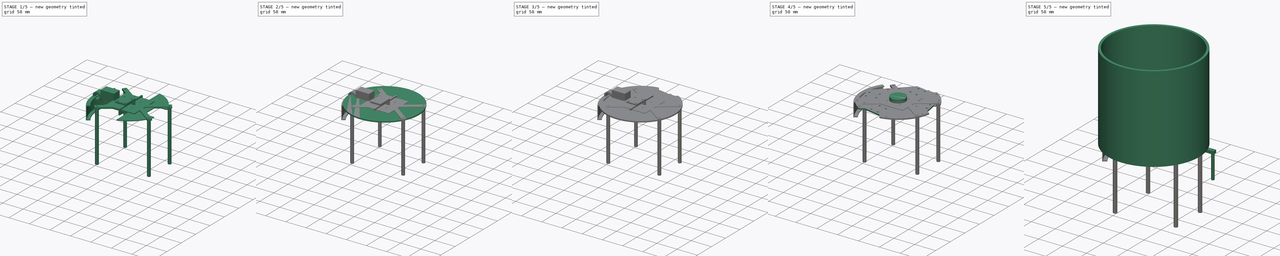
[diagram: build sequence overview — one tinted view per stage of 5, left to right]
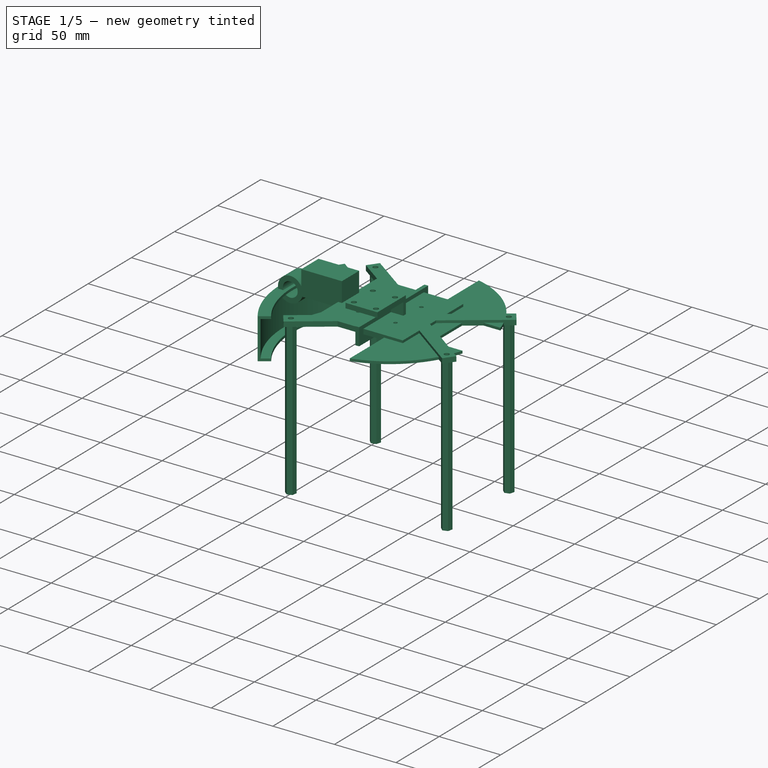
[diagram: stage 1 of 5 — iso view after this stage's code; geometry added in this stage tinted green]
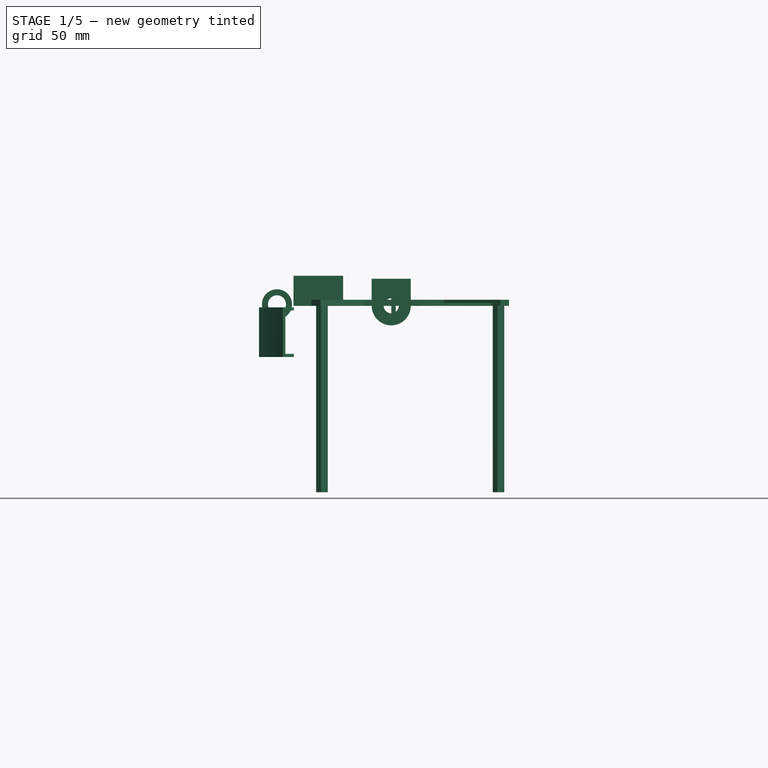
[diagram: stage 1 of 5 — front view after this stage's code; geometry added in this stage tinted green]
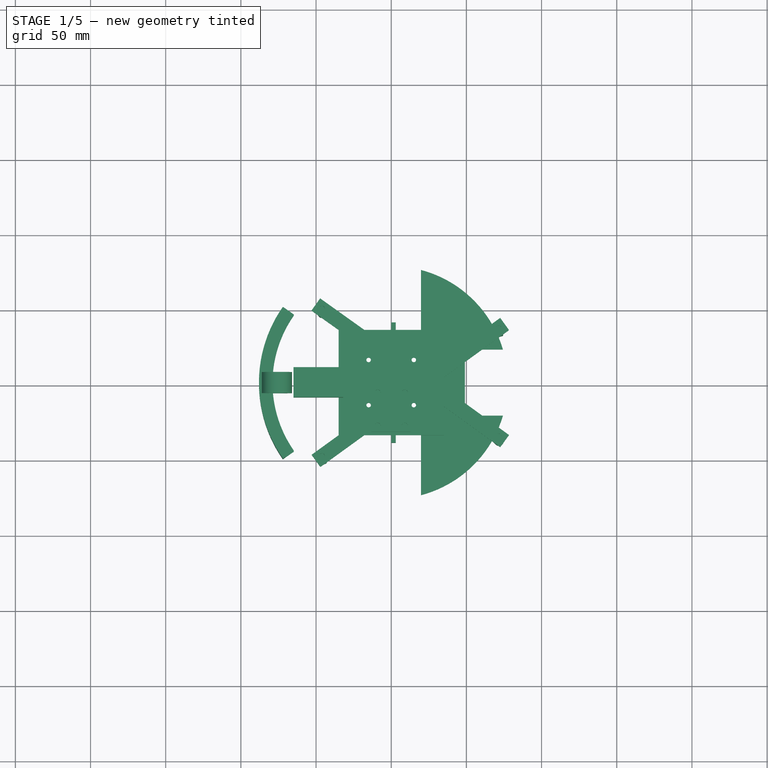
[diagram: stage 1 of 5 — top view after this stage's code; geometry added in this stage tinted green]
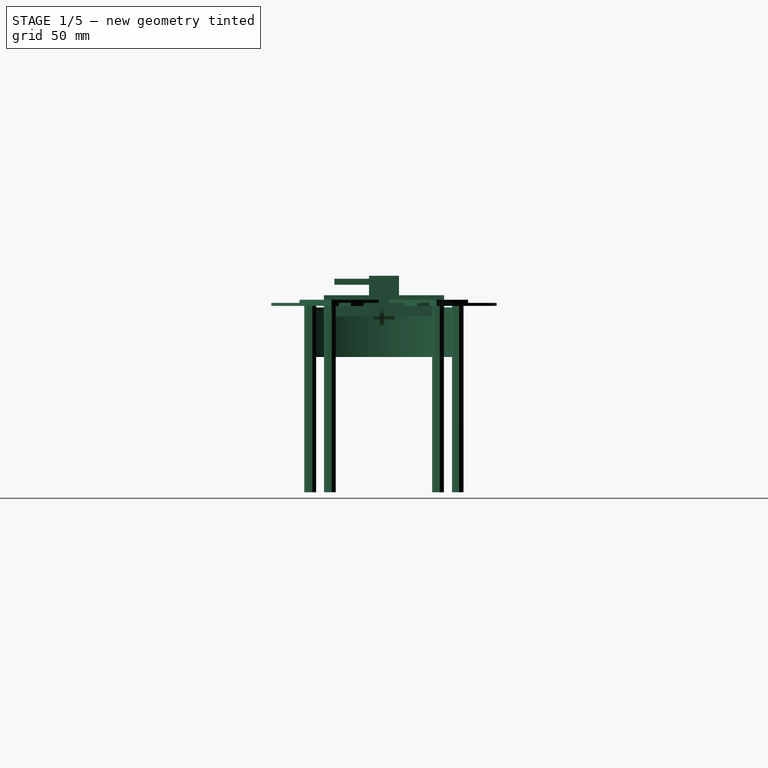
[diagram: stage 1 of 5 — right view after this stage's code; geometry added in this stage tinted green]
FCSTD DOCUMENT  (FreeCAD 1.0R39319 (Git))
Label: SN_model_2025_repare
objects: Part::Feature×311, Sketcher::SketchObject×64, App::Part×50, PartDesign::Pad×42, PartDesign::Pocket×36, PartDesign::Body×26, PartDesign::SubShapeBinder×20, PartDesign::PolarPattern×8, PartDesign::Revolution×3, Part::FeaturePython×2, Part::Cylinder×1, Part::Sphere×1, PartDesign::Fillet×1, Part::Cut×1
note: 752 computed .brp shape members not serialized (recipe doc carries the construction recipe); baked Part::Feature solids carry a one-line shape summary decoded from their .brp
EXTERNAL_REF file=../Programmation/3d-design/SN_model_2025.FCStd obj=Part
EXTERNAL_REF file=../Programmation/3d-design/SN_model_2025.FCStd obj=Part012

FEATURE [Part::Feature] Part__Feature  label="Raspberry Pi HQ Camera v2"
  shape: bbox 38 x 1.4 x 38 mm, 22 faces (baked)
FEATURE [Part::Feature] Part__Feature2033  label="Raspberry Pi HQ Camera v003"
  shape: bbox 24 x 10.2 x 16.01 mm, 96 faces (baked)
FEATURE [Part::Feature] Part__Feature2034  label="Raspberry Pi HQ Camera v004"
  shape: bbox 24 x 1.5 x 5.408 mm, 8 faces (baked)
FEATURE [Part::Feature] Part__Feature2035  label="Raspberry Pi HQ Camera v005"
  shape: bbox 37.4 x 11.72 x 40.15 mm, 140 faces (baked)
FEATURE [Part::Feature] Part__Feature2036  label="Raspberry Pi HQ Camera v006"
  shape: bbox 30.65 x 13.45 x 30.65 mm, 91 faces (baked)
FEATURE [Part::Feature] Part__Feature2037  label="Raspberry Pi HQ Camera v007"
  shape: bbox 6.5 x 1 x 4.5 mm, 6 faces (baked)
FEATURE [Part::Feature] Part__Feature2038  label="Raspberry Pi HQ Camera v008"
  shape: bbox 7.5 x 0.5 x 5.5 mm, 6 faces (baked)
FEATURE [App::Part] Raspberry_Pi_HQ_Camera_v2  label="Raspberry Pi HQ Camera v009"
  Group = -> [Part__Feature,Part__Feature2033,Part__Feature2034,Part__Feature2035,Part__Feature2036,Part__Feature2037,Part__Feature2038]
  Origin = -> Origin406
  Placement = pos=(-19,-19,124.5) rot=(1,0,0;4.71239rad)
FEATURE [Sketcher::SketchObject] Sketch344
  ArcFitTolerance = 1e-06
  AttachmentSupport = -> [XY_Plane]
  FullyConstrained = true
  MakeInternals = false
  MapMode = 5
  sketch-geometry (40):
    g0: LineSegment StartX=-47.2844 StartY=55.9941 StartZ=0 EndX=-53.0811 EndY=47.8707 EndZ=0
    g1: LineSegment StartX=78.3537 StartY=-34.8975 StartZ=0 EndX=72.4894 EndY=-42.9975 EndZ=0
    g2: LineSegment [constr] StartX=-46.1068 StartY=49.0364 StartZ=0 EndX=71.3716 EndY=-36.0154 EndZ=0
    g3: LineSegment [constr] StartX=-46.0969 StartY=-49.074 StartZ=0 EndX=71.3517 EndY=35.9432 EndZ=0
    g4: GeomPoint [constr] X=0 Y=0 Z=0
    g5: LineSegment StartX=72.4793 StartY=43.0129 StartZ=0 EndX=78.356 EndY=34.8943 EndZ=0
    g6: LineSegment StartX=-52.9931 StartY=-48.0742 StartZ=0 EndX=-47.1295 EndY=-56.1747 EndZ=0
    g7: LineSegment StartX=-34.9875 StartY=34.9595 StartZ=0 EndX=-34.9875 EndY=-35.0405 EndZ=0
    g8: GeomPoint [constr] X=0 Y=0 Z=0
    g9: GeomPoint X=-17.9084 Y=-35.0225 Z=0
    g10: GeomPoint X=-17.9205 Y=35.0405 Z=0
    g11: GeomPoint X=34.9875 Y=15.8738 Z=0
    g12: GeomPoint X=34.9875 Y=3.50131 Z=0
    g13: GeomPoint X=34.9875 Y=-3.50131 Z=0
    g14: GeomPoint X=34.9997 Y=-15.8557 Z=0
    g15: LineSegment StartX=-47.2844 StartY=55.9941 StartZ=0 EndX=-17.9205 EndY=35.0405 EndZ=0
    g16: LineSegment StartX=34.9875 StartY=-3.50131 StartZ=0 EndX=78.3537 EndY=-34.8975 EndZ=0
    g17: LineSegment StartX=-17.9205 StartY=35.0405 StartZ=0 EndX=34.9875 EndY=35.0405 EndZ=0
    g18: LineSegment StartX=-17.9084 StartY=-35.0225 StartZ=0 EndX=34.9997 EndY=-35.0225 EndZ=0
    g19: LineSegment StartX=34.9997 StartY=-35.0225 StartZ=0 EndX=34.9997 EndY=-15.8557 EndZ=0
    g20: LineSegment StartX=34.9875 StartY=-3.50131 StartZ=0 EndX=34.9875 EndY=3.50131 EndZ=0
    g21: LineSegment StartX=34.9875 StartY=15.8738 StartZ=0 EndX=34.9875 EndY=35.0405 EndZ=0
    g22: LineSegment StartX=-53.0811 StartY=47.8707 StartZ=0 EndX=-34.9875 EndY=34.9595 EndZ=0
    g23: LineSegment StartX=34.9997 StartY=-15.8557 StartZ=0 EndX=72.4894 EndY=-42.9975 EndZ=0
    g24: LineSegment StartX=34.9875 StartY=15.8738 StartZ=0 EndX=72.4793 EndY=43.0129 EndZ=0
    g25: LineSegment StartX=-52.9931 StartY=-48.0742 StartZ=0 EndX=-34.9875 EndY=-35.0405 EndZ=0
    g26: LineSegment StartX=-47.1295 StartY=-56.1747 StartZ=0 EndX=-17.9084 EndY=-35.0225 EndZ=0
    g27: LineSegment StartX=34.9875 StartY=3.50131 StartZ=0 EndX=78.356 EndY=34.8943 EndZ=0
    g28: Circle CenterX=-46.0969 CenterY=-49.074 CenterZ=0 NormalX=0 NormalY=0 NormalZ=1 AngleXU=0 Radius=2
    g29: Circle CenterX=-46.1068 CenterY=49.0364 CenterZ=0 NormalX=0 NormalY=0 NormalZ=1 AngleXU=0 Radius=2
    g30: Circle CenterX=71.3517 CenterY=35.9432 CenterZ=0 NormalX=0 NormalY=0 NormalZ=1 AngleXU=0 Radius=2
    g31: Circle CenterX=71.3716 CenterY=-36.0154 CenterZ=0 NormalX=0 NormalY=0 NormalZ=1 AngleXU=0 Radius=2
    g32: GeomPoint [constr] X=0 Y=0 Z=0
    g33: LineSegment [constr] StartX=-15.026 StartY=15.026 StartZ=0 EndX=15.026 EndY=-15.026 EndZ=0
    g34: LineSegment [constr] StartX=15.026 StartY=15.026 StartZ=0 EndX=-15.026 EndY=-15.026 EndZ=0
    g35: GeomPoint [constr] X=0 Y=0 Z=0
    g36: Circle CenterX=-15.026 CenterY=15.026 CenterZ=0 NormalX=0 NormalY=0 NormalZ=1 AngleXU=0 Radius=1.5
    g37: Circle CenterX=15.026 CenterY=15.026 CenterZ=0 NormalX=0 NormalY=0 NormalZ=1 AngleXU=0 Radius=1.5
    g38: Circle CenterX=15.026 CenterY=-15.026 CenterZ=0 NormalX=0 NormalY=0 NormalZ=1 AngleXU=0 Radius=1.5
    g39: Circle CenterX=-15.026 CenterY=-15.026 CenterZ=0 NormalX=0 NormalY=0 NormalZ=1 AngleXU=0 Radius=1.5
  constraints (86):
    c: Distance(g0,g1) = 155
    c: Block(g2)
    c: Block(g3)
    c: Distance(g1) = 10
    c: Distance(g2,g1) = 5
    c: Coincident(g4,g-1)
    c: Distance(g6) = 10
    c: Distance(g3,g6) = 5
    c: Vertical(g7)
    c: Symmetric(g17,g7,g8)
    c: DistanceY(g7,g7) = 70
    c: Coincident(g8,g4)
    c: Coincident(g15,g0)
    c: Coincident(g15,g10)
    c: Coincident(g17,g10)
    c: Horizontal(g17)
    c: Coincident(g18,g9)
    c: Horizontal(g18)
    c: Coincident(g19,g18)
    c: Coincident(g19,g14)
    c: Vertical(g19)
    c: Coincident(g20,g13)
    c: Coincident(g20,g12)
    c: Coincident(g21,g11)
    c: Coincident(g21,g17)
    c: Vertical(g21)
    c: Coincident(g22,g0)
    c: Coincident(g22,g7)
    c: Coincident(g23,g14)
    c: Coincident(g23,g1)
    c: Coincident(g24,g11)
    c: Coincident(g24,g5)
    c: Coincident(g25,g6)
    c: Coincident(g25,g7)
    c: Coincident(g26,g6)
    c: Coincident(g26,g9)
    c: Perpendicular(g5,g24)
    c: Perpendicular(g15,g0)
    c: Coincident(g13,g16)
    c: Coincident(g1,g16)
    c: Perpendicular(g1,g16)
    c: Perpendicular(g1,g23)
    c: Perpendicular(g6,g26)
    c: Perpendicular(g25,g6)
    c: Perpendicular(g0,g22)
    c: Coincident(g12,g27)
    c: Coincident(g5,g27)
    c: Equal(g17,g18)
    c: Equal(g19,g21)
    c: Perpendicular(g5,g27)
    c: Equal(g24,g23)
    c: Equal(g27,g16)
    c: Equal(g15,g26)
    c: Equal(g25,g22)
    c: Symmetric(g13,g12,g-1)
    c: Parallel(g16,g2)
    c: Parallel(g27,g3)
    c: Distance(g2,g22) = 5
    c: Distance(g2,g0) = 5
    c: Vertical(g17,g12)
    c: Parallel(g3,g26)
    c: Distance(g2,g23) = 5
    c: Diameter(g28) = 4
    c: Coincident(g28,g3)
    c: Diameter(g29) = 4
    c: Coincident(g29,g2)
    c: Diameter(g30) = 4
    c: Coincident(g30,g3)
    c: Diameter(g31) = 4
    c: Coincident(g31,g2)
    c: Coincident(g32,g4)
    c: Angle(g-1,g33) = 2.35619
    c: Perpendicular(g33,g34)
    c: Equal(g33,g34)
    c: Distance(g34) = 42.5
    c: Symmetric(g33,g33,g4)
    c: Symmetric(g34,g34,g4)
    c: Coincident(g35,g4)
    c: Diameter(g36) = 3
    c: Coincident(g36,g33)
    c: Diameter(g37) = 3
    c: Coincident(g37,g34)
    c: Diameter(g38) = 3
    c: Coincident(g38,g33)
    c: Diameter(g39) = 3
    c: Coincident(g39,g34)
FEATURE [PartDesign::Pad] Pad163
  Direction = (0,0,1)
  Length = 4
  Length2 = 10
  Profile = -> Sketch344
  ReferenceAxis = -> Sketch344 [N_Axis]
  Refine = true
  Suppressed = false
  Type = 0
FEATURE [Sketcher::SketchObject] Sketch345
  ArcFitTolerance = 1e-06
  AttachmentSupport = -> [Pad163]
  ExternalGeometry = -> [Pad163]
  FullyConstrained = false
  MakeInternals = false
  MapMode = 5
  Placement = pos=(0,0,0) rot=(1,0,0;3.14159rad)
  sketch-geometry (28):
    g0: LineSegment StartX=-42.3609 StartY=47.6448 StartZ=0 EndX=-42.9912 EndY=51.5948 EndZ=0
    g1: LineSegment StartX=-42.9912 StartY=51.5948 StartZ=0 EndX=-46.7271 EndY=53.0241 EndZ=0
    g2: LineSegment StartX=-46.7271 StartY=53.0241 StartZ=0 EndX=-49.8329 EndY=50.5032 EndZ=0
    g3: LineSegment StartX=-49.8329 StartY=50.5032 StartZ=0 EndX=-49.2026 EndY=46.5532 EndZ=0
    g4: LineSegment StartX=-49.2026 StartY=46.5532 StartZ=0 EndX=-45.4667 EndY=45.124 EndZ=0
    g5: LineSegment StartX=-45.4667 StartY=45.124 StartZ=0 EndX=-42.3609 EndY=47.6448 EndZ=0
    g6: Circle [constr] CenterX=-46.0969 CenterY=49.074 CenterZ=0 NormalX=0 NormalY=0 NormalZ=1 AngleXU=0 Radius=4
    g7: LineSegment StartX=75.1606 StartY=34.7334 StartZ=0 EndX=74.3763 EndY=38.6558 EndZ=0
    g8: LineSegment StartX=74.3763 StartY=38.6558 StartZ=0 EndX=70.5873 EndY=39.9378 EndZ=0
    g9: LineSegment StartX=70.5873 StartY=39.9378 StartZ=0 EndX=67.5826 EndY=37.2974 EndZ=0
    g10: LineSegment StartX=67.5826 StartY=37.2974 StartZ=0 EndX=68.3668 EndY=33.375 EndZ=0
    g11: LineSegment StartX=68.3668 StartY=33.375 StartZ=0 EndX=72.1558 EndY=32.093 EndZ=0
    g12: LineSegment StartX=72.1558 StartY=32.093 StartZ=0 EndX=75.1606 EndY=34.7334 EndZ=0
    g13: Circle [constr] CenterX=71.3716 CenterY=36.0154 CenterZ=0 NormalX=0 NormalY=0 NormalZ=1 AngleXU=0 Radius=4
    g14: LineSegment StartX=75.176 StartY=-37.1157 StartZ=0 EndX=74.2792 EndY=-33.2175 EndZ=0
    g15: LineSegment StartX=74.2792 StartY=-33.2175 StartZ=0 EndX=70.4549 EndY=-32.045 EndZ=0
    g16: LineSegment StartX=70.4549 StartY=-32.045 StartZ=0 EndX=67.5274 EndY=-34.7707 EndZ=0
    g17: LineSegment StartX=67.5274 StartY=-34.7707 StartZ=0 EndX=68.4242 EndY=-38.6689 EndZ=0
    g18: LineSegment StartX=68.4242 StartY=-38.6689 StartZ=0 EndX=72.2485 EndY=-39.8414 EndZ=0
    g19: LineSegment StartX=72.2485 StartY=-39.8414 StartZ=0 EndX=75.176 EndY=-37.1157 EndZ=0
    g20: Circle [constr] CenterX=71.3517 CenterY=-35.9432 CenterZ=0 NormalX=0 NormalY=0 NormalZ=1 AngleXU=0 Radius=4
    g21: LineSegment StartX=-42.2176 StartY=-49.9713 StartZ=0 EndX=-43.3526 EndY=-46.1357 EndZ=0
    g22: LineSegment StartX=-43.3526 StartY=-46.1357 StartZ=0 EndX=-47.2418 EndY=-45.2008 EndZ=0
    g23: LineSegment StartX=-47.2418 StartY=-45.2008 StartZ=0 EndX=-49.996 EndY=-48.1016 EndZ=0
    g24: LineSegment StartX=-49.996 StartY=-48.1016 StartZ=0 EndX=-48.861 EndY=-51.9372 EndZ=0
    g25: LineSegment StartX=-48.861 StartY=-51.9372 StartZ=0 EndX=-44.9718 EndY=-52.872 EndZ=0
    g26: LineSegment StartX=-44.9718 StartY=-52.872 StartZ=0 EndX=-42.2176 EndY=-49.9713 EndZ=0
    g27: Circle [constr] CenterX=-46.1068 CenterY=-49.0364 CenterZ=0 NormalX=0 NormalY=0 NormalZ=1 AngleXU=0 Radius=4
  constraints (60):
    c: Coincident(g0,g1)
    c: Coincident(g1,g2)
    c: Coincident(g2,g3)
    c: Coincident(g3,g4)
    c: Coincident(g4,g5)
    c: Coincident(g5,g0)
    c: Equal(g0, g1-g5) x5
    c: PointOnObject(g0,g6)
    c: PointOnObject(g1,g6)
    c: PointOnObject(g2,g6)
    c: PointOnObject(g3,g6)
    c: PointOnObject(g4,g6)
    c: PointOnObject(g5,g6)
    c: Coincident(g6,g-3)
    c: Coincident(g7,g8)
    c: Coincident(g8,g9)
    c: Coincident(g9,g10)
    c: Coincident(g10,g11)
    c: Coincident(g11,g12)
    c: Coincident(g12,g7)
    c: Equal(g7, g8-g12) x5
    c: PointOnObject(g7,g13)
    c: PointOnObject(g8,g13)
    c: PointOnObject(g9,g13)
    c: PointOnObject(g10,g13)
    c: PointOnObject(g11,g13)
    c: PointOnObject(g12,g13)
    c: Coincident(g13,g-7)
    c: Coincident(g14,g15)
    c: Coincident(g15,g16)
    c: Coincident(g16,g17)
    c: Coincident(g17,g18)
    c: Coincident(g18,g19)
    c: Coincident(g19,g14)
    c: Equal(g14, g15-g19) x5
    c: PointOnObject(g14,g20)
    c: PointOnObject(g15,g20)
    c: PointOnObject(g16,g20)
    c: PointOnObject(g17,g20)
    c: PointOnObject(g18,g20)
    c: PointOnObject(g19,g20)
    c: Coincident(g20,g-6)
    c: Coincident(g21,g22)
    c: Coincident(g22,g23)
    c: Coincident(g23,g24)
    c: Coincident(g24,g25)
    c: Coincident(g25,g26)
    c: Coincident(g26,g21)
    c: Equal(g21, g22-g26) x5
    c: PointOnObject(g21,g27)
    c: PointOnObject(g22,g27)
    c: PointOnObject(g23,g27)
    c: PointOnObject(g24,g27)
    c: PointOnObject(g25,g27)
    c: PointOnObject(g26,g27)
    c: Coincident(g27,g-5)
    c: Diameter(g6) = 8
    c: Diameter(g13) = 8
    c: Diameter(g20) = 8
    c: Diameter(g27) = 8
FEATURE [PartDesign::Pad] Pad164
  BaseFeature = -> Pad163
  Direction = (0,0,-1)
  Length = 124
  Length2 = 10
  Profile = -> Sketch345
  ReferenceAxis = -> Sketch345 [N_Axis]
  Refine = true
  Suppressed = false
  Type = 0
FEATURE [Sketcher::SketchObject] Sketch084
  ArcFitTolerance = 0
  AttachmentSupport = -> [XZ_Plane241]
  FullyConstrained = true
  MakeInternals = false
  MapMode = 5
  Placement = pos=(0,0,0) rot=(1,0,0;1.5708rad)
  sketch-geometry (5):
    g0: Circle CenterX=0 CenterY=0 CenterZ=0 NormalX=0 NormalY=0 NormalZ=1 AngleXU=0 Radius=5
    g1: LineSegment StartX=-13 StartY=18 StartZ=0 EndX=13 EndY=18 EndZ=0
    g2: LineSegment StartX=-13 StartY=18 StartZ=0 EndX=-13 EndY=-3.6e-15 EndZ=0
    g3: LineSegment StartX=13 StartY=18 StartZ=0 EndX=13 EndY=-3.6e-15 EndZ=0
    g4: ArcOfCircle CenterX=0 CenterY=0 CenterZ=0 NormalX=0 NormalY=0 NormalZ=1 AngleXU=0 Radius=13 StartAngle=3.14159 EndAngle=6.28319
  constraints (13):
    c: Coincident(g0,g-1)
    c: Diameter(g0) = 10
    c: DistanceX(g1,g1) = 26
    c: Symmetric(g1,g1,g-2)
    c: DistanceY(g0,g1) = 18
    c: Coincident(g2,g1)
    c: PointOnObject(g2,g-1)
    c: Vertical(g2)
    c: Coincident(g3,g1)
    c: PointOnObject(g3,g-1)
    c: Coincident(g4,g0)
    c: Coincident(g4,g2)
    c: Coincident(g4,g3)
FEATURE [PartDesign::Pad] Pad062
  Direction = (0,-1,2e-16)
  Length = 3
  Length2 = 10
  Placement = pos=(0,0,0) rot=(1,0,0;1.5708rad)
  Profile = -> Sketch084
  ReferenceAxis = -> Sketch084 [N_Axis]
  Suppressed = false
  Type = 0
FEATURE [Sketcher::SketchObject] Sketch085
  ArcFitTolerance = 0
  AttachmentSupport = -> [Pad062]
  ExternalGeometry = -> [Pad062]
  FullyConstrained = true
  MakeInternals = false
  MapMode = 5
  Placement = pos=(0,-3,0) rot=(1,0,0;1.5708rad)
  sketch-geometry (4):
    g0: LineSegment StartX=-13 StartY=18 StartZ=0 EndX=-13 EndY=14 EndZ=0
    g1: LineSegment StartX=-13 StartY=14 StartZ=0 EndX=13 EndY=14 EndZ=0
    g2: LineSegment StartX=13 StartY=14 StartZ=0 EndX=13 EndY=18 EndZ=0
    g3: LineSegment StartX=13 StartY=18 StartZ=0 EndX=-13 EndY=18 EndZ=0
  constraints (10):
    c: Coincident(g0,g-3)
    c: Vertical(g0)
    c: Coincident(g1,g0)
    c: Horizontal(g1)
    c: Coincident(g2,g1)
    c: Coincident(g2,g-3)
    c: Vertical(g2)
    c: Coincident(g3,g2)
    c: Coincident(g3,g0)
    c: DistanceY(g0,g0) = 4
FEATURE [PartDesign::Pad] Pad063
  BaseFeature = -> Pad062
  Direction = (0,-1,2e-16)
  Length = 30
  Length2 = 10
  Placement = pos=(0,0,0) rot=(1,0,0;1.5708rad)
  Profile = -> Sketch085
  ReferenceAxis = -> Sketch085 [N_Axis]
  Suppressed = false
  Type = 0
FEATURE [Sketcher::SketchObject] Sketch086
  ArcFitTolerance = 0
  AttachmentSupport = -> [Pad063]
  ExternalGeometry = -> [Pad063]
  FullyConstrained = true
  MakeInternals = false
  MapMode = 5
  Placement = pos=(0,7.9e-15,18) rot=(0,0,1;3.14159rad)
  sketch-geometry (4):
    g0: Circle CenterX=-9 CenterY=7 CenterZ=0 NormalX=0 NormalY=0 NormalZ=1 AngleXU=0 Radius=2
    g1: Circle CenterX=9 CenterY=7 CenterZ=0 NormalX=0 NormalY=0 NormalZ=1 AngleXU=0 Radius=2
    g2: Circle CenterX=-9 CenterY=29 CenterZ=0 NormalX=0 NormalY=0 NormalZ=1 AngleXU=0 Radius=2
    g3: Circle CenterX=9 CenterY=29 CenterZ=0 NormalX=0 NormalY=0 NormalZ=1 AngleXU=0 Radius=2
  constraints (10):
    c: Diameter(g2) = 4
    c: Diameter(g3) = 4
    c: Diameter(g1) = 4
    c: Diameter(g0) = 4
    c: Symmetric(g2,g3,g-2)
    c: Symmetric(g0,g1,g-2)
    c: Vertical(g2,g0)
    c: DistanceX(g-4,g2) = 4
    c: DistanceY(g2,g-4) = 4
    c: DistanceY(g-4,g0) = 4
FEATURE [PartDesign::Pocket] Pocket029
  BaseFeature = -> Pad063
  Direction = (0,0,-1)
  Length = 5
  Length2 = 5
  Placement = pos=(0,0,0) rot=(1,0,0;1.5708rad)
  Profile = -> Sketch086
  ReferenceAxis = -> Sketch086 [N_Axis]
  Suppressed = false
  Type = 1
FEATURE [PartDesign::Body] Body041  label="Moteur support 4"
  AllowCompound = false
  Group = -> [Sketch096,Pad068,Sketch097,Pad069,Sketch098,Pocket036,Sketch099,Pocket037,PolarPattern015]
  Origin = -> Origin244
  Placement = pos=(-43.5918,-62.2556,-8) rot=(0,0,1;2.53073rad)
  Tip = -> PolarPattern015
FEATURE [Sketcher::SketchObject] Sketch109
  ArcFitTolerance = 0
  AttachmentSupport = -> [YZ_Plane251]
  FullyConstrained = true
  MakeInternals = false
  MapMode = 5
  Placement = pos=(0,0,0) rot=(0.57735,0.57735,0.57735;2.0944rad)
  sketch-geometry (4):
    g0: LineSegment StartX=-40 StartY=7 StartZ=0 EndX=40 EndY=7 EndZ=0
    g1: LineSegment StartX=40 StartY=7 StartZ=0 EndX=40 EndY=-7 EndZ=0
    g2: LineSegment StartX=40 StartY=-7 StartZ=0 EndX=-40 EndY=-7 EndZ=0
    g3: LineSegment StartX=-40 StartY=-7 StartZ=0 EndX=-40 EndY=7 EndZ=0
  constraints (10):
    c: Coincident(g0,g1)
    c: Coincident(g1,g2)
    c: Coincident(g2,g3)
    c: Coincident(g3,g0)
    c: Horizontal(g2)
    c: Vertical(g1)
    c: Symmetric(g2,g0,g-1)
    c: Symmetric(g0,g0,g-2)
    c: DistanceX(g0,g0) = 80
    c: DistanceY(g1,g1) = 14
FEATURE [PartDesign::Pad] Pad076
  Direction = (1,0,0)
  Length = 3
  Length2 = 10
  Placement = pos=(0,0,0) rot=(1,1,1;2.0944rad)
  Profile = -> Sketch109
  ReferenceAxis = -> Sketch109 [N_Axis]
  Suppressed = false
  Type = 0
FEATURE [PartDesign::Body] Body053  label="Batterie"
  AllowCompound = false
  Group = -> [Sketch131,Sketch133,Pad089,Fillet]
  Origin = -> Origin259
  Placement = pos=(64,-2.9e-14,-36.5) rot=(0.57735,-0.57735,0.57735;4.18879rad)
  Tip = -> Fillet
FEATURE [App::Part] Part004  label="Powerpack"
  Group = -> [Body053]
  Origin = -> Origin037
  Placement = pos=(0,0,3) rot=(0,0,1;0rad)
FEATURE [Sketcher::SketchObject] Sketch253
  ArcFitTolerance = 0
  AttachmentSupport = -> [Pad076]
  FullyConstrained = true
  MakeInternals = false
  MapMode = 5
  Placement = pos=(0,0,0) rot=(0.57735,0.57735,-0.57735;4.18879rad)
  sketch-geometry (1):
    g0: Circle CenterX=0 CenterY=0 CenterZ=0 NormalX=0 NormalY=0 NormalZ=1 AngleXU=0 Radius=1
  constraints (2):
    c: Coincident(g0,g-1)
    c: Diameter(g0) = 2
FEATURE [PartDesign::Pocket] Pocket123
  BaseFeature = -> Pad076
  Direction = (1,0,0)
  Length = 5
  Length2 = 5
  Placement = pos=(0,0,0) rot=(1,1,1;2.0944rad)
  Profile = -> Sketch253
  ReferenceAxis = -> Sketch253 [N_Axis]
  Suppressed = false
  Type = 1
FEATURE [PartDesign::Body] Body035  label="Dribbler roll"
  AllowCompound = false
  Group = -> [Sketch083,Pad059,Sketch277,Pad114,Sketch284,Pad119]
  Origin = -> Origin238
  Placement = pos=(-76,30,1) rot=(1,0,0;3.14159rad)
  Tip = -> Pad119
FEATURE [Sketcher::SketchObject] Sketch285
  ArcFitTolerance = 0
  AttachmentSupport = -> [XY_Plane368]
  FullyConstrained = true
  MakeInternals = false
  MapMode = 5
  sketch-geometry (4):
    g0: LineSegment StartX=-65 StartY=10 StartZ=0 EndX=-32 EndY=10 EndZ=0
    g1: LineSegment StartX=-32 StartY=10 StartZ=0 EndX=-32 EndY=-10 EndZ=0
    g2: LineSegment StartX=-32 StartY=-10 StartZ=0 EndX=-65 EndY=-10 EndZ=0
    g3: LineSegment StartX=-65 StartY=-10 StartZ=0 EndX=-65 EndY=10 EndZ=0
  constraints (11):
    c: Coincident(g0,g1)
    c: Coincident(g1,g2)
    c: Coincident(g2,g3)
    c: Coincident(g3,g0)
    c: Horizontal(g0)
    c: Horizontal(g2)
    c: Vertical(g1)
    c: Symmetric(g2,g0,g-1)
    c: DistanceX(g0,g0) = 33
    c: DistanceY(g3,g3) = 20
    c: DistanceX(g0,g-1) = 32
FEATURE [PartDesign::Pad] Pad120
  Direction = (0,0,1)
  Length = 20
  Length2 = 10
  Profile = -> Sketch285
  ReferenceAxis = -> Sketch285 [N_Axis]
  Suppressed = false
  Type = 0
FEATURE [PartDesign::Body] Body102  label="Kicker body"
  AllowCompound = false
  Group = -> [Sketch285,Pad120]
  Origin = -> Origin368
  Placement = pos=(-2,0,-18) rot=(0,0,1;0rad)
  Tip = -> Pad120
FEATURE [App::Part] Part013  label="Kicker"
  Group = -> [Body046,Body102]
  Origin = -> Origin249
  Placement = pos=(4,-2.9e-15,-23) rot=(1,0,0;3.14159rad)
FEATURE [Sketcher::SketchObject] Sketch341
  ArcFitTolerance = 0
  AttachmentSupport = -> [XY_Plane405]
  FullyConstrained = true
  MakeInternals = false
  MapMode = 5
  sketch-geometry (11):
    g0: LineSegment StartX=13.4834 StartY=6.80799 StartZ=0 EndX=29.8226 EndY=-18.3521 EndZ=0
    g1: LineSegment StartX=-10 StartY=-17.5 StartZ=0 EndX=-10 EndY=-12.5 EndZ=0
    g2: LineSegment StartX=-10 StartY=-12.5 StartZ=0 EndX=-18 EndY=-12.5 EndZ=0
    g3: LineSegment StartX=-16 StartY=-10.5 StartZ=0 EndX=-13.1686 EndY=-10.5 EndZ=0
    g4: LineSegment StartX=10.3693 StartY=-4.92144 StartZ=0 EndX=22.2745 EndY=-23.2539 EndZ=0
    g5: LineSegment StartX=22.2745 StartY=-23.2539 StartZ=0 EndX=29.8226 EndY=-18.3521 EndZ=0
    g6: LineSegment StartX=3 StartY=0 StartZ=0 EndX=13.4834 EndY=6.80799 EndZ=0
    g7: LineSegment StartX=-10 StartY=-17.5 StartZ=0 EndX=-9 EndY=-17.5 EndZ=0
    g8: LineSegment StartX=-9 StartY=-17.5 StartZ=0 EndX=10.3693 EndY=-4.92144 EndZ=0
    g9: LineSegment StartX=-18 StartY=-12.5 StartZ=0 EndX=-16 EndY=-10.5 EndZ=0
    g10: LineSegment StartX=-13.1686 StartY=-10.5 StartZ=0 EndX=3 EndY=0 EndZ=0
  constraints (33):
    c: Vertical(g1)
    c: DistanceY(g1,g1) = 5
    c: Coincident(g2,g1)
    c: Horizontal(g2)
    c: DistanceX(g2,g2) = 8
    c: Coincident(g5,g4)
    c: Coincident(g5,g0)
    c: Perpendicular(g0,g5)
    c: Perpendicular(g4,g5)
    c: Distance(g0) = 30
    c: PointOnObject(g6,g-1)
    c: Coincident(g6,g0)
    c: Parallel(g6,g5)
    c: Distance(g5) = 9
    c: Coincident(g7,g1)
    c: Horizontal(g7)
    c: Coincident(g8,g7)
    c: Coincident(g4,g8)
    c: Parallel(g6,g8)
    c: DistanceX(g7,g7) = 1
    c: Distance(g6) = 12.5
    c: Coincident(g9,g2)
    c: Coincident(g9,g3)
    c: Angle(g9,g3) = 2.35619
    c: Horizontal(g3)
    c: Coincident(g10,g6)
    c: Parallel(g10,g6)
    c: DistanceX(g-1,g6) = 3
    c: Angle(g8,g7) = 2.56563
    c: DistanceY(g3,g-1) = 10.5
    c: Coincident(g3,g10)
    c: DistanceX(g1,g-1) = 10
    c: DistanceY(g2,g-1) = 12.5
FEATURE [PartDesign::Pad] Pad160
  Direction = (0,0,1)
  Length = 2.5
  Length2 = 10
  Profile = -> Sketch341
  ReferenceAxis = -> Sketch341 [N_Axis]
  Suppressed = false
  Type = 0
FEATURE [PartDesign::Pocket] Pocket153
  BaseFeature = -> Pad160
  Direction = (1e-16,-2e-16,-1)
  Length = 5
  Length2 = 5
  Profile = -> Binder058
  Reversed = true
  Suppressed = false
  Type = 1
FEATURE [PartDesign::Body] Body099  label="Roll right support001"
  AllowCompound = false
  Group = -> [Sketch278,Pad115,Sketch343,Pad162,Binder059,Pocket154]
  Origin = -> Origin365
  Placement = pos=(-62,-48,3.5) rot=(1,0,0;3.14159rad)
  Tip = -> Pocket154
FEATURE [Part::FeaturePython] Tube001  # WARN: FeaturePython — macro-defined, semantics opaque (R4)
  AttacherType = Attacher::AttachEngine3D
  Height = 14
  InnerRadius = 6
  OuterRadius = 10
  Placement = pos=(-76,7,1) rot=(1,0,0;1.5708rad)
FEATURE [App::Part] Part011  label="Dribbler"
  Group = -> [Body034,Body050,Body099,Body121,Body035,Cut,Tube001]
  Origin = -> Origin236
  Placement = pos=(4,0,1) rot=(0,0,1;0rad)
FEATURE [PartDesign::SubShapeBinder] Binder035
  BindCopyOnChange = 0
  BindMode = 0
  ClaimChildren = false
  Context = -> <external ../Programmation/3d-design/SN_model_2025.FCStd>#Part [Body024.Binder035.]
  Fuse = false
  MakeFace = true
  OffsetFill = false
  OffsetIntersection = false
  OffsetJoinType = 0
  OffsetOpenResult = false
  PartialLoad = false
  Relative = true
  _Version = 2
FEATURE [Sketcher::SketchObject] Sketch130
  ArcFitTolerance = 0
  AttachmentSupport = -> [XY_Plane049]
  FullyConstrained = false
  MakeInternals = false
  MapMode = 5
  sketch-geometry (6):
    g0: ArcOfCircle CenterX=0 CenterY=0 CenterZ=0 NormalX=0 NormalY=0 NormalZ=1 AngleXU=0 Radius=77.5 StartAngle=4.97117 EndAngle=7.5952
    g1: LineSegment StartX=19.8431 StartY=-22.5 StartZ=0 EndX=19.8431 EndY=22.5 EndZ=0
    g2: ArcOfCircle CenterX=0 CenterY=0 CenterZ=0 NormalX=0 NormalY=0 NormalZ=1 AngleXU=0 Radius=30 StartAngle=5.43464 EndAngle=5.43512
    g3: ArcOfCircle CenterX=0 CenterY=0 CenterZ=0 NormalX=0 NormalY=0 NormalZ=1 AngleXU=0 Radius=30 StartAngle=0.848062 EndAngle=0.848549
    g4: LineSegment StartX=19.8322 StartY=-74.9195 StartZ=0 EndX=19.8322 EndY=-22.5097 EndZ=0
    g5: LineSegment StartX=19.8322 StartY=22.5097 StartZ=0 EndX=19.8322 EndY=74.9195 EndZ=0
  constraints (16):
    c: Coincident(g0,g-1)
    c: Symmetric(g1,g1,g-1)
    c: Diameter(g0) = 155
    c: DistanceY(g1,g1) = 45
    c: Coincident(g2,g0)
    c: Coincident(g2,g1)
    c: Coincident(g3,g0)
    c: Coincident(g3,g1)
    c: Diameter(g3) = 60
    c: Coincident(g4,g0)
    c: Coincident(g4,g2)
    c: Coincident(g5,g3)
    c: Coincident(g5,g0)
    c: Vertical(g0,g0)
    c: Vertical(g2,g3)
    c: Vertical(g4)
FEATURE [PartDesign::Pad] Pad088
  Direction = (0,0,1)
  Length = 2
  Length2 = 10
  Profile = -> Sketch130
  ReferenceAxis = -> Sketch130 [N_Axis]
  Suppressed = false
  Type = 0
FEATURE [PartDesign::Pocket] Pocket104
  BaseFeature = -> Pad088
  Direction = (-2e-16,-8e-16,-1)
  Length = 5
  Length2 = 5
  Profile = -> Binder035
  Reversed = true
  Suppressed = false
  Type = 1
FEATURE [PartDesign::Body] Body024  label="PCB board"
  AllowCompound = false
  Group = -> [Sketch130,Pad088,Binder035,Pocket104]
  Origin = -> Origin049
  Placement = pos=(0,0,16) rot=(0,0,1;0rad)
  Tip = -> Pocket104
FEATURE [Part::Feature] Part__Feature439  label="114-00841-68--3DModel-STEP-56544 v1"
  Placement = pos=(24.0935,-0.00012972,0.814608) rot=(0.57735,0.57735,0.57735;2.0944rad)
  shape: bbox 11.35 x 11.95 x 1.68 mm, 239 faces (baked)
FEATURE [Part::Feature] Part__Feature442  label="114-00841-68--3DModel-STEP-56544 v004"
  Placement = pos=(24.0935,-0.00012972,0.814608) rot=(0.57735,0.57735,0.57735;2.0944rad)
  shape: bbox 10 x 11.95 x 1.48 mm, 267 faces (baked)
FEATURE [Part::Feature] Part__Feature453  label="MIMXRT1052CVJ5B v1"
  Placement = pos=(1.30183,-0.0809243,0.815) rot=(0,0.707107,0.707107;3.14159rad)
  shape: bbox 12 x 12 x 1.27 mm, 6 faces (baked)
FEATURE [App::Part] MIMXRT1052CVJ5B_v1  label="MIMXRT1052CVJ5B v198"
  Group = -> [Part__Feature453]
  Origin = -> Origin053
FEATURE [Part::Feature] Part__Feature589  label="MicroUSB Molex 473460001 v1"
  Placement = pos=(-28.9499,0.13174,2.07033) rot=(0.57735,-0.57735,-0.57735;2.0944rad)
  shape: bbox 5.43 x 7.98 x 2.94 mm, 406 faces (baked)
FEATURE [Part::Feature] Part__Feature590  label="COMPOUND"
  shape: bbox 2.54 x 2.54 x 2.799 mm, 22 faces, 0 solids (baked)
FEATURE [Part::Feature] Part__Feature591  label="COMPOUND001"
  shape: bbox 2.54 x 2.54 x 2.799 mm, 22 faces, 0 solids (baked)
FEATURE [Part::Feature] Part__Feature592  label="COMPOUND002"
  shape: bbox 2.54 x 2.54 x 2.799 mm, 23 faces, 0 solids (baked)
FEATURE [Part::Feature] Part__Feature593  label="COMPOUND003"
  shape: bbox 2.54 x 2.54 x 2.799 mm, 22 faces, 0 solids (baked)
FEATURE [Part::Feature] Part__Feature594  label="COMPOUND004"
  shape: bbox 2.54 x 2.54 x 2.799 mm, 22 faces, 0 solids (baked)
FEATURE [Part::Feature] Part__Feature595  label="COMPOUND005"
  shape: bbox 2.54 x 2.54 x 2.799 mm, 23 faces, 0 solids (baked)
FEATURE [App::Part] COMPOUND  label="COMPOUND006"
  Group = -> [Part__Feature590,Part__Feature591,Part__Feature592,Part__Feature593,Part__Feature594,Part__Feature595]
  Origin = -> Origin055
FEATURE [Part::Feature] Part__Feature596  label="COMPOUND007"
  shape: bbox 0.6304 x 0.63 x 12.7 mm, 14 faces (baked)
FEATURE [Part::Feature] Part__Feature597  label="COMPOUND008"
  shape: bbox 0.6304 x 0.63 x 12.7 mm, 14 faces (baked)
FEATURE [Part::Feature] Part__Feature598  label="COMPOUND009"
  shape: bbox 0.6304 x 0.63 x 12.7 mm, 14 faces (baked)
FEATURE [Part::Feature] Part__Feature599  label="COMPOUND010"
  shape: bbox 0.6304 x 0.63 x 12.7 mm, 14 faces (baked)
FEATURE [Part::Feature] Part__Feature600  label="COMPOUND011"
  shape: bbox 0.6304 x 0.63 x 12.7 mm, 14 faces (baked)
FEATURE [Part::Feature] Part__Feature601  label="COMPOUND012"
  shape: bbox 0.6304 x 0.63 x 12.7 mm, 14 faces (baked)
FEATURE [App::Part] COMPOUND001  label="COMPOUND013"
  Group = -> [Part__Feature596,Part__Feature597,Part__Feature598,Part__Feature599,Part__Feature600,Part__Feature601]
  Origin = -> Origin056
FEATURE [Part::Feature] Part__Feature602  label="COMPOUND014"
  shape: bbox 2.54 x 2.54 x 2.799 mm, 22 faces, 0 solids (baked)
FEATURE [Part::Feature] Part__Feature603  label="COMPOUND015"
  shape: bbox 2.54 x 2.54 x 2.799 mm, 22 faces, 0 solids (baked)
FEATURE [Part::Feature] Part__Feature604  label="COMPOUND016"
  shape: bbox 2.54 x 2.54 x 2.799 mm, 23 faces, 0 solids (baked)
FEATURE [Part::Feature] Part__Feature605  label="COMPOUND017"
  shape: bbox 2.54 x 2.54 x 2.799 mm, 22 faces, 0 solids (baked)
FEATURE [Part::Feature] Part__Feature606  label="COMPOUND018"
  shape: bbox 2.54 x 2.54 x 2.799 mm, 22 faces, 0 solids (baked)
FEATURE [Part::Feature] Part__Feature607  label="COMPOUND019"
  shape: bbox 2.54 x 2.54 x 2.799 mm, 23 faces, 0 solids (baked)
FEATURE [App::Part] COMPOUND002  label="COMPOUND020"
  Group = -> [Part__Feature602,Part__Feature603,Part__Feature604,Part__Feature605,Part__Feature606,Part__Feature607]
  Origin = -> Origin058
FEATURE [Part::Feature] Part__Feature608  label="COMPOUND021"
  shape: bbox 0.6304 x 0.63 x 12.7 mm, 14 faces (baked)
FEATURE [Part::Feature] Part__Feature609  label="COMPOUND022"
  shape: bbox 0.6304 x 0.63 x 12.7 mm, 14 faces (baked)
FEATURE [Part::Feature] Part__Feature610  label="COMPOUND023"
  shape: bbox 0.6304 x 0.63 x 12.7 mm, 14 faces (baked)
FEATURE [Part::Feature] Part__Feature611  label="COMPOUND024"
  shape: bbox 0.6304 x 0.63 x 12.7 mm, 14 faces (baked)
FEATURE [Part::Feature] Part__Feature612  label="COMPOUND025"
  shape: bbox 0.6304 x 0.63 x 12.7 mm, 14 faces (baked)
FEATURE [Part::Feature] Part__Feature613  label="COMPOUND026"
  shape: bbox 0.6304 x 0.63 x 12.7 mm, 14 faces (baked)
FEATURE [App::Part] COMPOUND003  label="COMPOUND027"
  Group = -> [Part__Feature608,Part__Feature609,Part__Feature610,Part__Feature611,Part__Feature612,Part__Feature613]
  Origin = -> Origin059
FEATURE [Part::Feature] Part__Feature614  label="COMPOUND028"
  shape: bbox 2.54 x 2.54 x 2.799 mm, 22 faces, 0 solids (baked)
FEATURE [Part::Feature] Part__Feature615  label="COMPOUND029"
  shape: bbox 2.54 x 2.54 x 2.799 mm, 22 faces, 0 solids (baked)
FEATURE [Part::Feature] Part__Feature616  label="COMPOUND030"
  shape: bbox 2.54 x 2.54 x 2.799 mm, 23 faces, 0 solids (baked)
FEATURE [Part::Feature] Part__Feature617  label="COMPOUND031"
  shape: bbox 2.54 x 2.54 x 2.799 mm, 22 faces, 0 solids (baked)
FEATURE [Part::Feature] Part__Feature618  label="COMPOUND032"
  shape: bbox 2.54 x 2.54 x 2.799 mm, 22 faces, 0 solids (baked)
FEATURE [Part::Feature] Part__Feature619  label="COMPOUND033"
  shape: bbox 2.54 x 2.54 x 2.799 mm, 23 faces, 0 solids (baked)
FEATURE [App::Part] COMPOUND004  label="COMPOUND034"
  Group = -> [Part__Feature614,Part__Feature615,Part__Feature616,Part__Feature617,Part__Feature618,Part__Feature619]
  Origin = -> Origin060
FEATURE [Part::Feature] Part__Feature620  label="COMPOUND035"
  shape: bbox 0.6304 x 0.63 x 12.7 mm, 14 faces (baked)
FEATURE [Part::Feature] Part__Feature621  label="COMPOUND036"
  shape: bbox 0.6304 x 0.63 x 12.7 mm, 14 faces (baked)
FEATURE [Part::Feature] Part__Feature622  label="COMPOUND037"
  shape: bbox 0.6304 x 0.63 x 12.7 mm, 14 faces (baked)
FEATURE [Part::Feature] Part__Feature623  label="COMPOUND038"
  shape: bbox 0.6304 x 0.63 x 12.7 mm, 14 faces (baked)
FEATURE [Part::Feature] Part__Feature624  label="COMPOUND039"
  shape: bbox 0.6304 x 0.63 x 12.7 mm, 14 faces (baked)
FEATURE [Part::Feature] Part__Feature625  label="COMPOUND040"
  shape: bbox 0.6304 x 0.63 x 12.7 mm, 14 faces (baked)
FEATURE [App::Part] COMPOUND005  label="COMPOUND041"
  Group = -> [Part__Feature620,Part__Feature621,Part__Feature622,Part__Feature623,Part__Feature624,Part__Feature625]
  Origin = -> Origin010
FEATURE [Part::Feature] Part__Feature626  label="COMPOUND042"
  shape: bbox 2.54 x 2.54 x 2.799 mm, 22 faces, 0 solids (baked)
FEATURE [Part::Feature] Part__Feature627  label="COMPOUND043"
  shape: bbox 2.54 x 2.54 x 2.799 mm, 22 faces, 0 solids (baked)
FEATURE [Part::Feature] Part__Feature628  label="COMPOUND044"
  shape: bbox 2.54 x 2.54 x 2.799 mm, 23 faces, 0 solids (baked)
FEATURE [Part::Feature] Part__Feature629  label="COMPOUND045"
  shape: bbox 2.54 x 2.54 x 2.799 mm, 22 faces, 0 solids (baked)
FEATURE [Part::Feature] Part__Feature630  label="COMPOUND046"
  shape: bbox 2.54 x 2.54 x 2.799 mm, 22 faces, 0 solids (baked)
FEATURE [Part::Feature] Part__Feature631  label="COMPOUND047"
  shape: bbox 2.54 x 2.54 x 2.799 mm, 23 faces, 0 solids (baked)
FEATURE [App::Part] COMPOUND006  label="COMPOUND048"
  Group = -> [Part__Feature626,Part__Feature627,Part__Feature628,Part__Feature629,Part__Feature630,Part__Feature631]
  Origin = -> Origin012
FEATURE [Part::Feature] Part__Feature632  label="COMPOUND049"
  shape: bbox 0.6304 x 0.63 x 12.7 mm, 14 faces (baked)
FEATURE [Part::Feature] Part__Feature633  label="COMPOUND050"
  shape: bbox 0.6304 x 0.63 x 12.7 mm, 14 faces (baked)
FEATURE [Part::Feature] Part__Feature634  label="COMPOUND051"
  shape: bbox 0.6304 x 0.63 x 12.7 mm, 14 faces (baked)
FEATURE [Part::Feature] Part__Feature635  label="COMPOUND052"
  shape: bbox 0.6304 x 0.63 x 12.7 mm, 14 faces (baked)
FEATURE [Part::Feature] Part__Feature636  label="COMPOUND053"
  shape: bbox 0.6304 x 0.63 x 12.7 mm, 14 faces (baked)
FEATURE [Part::Feature] Part__Feature637  label="COMPOUND054"
  shape: bbox 0.6304 x 0.63 x 12.7 mm, 14 faces (baked)
FEATURE [App::Part] COMPOUND007  label="COMPOUND055"
  Group = -> [Part__Feature632,Part__Feature633,Part__Feature634,Part__Feature635,Part__Feature636,Part__Feature637]
  Origin = -> Origin013
FEATURE [Part::Feature] Part__Feature638  label="COMPOUND056"
  shape: bbox 2.54 x 2.54 x 2.799 mm, 22 faces, 0 solids (baked)
FEATURE [Part::Feature] Part__Feature639  label="COMPOUND057"
  shape: bbox 2.54 x 2.54 x 2.799 mm, 22 faces, 0 solids (baked)
FEATURE [Part::Feature] Part__Feature640  label="COMPOUND058"
  shape: bbox 2.54 x 2.54 x 2.799 mm, 23 faces, 0 solids (baked)
FEATURE [Part::Feature] Part__Feature641  label="COMPOUND059"
  shape: bbox 2.54 x 2.54 x 2.799 mm, 22 faces, 0 solids (baked)
FEATURE [Part::Feature] Part__Feature642  label="COMPOUND060"
  shape: bbox 2.54 x 2.54 x 2.799 mm, 22 faces, 0 solids (baked)
FEATURE [Part::Feature] Part__Feature643  label="COMPOUND061"
  shape: bbox 2.54 x 2.54 x 2.799 mm, 23 faces, 0 solids (baked)
FEATURE [App::Part] COMPOUND008  label="COMPOUND062"
  Group = -> [Part__Feature638,Part__Feature639,Part__Feature640,Part__Feature641,Part__Feature642,Part__Feature643]
  Origin = -> Origin061
FEATURE [Part::Feature] Part__Feature644  label="COMPOUND063"
  shape: bbox 0.6304 x 0.63 x 12.7 mm, 14 faces (baked)
FEATURE [Part::Feature] Part__Feature645  label="COMPOUND064"
  shape: bbox 0.6304 x 0.63 x 12.7 mm, 14 faces (baked)
FEATURE [Part::Feature] Part__Feature646  label="COMPOUND065"
  shape: bbox 0.6304 x 0.63 x 12.7 mm, 14 faces (baked)
FEATURE [Part::Feature] Part__Feature647  label="COMPOUND066"
  shape: bbox 0.6304 x 0.63 x 12.7 mm, 14 faces (baked)
FEATURE [Part::Feature] Part__Feature648  label="COMPOUND067"
  shape: bbox 0.6304 x 0.63 x 12.7 mm, 14 faces (baked)
FEATURE [Part::Feature] Part__Feature649  label="COMPOUND068"
  shape: bbox 0.6304 x 0.63 x 12.7 mm, 14 faces (baked)
FEATURE [App::Part] COMPOUND009  label="COMPOUND069"
  Group = -> [Part__Feature644,Part__Feature645,Part__Feature646,Part__Feature647,Part__Feature648,Part__Feature649]
  Origin = -> Origin062
FEATURE [Part::Feature] Part__Feature650  label="COMPOUND070"
  shape: bbox 2.54 x 2.54 x 2.799 mm, 22 faces, 0 solids (baked)
FEATURE [Part::Feature] Part__Feature651  label="COMPOUND071"
  shape: bbox 2.54 x 2.54 x 2.799 mm, 22 faces, 0 solids (baked)
FEATURE [Part::Feature] Part__Feature652  label="COMPOUND072"
  shape: bbox 2.54 x 2.54 x 2.799 mm, 23 faces, 0 solids (baked)
FEATURE [Part::Feature] Part__Feature653  label="COMPOUND073"
  shape: bbox 2.54 x 2.54 x 2.799 mm, 22 faces, 0 solids (baked)
FEATURE [Part::Feature] Part__Feature654  label="COMPOUND074"
  shape: bbox 2.54 x 2.54 x 2.799 mm, 22 faces, 0 solids (baked)
FEATURE [Part::Feature] Part__Feature655  label="COMPOUND075"
  shape: bbox 2.54 x 2.54 x 2.799 mm, 23 faces, 0 solids (baked)
FEATURE [App::Part] COMPOUND010  label="COMPOUND076"
  Group = -> [Part__Feature650,Part__Feature651,Part__Feature652,Part__Feature653,Part__Feature654,Part__Feature655]
  Origin = -> Origin064
FEATURE [Part::Feature] Part__Feature656  label="COMPOUND077"
  shape: bbox 0.6304 x 0.63 x 12.7 mm, 14 faces (baked)
FEATURE [Part::Feature] Part__Feature657  label="COMPOUND078"
  shape: bbox 0.6304 x 0.63 x 12.7 mm, 14 faces (baked)
FEATURE [Part::Feature] Part__Feature658  label="COMPOUND079"
  shape: bbox 0.6304 x 0.63 x 12.7 mm, 14 faces (baked)
FEATURE [Part::Feature] Part__Feature659  label="COMPOUND080"
  shape: bbox 0.6304 x 0.63 x 12.7 mm, 14 faces (baked)
FEATURE [Part::Feature] Part__Feature660  label="COMPOUND081"
  shape: bbox 0.6304 x 0.63 x 12.7 mm, 14 faces (baked)
FEATURE [Part::Feature] Part__Feature661  label="COMPOUND082"
  shape: bbox 0.6304 x 0.63 x 12.7 mm, 14 faces (baked)
FEATURE [App::Part] COMPOUND011  label="COMPOUND083"
  Group = -> [Part__Feature656,Part__Feature657,Part__Feature658,Part__Feature659,Part__Feature660,Part__Feature661]
  Origin = -> Origin065
FEATURE [Part::Feature] Part__Feature662  label="COMPOUND084"
  shape: bbox 2.54 x 2.54 x 2.799 mm, 22 faces, 0 solids (baked)
FEATURE [Part::Feature] Part__Feature663  label="COMPOUND085"
  shape: bbox 2.54 x 2.54 x 2.799 mm, 22 faces, 0 solids (baked)
FEATURE [Part::Feature] Part__Feature664  label="COMPOUND086"
  shape: bbox 2.54 x 2.54 x 2.799 mm, 23 faces, 0 solids (baked)
FEATURE [Part::Feature] Part__Feature665  label="COMPOUND087"
  shape: bbox 2.54 x 2.54 x 2.799 mm, 22 faces, 0 solids (baked)
FEATURE [Part::Feature] Part__Feature666  label="COMPOUND088"
  shape: bbox 2.54 x 2.54 x 2.799 mm, 22 faces, 0 solids (baked)
FEATURE [Part::Feature] Part__Feature667  label="COMPOUND089"
  shape: bbox 2.54 x 2.54 x 2.799 mm, 23 faces, 0 solids (baked)
FEATURE [App::Part] COMPOUND012  label="COMPOUND090"
  Group = -> [Part__Feature662,Part__Feature663,Part__Feature664,Part__Feature665,Part__Feature666,Part__Feature667]
  Origin = -> Origin067
FEATURE [Part::Feature] Part__Feature668  label="COMPOUND091"
  shape: bbox 0.6304 x 0.63 x 12.7 mm, 14 faces (baked)
FEATURE [Part::Feature] Part__Feature669  label="COMPOUND092"
  shape: bbox 0.6304 x 0.63 x 12.7 mm, 14 faces (baked)
FEATURE [Part::Feature] Part__Feature670  label="COMPOUND093"
  shape: bbox 0.6304 x 0.63 x 12.7 mm, 14 faces (baked)
FEATURE [Part::Feature] Part__Feature671  label="COMPOUND094"
  shape: bbox 0.6304 x 0.63 x 12.7 mm, 14 faces (baked)
FEATURE [Part::Feature] Part__Feature672  label="COMPOUND095"
  shape: bbox 0.6304 x 0.63 x 12.7 mm, 14 faces (baked)
FEATURE [Part::Feature] Part__Feature673  label="COMPOUND096"
  shape: bbox 0.6304 x 0.63 x 12.7 mm, 14 faces (baked)
FEATURE [App::Part] COMPOUND013  label="COMPOUND097"
  Group = -> [Part__Feature668,Part__Feature669,Part__Feature670,Part__Feature671,Part__Feature672,Part__Feature673]
  Origin = -> Origin022
FEATURE [Part::Feature] Part__Feature674  label="COMPOUND098"
  shape: bbox 2.54 x 2.54 x 2.799 mm, 22 faces, 0 solids (baked)
FEATURE [Part::Feature] Part__Feature675  label="COMPOUND099"
  shape: bbox 2.54 x 2.54 x 2.799 mm, 22 faces, 0 solids (baked)
FEATURE [Part::Feature] Part__Feature676  label="COMPOUND100"
  shape: bbox 2.54 x 2.54 x 2.799 mm, 23 faces, 0 solids (baked)
FEATURE [Part::Feature] Part__Feature677  label="COMPOUND101"
  shape: bbox 2.54 x 2.54 x 2.799 mm, 22 faces, 0 solids (baked)
FEATURE [Part::Feature] Part__Feature678  label="COMPOUND102"
  shape: bbox 2.54 x 2.54 x 2.799 mm, 22 faces, 0 solids (baked)
FEATURE [Part::Feature] Part__Feature679  label="COMPOUND103"
  shape: bbox 2.54 x 2.54 x 2.799 mm, 23 faces, 0 solids (baked)
FEATURE [App::Part] COMPOUND014  label="COMPOUND104"
  Group = -> [Part__Feature674,Part__Feature675,Part__Feature676,Part__Feature677,Part__Feature678,Part__Feature679]
  Origin = -> Origin069
FEATURE [Part::Feature] Part__Feature680  label="COMPOUND105"
  shape: bbox 0.6304 x 0.63 x 12.7 mm, 14 faces (baked)
FEATURE [Part::Feature] Part__Feature681  label="COMPOUND106"
  shape: bbox 0.6304 x 0.63 x 12.7 mm, 14 faces (baked)
FEATURE [Part::Feature] Part__Feature682  label="COMPOUND107"
  shape: bbox 0.6304 x 0.63 x 12.7 mm, 14 faces (baked)
FEATURE [Part::Feature] Part__Feature683  label="COMPOUND108"
  shape: bbox 0.6304 x 0.63 x 12.7 mm, 14 faces (baked)
FEATURE [Part::Feature] Part__Feature684  label="COMPOUND109"
  shape: bbox 0.6304 x 0.63 x 12.7 mm, 14 faces (baked)
FEATURE [Part::Feature] Part__Feature685  label="COMPOUND110"
  shape: bbox 0.6304 x 0.63 x 12.7 mm, 14 faces (baked)
FEATURE [App::Part] COMPOUND015  label="COMPOUND111"
  Group = -> [Part__Feature680,Part__Feature681,Part__Feature682,Part__Feature683,Part__Feature684,Part__Feature685]
  Origin = -> Origin070
FEATURE [Part::Feature] Part__Feature716  label="PTS810 SJK 250 SMTR LFS v1"
  Placement = pos=(12.85,-0.068585,1.06859) rot=(1,0,0;1.5708rad)
  shape: bbox 4.2 x 3.2 x 2 mm, 27 faces (baked)
FEATURE [Part::Feature] Part__Feature717  label="PTS810 SJK 250 SMTR LFS v002"
  Placement = pos=(12.85,-0.068585,1.06859) rot=(1,0,0;1.5708rad)
  shape: bbox 3.181 x 2.381 x 1.2 mm, 10 faces (baked)
FEATURE [App::Part] PTS810_SJK_250_SMTR_LFS_v1  label="PTS810 SJK 250 SMTR LFS v007"
  Group = -> [Part__Feature716,Part__Feature717]
  Origin = -> Origin075
FEATURE [Part::Feature] Part__Feature722  label="COMPOUND136"
  shape: bbox 60.96 x 17.78 x 1.63 mm, 71 faces (baked)
FEATURE [App::Part] COMPOUND020  label="COMPOUND159"
  Group = -> [Part__Feature722]
  Origin = -> Origin076
FEATURE [App::Part] Pin_Header_1x6_TH_Pitch_2_54mm_v002  label="Pin Header 1x6 TH Pitch 2.54mm v002"
  Group = -> [COMPOUND002,COMPOUND003]
  Origin = -> Origin057
  Placement = pos=(-1.27,-7.62,-0.814) rot=(0,1,0;3.14159rad)
FEATURE [App::Part] Pin_Header_1x6_TH_Pitch_2_54mm_v003  label="Pin Header 1x6 TH Pitch 2.54mm v003"
  Group = -> [COMPOUND004,COMPOUND005]
  Origin = -> Origin011
  Placement = pos=(13.97,-7.62,-0.814) rot=(0,1,0;3.14159rad)
FEATURE [App::Part] Pin_Header_1x6_TH_Pitch_2_54mm_v004  label="Pin Header 1x6 TH Pitch 2.54mm v004"
  Group = -> [COMPOUND006,COMPOUND007]
  Origin = -> Origin014
  Placement = pos=(29.21,-7.62,-0.814) rot=(0,1,0;3.14159rad)
FEATURE [App::Part] Pin_Header_1x6_TH_Pitch_2_54mm_v1  label="Pin Header 1x6 TH Pitch 2.54mm v1"
  Group = -> [COMPOUND,COMPOUND001]
  Origin = -> Origin054
  Placement = pos=(-16.51,-7.62,-0.814) rot=(0,1,0;3.14159rad)
FEATURE [App::Part] Pin_Header_1x6_TH_Pitch_2_54mm_v1_Mirror_  label="Pin Header 1x6 TH Pitch 2.54mm v1(Mirror)"
  Group = -> [COMPOUND008,COMPOUND009]
  Origin = -> Origin017
  Placement = pos=(-16.51,7.62,-0.814) rot=(0,0,1;3.14159rad)
FEATURE [App::Part] Pin_Header_1x6_TH_Pitch_2_54mm_v1_Mirror_001  label="Pin Header 1x6 TH Pitch 2.54mm v1(Mirror)001"
  Group = -> [COMPOUND010,COMPOUND011]
  Origin = -> Origin063
  Placement = pos=(-1.27,7.62,-0.814) rot=(0,0,1;3.14159rad)
FEATURE [App::Part] Pin_Header_1x6_TH_Pitch_2_54mm_v1_Mirror_002  label="Pin Header 1x6 TH Pitch 2.54mm v1(Mirror)002"
  Group = -> [COMPOUND012,COMPOUND013]
  Origin = -> Origin066
  Placement = pos=(13.97,7.62,-0.814) rot=(0,0,1;3.14159rad)
FEATURE [App::Part] Pin_Header_1x6_TH_Pitch_2_54mm_v1_Mirror_003  label="Pin Header 1x6 TH Pitch 2.54mm v1(Mirror)003"
  Group = -> [COMPOUND014,COMPOUND015]
  Origin = -> Origin068
  Placement = pos=(29.21,7.62,-0.814) rot=(0,0,1;3.14159rad)
FEATURE [App::Part] _14_00841_68__3DModel_STEP_56544_v1  label="114-00841-68--3DModel-STEP-56544 v015"
  Group = -> [Part__Feature439,Part__Feature442]
  Origin = -> Origin052
FEATURE [App::Part] Teensy4_1_v22  label="Teensy 4.1 "
  Group = -> [_14_00841_68__3DModel_STEP_56544_v1,MIMXRT1052CVJ5B_v1,Part__Feature589,Pin_Header_1x6_TH_Pitch_2_54mm_v1,Pin_Header_1x6_TH_Pitch_2_54mm_v002,Pin_Header_1x6_TH_Pitch_2_54mm_v003,Pin_Header_1x6_TH_Pitch_2_54mm_v004,Pin_Header_1x6_TH_Pitch_2_54mm_v1_Mirror_,Pin_Header_1x6_TH_Pitch_2_54mm_v1_Mirror_001,Pin_Header_1x6_TH_Pitch_2_54mm_v1_Mirror_002,Pin_Header_1x6_TH_Pitch_2_54mm_v1_Mirror_003,+2 more]
  Origin = -> Origin050
  Placement = pos=(33.7332,-0.281902,31) rot=(0,0,-1;4.71239rad)
FEATURE [Part::Feature] Part__Feature1908  label="HC05_Pcb"
  Placement = pos=(14.7308,31.0562,28.3016) rot=(-1,0,0;1.5708rad)
  shape: bbox 35.75 x 1.502 x 15.75 mm, 1080 faces (baked)
FEATURE [Part::Feature] Part__Feature1909  label="HC05_06"
  Placement = pos=(6.11873,45.8979,22.3358) rot=(-1,0,0;1.5708rad)
  shape: bbox 27.01 x 1.902 x 13.01 mm, 1526 faces (baked)
FEATURE [Part::Feature] Part__Feature1938  label="QSMD7.0x5.0x1.3"
  Placement = pos=(4.0775,46.698,26.3896) rot=(0,0,1;0rad)
  shape: bbox 3.51 x 0.8001 x 2 mm, 196 faces (baked)
FEATURE [App::Part] HC05_06  label="HC05_007"
  Group = -> [Part__Feature1909,Part__Feature1938]
  Origin = -> Origin347
  Placement = pos=(4.98703,-13.3397,5.96586) rot=(0,0,1;0rad)
FEATURE [Part::Feature] Part__Feature1939  label="Pines_90"
  Placement = pos=(31.1058,32.5572,34.6516) rot=(0,1,0;1.5708rad)
  shape: bbox 8.54 x 9.358 x 2.54 mm, 44 faces (baked)
FEATURE [Part::Feature] Part__Feature1940  label="Pines_091"
  Placement = pos=(31.1058,32.5572,34.6516) rot=(0,1,0;1.5708rad)
  shape: bbox 8.54 x 9.358 x 2.54 mm, 44 faces (baked)
FEATURE [Part::Feature] Part__Feature1941  label="Pines_092"
  Placement = pos=(31.1058,32.5572,34.6516) rot=(0,1,0;1.5708rad)
  shape: bbox 8.54 x 9.358 x 2.34 mm, 40 faces (baked)
FEATURE [Part::Feature] Part__Feature1942  label="Pines_093"
  Placement = pos=(31.1058,32.5572,34.6516) rot=(0,1,0;1.5708rad)
  shape: bbox 8.54 x 9.358 x 2.54 mm, 44 faces (baked)
FEATURE [Part::Feature] Part__Feature1943  label="Pines_094"
  Placement = pos=(31.1058,32.5572,34.6516) rot=(0,1,0;1.5708rad)
  shape: bbox 8.54 x 9.358 x 2.54 mm, 44 faces (baked)
FEATURE [Part::Feature] Part__Feature1944  label="Pines_095"
  Placement = pos=(31.1058,32.5572,34.6516) rot=(0,1,0;1.5708rad)
  shape: bbox 8.54 x 9.358 x 2.54 mm, 44 faces (baked)
FEATURE [Part::Feature] Part__Feature1968  label="Pulsador_Smd"
  Placement = pos=(27.6199,32.5662,22.084) rot=(0,0.707107,0.707107;3.14159rad)
  shape: bbox 3.92 x 1.91 x 2.9 mm, 86 faces (baked)
FEATURE [App::Part] Pines_90  label="Pines_096"
  Group = -> [Part__Feature1939,Part__Feature1940,Part__Feature1941,Part__Feature1942,Part__Feature1943,Part__Feature1944]
  Origin = -> Origin348
FEATURE [App::Part] HC05_Modulo  label="Module HC-05"
  Group = -> [Part__Feature1908,HC05_06,Pines_90,Part__Feature1968]
  Origin = -> Origin354
  Placement = pos=(-20.2898,-34.483,-9) rot=(1,0,0;1.5708rad)
FEATURE [App::Part] Part  label="Main PCB 2"
  Group = -> [Body024,Teensy4_1_v22,HC05_Modulo]
  Origin = -> Origin407
FEATURE [PartDesign::SubShapeBinder] Binder047
  BindCopyOnChange = 0
  BindMode = 0
  ClaimChildren = false
  Context = -> <external ../Programmation/3d-design/SN_model_2025.FCStd>#Part012 [Body003.Binder047.]
  Fuse = false
  MakeFace = true
  OffsetFill = false
  OffsetIntersection = false
  OffsetJoinType = 0
  OffsetOpenResult = false
  PartialLoad = false
  Relative = true
  _Version = 2
FEATURE [PartDesign::SubShapeBinder] Binder048
  BindCopyOnChange = 0
  BindMode = 0
  ClaimChildren = false
  Context = -> <external ../Programmation/3d-design/SN_model_2025.FCStd>#Part012 [Body051.Binder048.]
  Fuse = false
  MakeFace = true
  OffsetFill = false
  OffsetIntersection = false
  OffsetJoinType = 0
  OffsetOpenResult = false
  PartialLoad = false
  Relative = true
  _Version = 2
FEATURE [PartDesign::SubShapeBinder] Binder049
  BindCopyOnChange = 0
  BindMode = 0
  ClaimChildren = false
  Context = -> <external ../Programmation/3d-design/SN_model_2025.FCStd>#Part012 [Body052.Binder049.]
  Fuse = false
  MakeFace = true
  OffsetFill = false
  OffsetIntersection = false
  OffsetJoinType = 0
  OffsetOpenResult = false
  PartialLoad = false
  Relative = true
  _Version = 2
FEATURE [PartDesign::SubShapeBinder] Binder053
  BindCopyOnChange = 0
  BindMode = 0
  ClaimChildren = false
  Context = -> <external ../Programmation/3d-design/SN_model_2025.FCStd>#Part012 [Body003.Binder053.]
  Fuse = false
  MakeFace = true
  OffsetFill = false
  OffsetIntersection = false
  OffsetJoinType = 0
  OffsetOpenResult = false
  PartialLoad = false
  Relative = true
  _Version = 2
FEATURE [Sketcher::SketchObject] Sketch016
  ArcFitTolerance = 0
  AttachmentSupport = -> [XZ_Plane016]
  FullyConstrained = true
  MakeInternals = false
  MapMode = 5
  Placement = pos=(0,0,0) rot=(1,0,0;1.5708rad)
  sketch-geometry (8):
    g0: LineSegment StartX=-88 StartY=-1 StartZ=0 EndX=-79 EndY=-1 EndZ=0
    g1: LineSegment StartX=-79 StartY=-34 StartZ=0 EndX=-88 EndY=-34 EndZ=0
    g2: LineSegment StartX=-88 StartY=-34 StartZ=0 EndX=-88 EndY=-1 EndZ=0
    g3: LineSegment StartX=-79 StartY=-1 StartZ=0 EndX=-79 EndY=-3 EndZ=0
    g4: LineSegment StartX=-79 StartY=-3 StartZ=0 EndX=-86 EndY=-3 EndZ=0
    g5: LineSegment StartX=-86 StartY=-3 StartZ=0 EndX=-86 EndY=-32 EndZ=0
    g6: LineSegment StartX=-86 StartY=-32 StartZ=0 EndX=-79 EndY=-32 EndZ=0
    g7: LineSegment StartX=-79 StartY=-32 StartZ=0 EndX=-79 EndY=-34 EndZ=0
  constraints (24):
    c: Coincident(g1,g2)
    c: Coincident(g2,g0)
    c: Horizontal(g0)
    c: Horizontal(g1)
    c: Vertical(g2)
    c: DistanceY(g1,g0) = 33
    c: DistanceX(g1,g1) = 9
    c: DistanceX(g0,g-1) = 88
    c: DistanceY(g1,g-1) = 34
    c: Equal(g1,g0)
    c: Coincident(g3,g0)
    c: Vertical(g3)
    c: Coincident(g4,g3)
    c: Horizontal(g4)
    c: Coincident(g5,g4)
    c: Vertical(g5)
    c: Coincident(g6,g5)
    c: Horizontal(g6)
    c: Coincident(g7,g6)
    c: Coincident(g7,g1)
    c: Vertical(g7)
    c: Equal(g3,g7)
    c: DistanceY(g3,g3) = 2
    c: DistanceX(g0,g4) = 2
FEATURE [PartDesign::Revolution] Revolution002
  Angle = 30
  Angle2 = 60
  Axis = (1e-16,1e-16,1)
  Base = (0,0,0)
  Midplane = true
  Placement = pos=(0,0,0) rot=(1,0,0;1.5708rad)
  Profile = -> Sketch016
  ReferenceAxis = -> Z_Axis016
  Reversed = true
  Suppressed = false
  Type = 0
FEATURE [PartDesign::Pocket] Pocket121
  BaseFeature = -> Revolution002
  Direction = (0,0,-1)
  Length = 5
  Length2 = 5
  Placement = pos=(0,0,0) rot=(1,0,0;1.5708rad)
  Profile = -> Binder047
  Suppressed = false
  Type = 1
FEATURE [PartDesign::Body] Body003  label="Outer shielding 1"
  AllowCompound = false
  Group = -> [Sketch016,Revolution002,Binder047,Pocket121,Binder053]
  Origin = -> Origin016
  Placement = pos=(1e-15,3,0) rot=(0,0,1;1.5708rad)
  Tip = -> Pocket121
FEATURE [Sketcher::SketchObject] Sketch127
  ArcFitTolerance = 0
  AttachmentSupport = -> [XZ_Plane256]
  FullyConstrained = true
  MakeInternals = false
  MapMode = 5
  Placement = pos=(0,0,0) rot=(1,0,0;1.5708rad)
  sketch-geometry (8):
    g0: LineSegment StartX=-88 StartY=-1 StartZ=0 EndX=-79 EndY=-1 EndZ=0
    g1: LineSegment StartX=-79 StartY=-34 StartZ=0 EndX=-88 EndY=-34 EndZ=0
    g2: LineSegment StartX=-88 StartY=-34 StartZ=0 EndX=-88 EndY=-1 EndZ=0
    g3: LineSegment StartX=-79 StartY=-1 StartZ=0 EndX=-79 EndY=-3 EndZ=0
    g4: LineSegment StartX=-79 StartY=-3 StartZ=0 EndX=-86 EndY=-3 EndZ=0
    g5: LineSegment StartX=-86 StartY=-3 StartZ=0 EndX=-86 EndY=-32 EndZ=0
    g6: LineSegment StartX=-86 StartY=-32 StartZ=0 EndX=-79 EndY=-32 EndZ=0
    g7: LineSegment StartX=-79 StartY=-32 StartZ=0 EndX=-79 EndY=-34 EndZ=0
  constraints (24):
    c: Coincident(g1,g2)
    c: Coincident(g2,g0)
    c: Horizontal(g0)
    c: Horizontal(g1)
    c: Vertical(g2)
    c: DistanceY(g1,g0) = 33
    c: DistanceX(g1,g1) = 9
    c: DistanceX(g0,g-1) = 88
    c: DistanceY(g1,g-1) = 34
    c: Equal(g1,g0)
    c: Coincident(g3,g0)
    c: Vertical(g3)
    c: Coincident(g4,g3)
    c: Horizontal(g4)
    c: Coincident(g5,g4)
    c: Vertical(g5)
    c: Coincident(g6,g5)
    c: Horizontal(g6)
    c: Coincident(g7,g6)
    c: Coincident(g7,g1)
    c: Vertical(g7)
    c: Equal(g3,g7)
    c: DistanceY(g3,g3) = 2
    c: DistanceX(g0,g4) = 2
FEATURE [PartDesign::Revolution] Revolution003
  Angle = 70
  Angle2 = 60
  Axis = (1e-16,1e-16,1)
  Base = (0,0,0)
  Midplane = true
  Placement = pos=(0,0,0) rot=(1,0,0;1.5708rad)
  Profile = -> Sketch127
  ReferenceAxis = -> Z_Axis256
  Reversed = true
  Suppressed = false
  Type = 0
FEATURE [PartDesign::Pocket] Pocket120
  BaseFeature = -> Revolution003
  Direction = (0,0,-1)
  Length = 5
  Length2 = 5
  Placement = pos=(0,0,0) rot=(1,0,0;1.5708rad)
  Profile = -> Binder048
  Suppressed = false
  Type = 1
FEATURE [PartDesign::Body] Body051  label="Outer shielding 2"
  AllowCompound = false
  Group = -> [Sketch127,Revolution003,Binder048,Pocket120]
  Origin = -> Origin256
  Placement = pos=(-3,1e-15,0) rot=(0,0,1;3.14159rad)
  Tip = -> Pocket120
FEATURE [Sketcher::SketchObject] Sketch128
  ArcFitTolerance = 0
  AttachmentSupport = -> [XZ_Plane257]
  FullyConstrained = true
  MakeInternals = false
  MapMode = 5
  Placement = pos=(0,0,0) rot=(1,0,0;1.5708rad)
  sketch-geometry (8):
    g0: LineSegment StartX=-88 StartY=-1 StartZ=0 EndX=-79 EndY=-1 EndZ=0
    g1: LineSegment StartX=-79 StartY=-34 StartZ=0 EndX=-88 EndY=-34 EndZ=0
    g2: LineSegment StartX=-88 StartY=-34 StartZ=0 EndX=-88 EndY=-1 EndZ=0
    g3: LineSegment StartX=-79 StartY=-1 StartZ=0 EndX=-79 EndY=-3 EndZ=0
    g4: LineSegment StartX=-79 StartY=-3 StartZ=0 EndX=-86 EndY=-3 EndZ=0
    g5: LineSegment StartX=-86 StartY=-3 StartZ=0 EndX=-86 EndY=-32 EndZ=0
    g6: LineSegment StartX=-86 StartY=-32 StartZ=0 EndX=-79 EndY=-32 EndZ=0
    g7: LineSegment StartX=-79 StartY=-32 StartZ=0 EndX=-79 EndY=-34 EndZ=0
  constraints (24):
    c: Coincident(g1,g2)
    c: Coincident(g2,g0)
    c: Horizontal(g0)
    c: Horizontal(g1)
    c: Vertical(g2)
    c: DistanceY(g1,g0) = 33
    c: DistanceX(g1,g1) = 9
    c: DistanceX(g0,g-1) = 88
    c: DistanceY(g1,g-1) = 34
    c: Equal(g1,g0)
    c: Coincident(g3,g0)
    c: Vertical(g3)
    c: Coincident(g4,g3)
    c: Horizontal(g4)
    c: Coincident(g5,g4)
    c: Vertical(g5)
    c: Coincident(g6,g5)
    c: Horizontal(g6)
    c: Coincident(g7,g6)
    c: Coincident(g7,g1)
    c: Vertical(g7)
    c: Equal(g3,g7)
    c: DistanceY(g3,g3) = 2
    c: DistanceX(g0,g4) = 2
FEATURE [PartDesign::Revolution] Revolution004
  Angle = 30
  Angle2 = 60
  Axis = (1e-16,1e-16,1)
  Base = (0,0,0)
  Midplane = true
  Placement = pos=(0,0,0) rot=(1,0,0;1.5708rad)
  Profile = -> Sketch128
  ReferenceAxis = -> Z_Axis257
  Reversed = true
  Suppressed = false
  Type = 0
FEATURE [PartDesign::Pocket] Pocket119
  BaseFeature = -> Revolution004
  Direction = (0,0,-1)
  Length = 5
  Length2 = 5
  Placement = pos=(0,0,0) rot=(1,0,0;1.5708rad)
  Profile = -> Binder049
  Suppressed = false
  Type = 1
FEATURE [PartDesign::Body] Body052  label="Outer shielding 3"
  AllowCompound = false
  Group = -> [Sketch128,Revolution004,Binder049,Pocket119]
  Origin = -> Origin257
  Placement = pos=(0,-3,0) rot=(0,0,-1;1.5708rad)
  Tip = -> Pocket119
FEATURE [App::Part] Part017  label="Shielding 2"
  Group = -> [Body003,Body051,Body052,Part013]
  Origin = -> Origin440
FEATURE [Sketcher::SketchObject] Sketch346
  ArcFitTolerance = 1e-06
  AttachmentSupport = -> [Pad164]
  ExternalGeometry = -> [Pad164]
  FullyConstrained = false
  MakeInternals = false
  MapMode = 5
  Placement = pos=(0,0,4) rot=(0,0,1;0rad)
  sketch-geometry (46):
    g0: LineSegment StartX=73.5178 StartY=41.5782 StartZ=0 EndX=77.317 EndY=36.3297 EndZ=0
    g1: LineSegment StartX=76.3162 StartY=-37.7148 StartZ=0 EndX=74.532 EndY=-40.1779 EndZ=0
    g2: LineSegment StartX=-48.168 StartY=-54.74 StartZ=0 EndX=-51.9546 EndY=-49.5089 EndZ=0
    g3: LineSegment StartX=-52.0475 StartY=49.3064 StartZ=0 EndX=-48.3144 EndY=54.5507 EndZ=0
    g4: LineSegment StartX=34.9875 StartY=35.0405 StartZ=0 EndX=47.9526 EndY=25.2588 EndZ=0
    g5: LineSegment StartX=34.9997 StartY=-35.0225 StartZ=0 EndX=47.9528 EndY=-25.2335 EndZ=0
    g6: LineSegment StartX=53.7558 StartY=17.1043 StartZ=0 EndX=76.9202 EndY=33.856 EndZ=0
    g7: LineSegment StartX=53.7137 StartY=-16.9858 StartZ=0 EndX=75.5436 EndY=-32.8547 EndZ=0
    g8: ArcOfCircle CenterX=66.0933 CenterY=0.043965 CenterZ=0 NormalX=0 NormalY=0 NormalZ=1 AngleXU=0 Radius=21.0539 StartAngle=2.1969 EndAngle=4.08381
    g9: Circle CenterX=71.3716 CenterY=-36.0154 CenterZ=0 NormalX=0 NormalY=0 NormalZ=1 AngleXU=0 Radius=2
    g10: Circle CenterX=71.3517 CenterY=35.9432 CenterZ=0 NormalX=0 NormalY=0 NormalZ=1 AngleXU=0 Radius=2
    g11: Circle CenterX=15.026 CenterY=15.026 CenterZ=0 NormalX=0 NormalY=0 NormalZ=1 AngleXU=0 Radius=1.5
    g12: Circle CenterX=15.026 CenterY=-15.026 CenterZ=0 NormalX=0 NormalY=0 NormalZ=1 AngleXU=0 Radius=1.5
    g13: Circle CenterX=-15.026 CenterY=-15.026 CenterZ=0 NormalX=0 NormalY=0 NormalZ=1 AngleXU=0 Radius=1.5
    g14: Circle CenterX=-15.026 CenterY=15.026 CenterZ=0 NormalX=0 NormalY=0 NormalZ=1 AngleXU=0 Radius=1.5
    g15: Circle CenterX=-46.1068 CenterY=49.0364 CenterZ=0 NormalX=0 NormalY=0 NormalZ=1 AngleXU=0 Radius=2
    g16: Circle CenterX=-46.0969 CenterY=-49.074 CenterZ=0 NormalX=0 NormalY=0 NormalZ=1 AngleXU=0 Radius=2
    g17: LineSegment StartX=47.9526 StartY=25.2588 StartZ=0 EndX=71.0446 EndY=41.9743 EndZ=0
    g18: LineSegment StartX=47.9528 StartY=-25.2335 StartZ=0 EndX=69.6693 EndY=-40.9558 EndZ=0
    g19: ArcOfCircle CenterX=72.0831 CenterY=40.5397 CenterZ=0 NormalX=0 NormalY=0 NormalZ=1 AngleXU=0 Radius=1.77111 StartAngle=0.626565 EndAngle=2.19736
    g20: ArcOfCircle CenterX=75.8823 CenterY=35.2912 CenterZ=0 NormalX=0 NormalY=0 NormalZ=1 AngleXU=0 Radius=1.77111 StartAngle=5.3385 EndAngle=6.90975
    g21: GeomPoint [constr] X=78.356 Y=34.8943 Z=0
    g22: ArcOfCircle CenterX=73.4958 CenterY=-35.6717 CenterZ=0 NormalX=0 NormalY=0 NormalZ=1 AngleXU=0 Radius=3.48264 StartAngle=5.65628 EndAngle=7.22541
    g23: ArcOfCircle CenterX=71.7116 CenterY=-38.1348 CenterZ=0 NormalX=0 NormalY=0 NormalZ=1 AngleXU=0 Radius=3.48264 StartAngle=4.08575 EndAngle=5.65628
    g24: GeomPoint [constr] X=72.4894 Y=-42.9975 Z=0
    g25: LineSegment [constr] StartX=-0.682482 StartY=-35.0225 StartZ=0 EndX=-0.682482 EndY=35.0405 EndZ=0
    g26: LineSegment StartX=-28.1014 StartY=-42.4009 StartZ=0 EndX=-0.682482 EndY=-35.0225 EndZ=0
    g27: LineSegment StartX=-28.1014 StartY=42.3054 StartZ=0 EndX=-0.682482 EndY=35.0405 EndZ=0
    g28: LineSegment StartX=-45.8427 StartY=54.9653 StartZ=0 EndX=-28.1014 EndY=42.3054 EndZ=0
    g29: LineSegment StartX=-0.682482 StartY=35.0405 StartZ=0 EndX=34.9875 EndY=35.0405 EndZ=0
    g30: LineSegment StartX=-0.682482 StartY=-35.0225 StartZ=0 EndX=34.9975 EndY=-35.0225 EndZ=0
    g31: LineSegment StartX=-28.1014 StartY=-42.4009 StartZ=0 EndX=-45.6948 EndY=-55.1362 EndZ=0
    g32: LineSegment [constr] StartX=-41.9564 StartY=39.9324 StartZ=0 EndX=-41.9564 EndY=-40.0851 EndZ=0
    g33: Circle [constr] CenterX=-34.9875 CenterY=-0.040546 CenterZ=0 NormalX=0 NormalY=0 NormalZ=1 AngleXU=0 Radius=15.08
    g34: GeomPoint [constr] X=-34.9875 Y=15.0395 Z=0
    g35: GeomPoint [constr] X=-34.9875 Y=-15.1205 Z=0
    g36: LineSegment StartX=-41.9564 StartY=39.9324 StartZ=0 EndX=-34.9875 EndY=15.0395 EndZ=0
    g37: LineSegment StartX=-41.9564 StartY=-40.0851 StartZ=0 EndX=-34.9875 EndY=-15.1205 EndZ=0
    g38: LineSegment StartX=-51.6334 StartY=46.8376 StartZ=0 EndX=-41.9564 EndY=39.9324 EndZ=0
    g39: LineSegment StartX=-51.5584 StartY=-47.0357 StartZ=0 EndX=-41.9564 EndY=-40.0851 EndZ=0
    g40: LineSegment StartX=-34.9875 StartY=15.0395 StartZ=0 EndX=-34.9875 EndY=-15.1205 EndZ=0
    g41: ArcOfCircle CenterX=-50.5199 CenterY=-48.4704 CenterZ=0 NormalX=0 NormalY=0 NormalZ=1 AngleXU=0 Radius=1.77111 StartAngle=2.19736 EndAngle=3.76816
    g42: GeomPoint [constr] X=-52.9931 Y=-48.0742 Z=0
    g43: ArcOfCircle CenterX=-46.7333 CenterY=-53.7015 CenterZ=0 NormalX=0 NormalY=0 NormalZ=1 AngleXU=0 Radius=1.77111 StartAngle=3.76816 EndAngle=5.33895
    g44: ArcOfCircle CenterX=-50.6046 CenterY=48.2793 CenterZ=0 NormalX=0 NormalY=0 NormalZ=1 AngleXU=0 Radius=1.77111 StartAngle=2.52296 EndAngle=4.09261
    g45: ArcOfCircle CenterX=-46.8715 CenterY=53.5236 CenterZ=0 NormalX=0 NormalY=0 NormalZ=1 AngleXU=0 Radius=1.77111 StartAngle=0.951013 EndAngle=2.52296
  constraints (95):
    c: Coincident(g21,g-8)
    c: Coincident(g24,g-13)
    c: Coincident(g42,g-18)
    c: Tangent(g6,g8) = 1.5708
    c: Tangent(g7,g8) = -1.5708
    c: Coincident(g9,g-11)
    c: Equal(g9,g-11)
    c: Coincident(g10,g-7)
    c: Equal(g10,g-7)
    c: Coincident(g11,g-23)
    c: Equal(g11,g-23)
    c: Coincident(g12,g-22)
    c: Equal(g12,g-22)
    c: Coincident(g13,g-20)
    c: Equal(g13,g-20)
    c: Coincident(g14,g-24)
    c: Equal(g14,g-24)
    c: Coincident(g15,g-28)
    c: Equal(g15,g-28)
    c: Coincident(g16,g-19)
    c: Equal(g16,g-19)
    c: Coincident(g17,g4)
    c: Coincident(g18,g5)
    c: Tangent(g17,g19) = 1.5708
    c: Tangent(g0,g19) = 1.5708
    c: PointOnObject(g21,g0)
    c: PointOnObject(g21,g6)
    c: Tangent(g0,g20) = 1.5708
    c: Tangent(g6,g20) = -1.5708
    c: DistanceX(g17) = 71.0446
    c: DistanceY(g17) = 41.9743
    c: DistanceX(g0) = 73.5178
    c: DistanceY(g0) = 41.5782
    c: DistanceX(g6) = 53.7558
    c: DistanceY(g6) = 17.1043
    c: Equal(g19,g20)
    c: DistanceX(g7) = 53.7137
    c: DistanceY(g7) = -16.9858
    c: DistanceX(g5) = 47.9528
    c: DistanceY(g5) = -25.2335
    c: Tangent(g7,g22) = 1.5708
    c: Tangent(g1,g22) = 1.5708
    c: PointOnObject(g24,g18)
    c: PointOnObject(g24,g1)
    c: Tangent(g18,g23) = -1.5708
    c: Tangent(g1,g23) = 1.5708
    c: Equal(g22,g23)
    c: Vertical(g25)
    c: Coincident(g26,g25)
    c: Coincident(g27,g25)
    c: Coincident(g28,g27)
    c: Coincident(g29,g25)
    c: Coincident(g30,g25)
    c: Horizontal(g30)
    c: Coincident(g31,g26)
    c: Vertical(g32)
    c: Diameter(g33) = 30.16
    c: PointOnObject(g35,g33)
    c: PointOnObject(g34,g33)
    c: Coincident(g36,g32)
    c: Coincident(g36,g34)
    c: Coincident(g37,g32)
    c: Coincident(g37,g35)
    c: Coincident(g38,g32)
    c: Coincident(g39,g32)
    c: Coincident(g40,g34)
    c: Coincident(g40,g35)
    c: DistanceX(g26) = -28.1014
    c: DistanceY(g26) = -42.4009
    c: DistanceX(g32) = -41.9564
    c: DistanceY(g32) = -40.0851
    c: DistanceY(g32) = 39.9324
    c: DistanceX(g27) = -28.1014
    c: DistanceY(g27) = 42.3054
    c: PointOnObject(g42,g39)
    c: PointOnObject(g42,g2)
    c: Tangent(g39,g41) = 1.5708
    c: Tangent(g2,g41) = 1.5708
    c: Tangent(g31,g43) = 1.5708
    c: Tangent(g2,g43) = 1.5708
    c: Tangent(g3,g44) = 1.5708
    c: Tangent(g38,g44) = -1.5708
    c: Tangent(g3,g45) = 1.5708
    c: Tangent(g28,g45) = 1.5708
    c: PointOnObject(g28,g-25)
    c: PointOnObject(g3,g-27)
    c: PointOnObject(g38,g-26)
    c: Equal(g19,g45)
    c: PointOnObject(g2,g-17)
    c: PointOnObject(g31,g-16)
    c: Equal(g45,g41)
    c: Equal(g41,g43)
    c: Equal(g45,g44)
    c: DistanceX(g30,g30) = 35.68
    c: DistanceX(g29,g29) = 35.67
FEATURE [PartDesign::Body] Body122  label="Nouveau support caméra"
  AllowCompound = false
  Group = -> [Sketch344,Pad163,Sketch345,Pad164,Sketch346]
  Origin = -> Origin
  Placement = pos=(0,0,126) rot=(0,0,1;0rad)
  Tip = -> Pad164
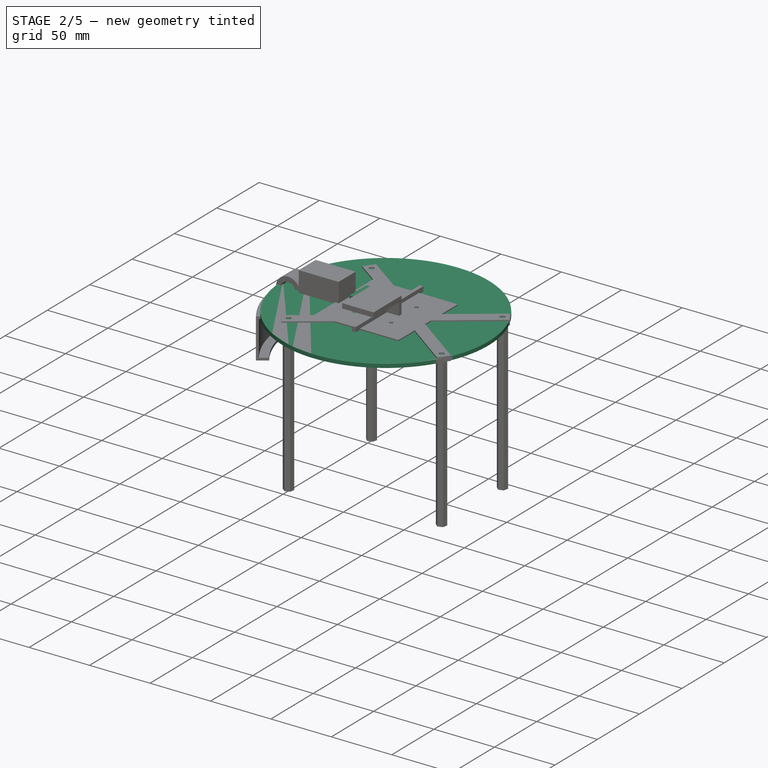
[diagram: stage 2 of 5 — iso view after this stage's code; geometry added in this stage tinted green]
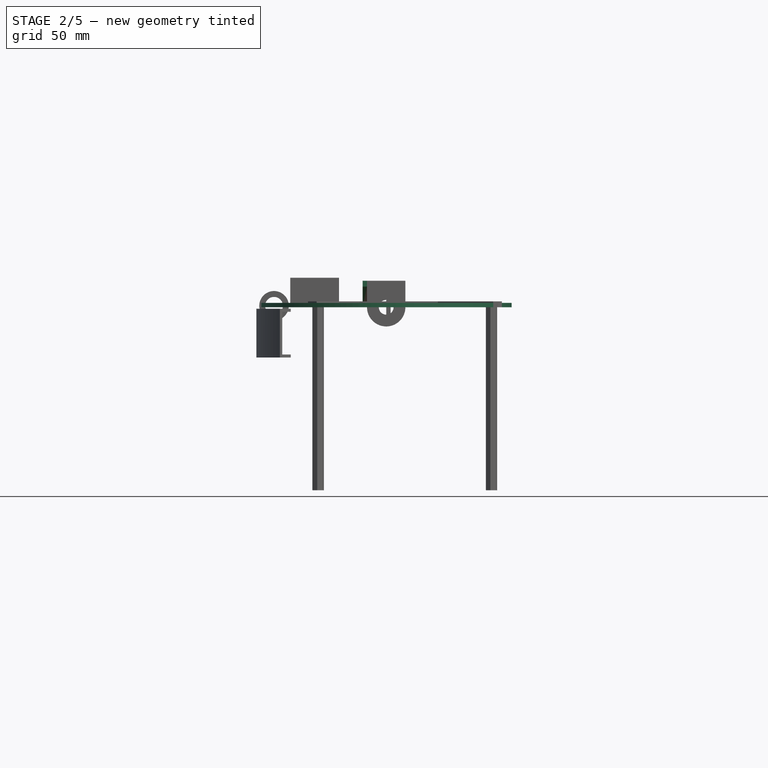
[diagram: stage 2 of 5 — front view after this stage's code; geometry added in this stage tinted green]
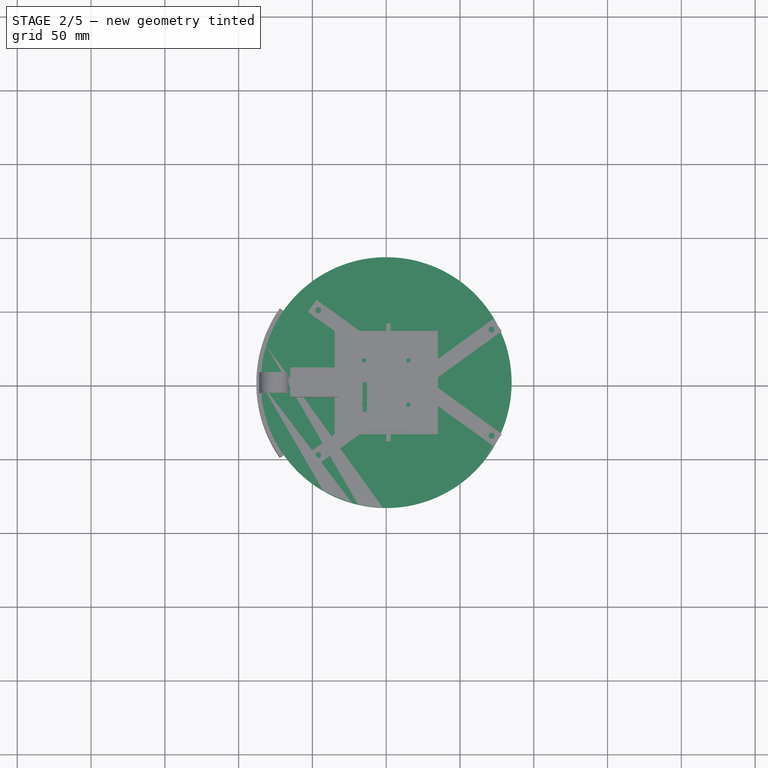
[diagram: stage 2 of 5 — top view after this stage's code; geometry added in this stage tinted green]
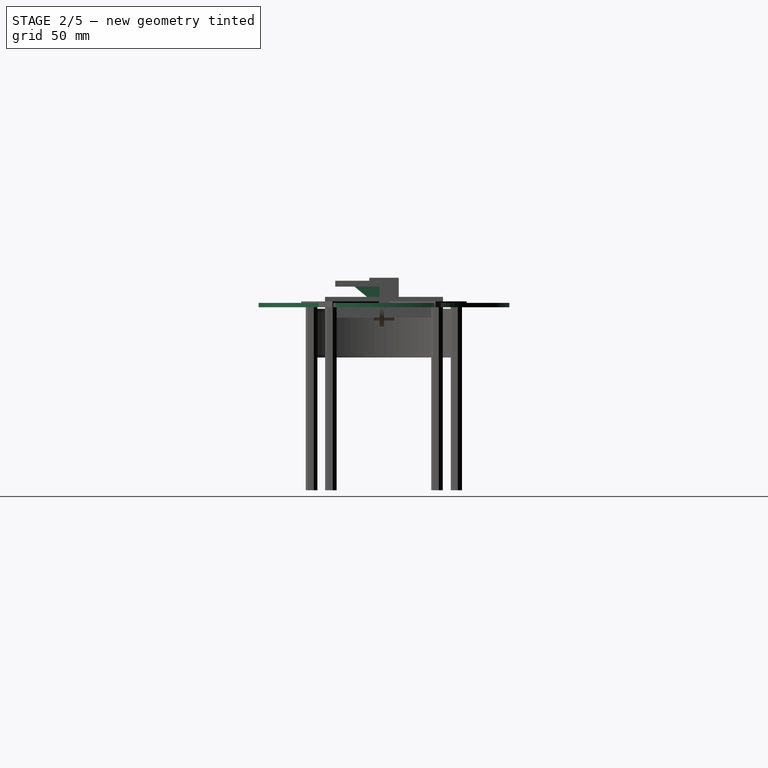
[diagram: stage 2 of 5 — right view after this stage's code; geometry added in this stage tinted green]
FEATURE [PartDesign::SubShapeBinder] Binder
  BindCopyOnChange = 0
  BindMode = 0
  ClaimChildren = false
  Context = -> Body [Binder.]
  Fuse = false
  MakeFace = true
  OffsetFill = false
  OffsetIntersection = false
  OffsetJoinType = 0
  OffsetOpenResult = false
  PartialLoad = false
  Relative = true
  Support = -> [Part003[Part005.Body038.Pocket029.Sketch086.]]
  _Version = 2
FEATURE [PartDesign::SubShapeBinder] Binder005
  BindCopyOnChange = 0
  BindMode = 0
  ClaimChildren = false
  Context = -> Body [Binder005.]
  Fuse = false
  MakeFace = true
  OffsetFill = false
  OffsetIntersection = false
  OffsetJoinType = 0
  OffsetOpenResult = false
  PartialLoad = false
  Relative = true
  Support = -> [Part003[Part006.Body039.Pocket032.Sketch090.]]
  _Version = 2
FEATURE [PartDesign::SubShapeBinder] Binder006
  BindCopyOnChange = 0
  BindMode = 0
  ClaimChildren = false
  Context = -> Body [Binder006.]
  Fuse = false
  MakeFace = true
  OffsetFill = false
  OffsetIntersection = false
  OffsetJoinType = 0
  OffsetOpenResult = false
  PartialLoad = false
  Relative = true
  Support = -> [Part003[Part007.Body040.Pocket034.Sketch094.]]
  _Version = 2
FEATURE [PartDesign::SubShapeBinder] Binder007
  BindCopyOnChange = 0
  BindMode = 0
  ClaimChildren = false
  Context = -> Body [Binder007.]
  Fuse = false
  MakeFace = true
  OffsetFill = false
  OffsetIntersection = false
  OffsetJoinType = 0
  OffsetOpenResult = false
  PartialLoad = false
  Relative = true
  Support = -> [Part003[Part008.Body041.Pocket036.Sketch098.]]
  _Version = 2
FEATURE [PartDesign::SubShapeBinder] Binder008
  BindCopyOnChange = 0
  BindMode = 0
  ClaimChildren = false
  Context = -> Body [Binder008.]
  Fuse = false
  MakeFace = true
  OffsetFill = false
  OffsetIntersection = false
  OffsetJoinType = 0
  OffsetOpenResult = false
  PartialLoad = false
  Relative = true
  Support = -> [Part011[Body050.Pocket048.Sketch123.]]
  _Version = 2
FEATURE [PartDesign::SubShapeBinder] Binder032
  BindCopyOnChange = 0
  BindMode = 0
  ClaimChildren = false
  Context = -> Body [Binder032.]
  Fuse = false
  MakeFace = true
  OffsetFill = false
  OffsetIntersection = false
  OffsetJoinType = 0
  OffsetOpenResult = false
  PartialLoad = false
  Relative = true
  Support = -> [LD19[Part__Feature1464.Edge77,Part__Feature1464.Edge78,Part__Feature1464.Edge73,Part__Feature1464.Edge74,Part__Feature1464.Edge75,Part__Feature1464.Edge76]]
  _Version = 2
FEATURE [PartDesign::SubShapeBinder] Binder034
  BindCopyOnChange = 0
  BindMode = 0
  ClaimChildren = false
  Context = -> Body [Binder034.]
  Fuse = false
  MakeFace = true
  OffsetFill = false
  OffsetIntersection = false
  OffsetJoinType = 0
  OffsetOpenResult = false
  PartialLoad = false
  Relative = true
  Support = -> [Part004[Body053.Pad089.Sketch131.]]
  _Version = 2
FEATURE [PartDesign::SubShapeBinder] Binder038
  BindCopyOnChange = 0
  BindMode = 0
  ClaimChildren = false
  Context = -> Body [Binder038.]
  Fuse = false
  MakeFace = true
  OffsetFill = false
  OffsetIntersection = false
  OffsetJoinType = 0
  OffsetOpenResult = false
  PartialLoad = false
  Relative = true
  Support = -> [Part013[Body049.Pocket108.Sketch137.]]
  _Version = 2
FEATURE [PartDesign::SubShapeBinder] Binder050
  BindCopyOnChange = 0
  BindMode = 0
  ClaimChildren = false
  Context = -> Body [Binder050.]
  Fuse = false
  MakeFace = true
  OffsetFill = false
  OffsetIntersection = false
  OffsetJoinType = 0
  OffsetOpenResult = false
  PartialLoad = false
  Relative = true
  _Version = 2
FEATURE [PartDesign::SubShapeBinder] Binder051
  BindCopyOnChange = 0
  BindMode = 0
  ClaimChildren = false
  Context = -> Part011 [Body050.Binder051.]
  Fuse = false
  MakeFace = true
  OffsetFill = false
  OffsetIntersection = false
  OffsetJoinType = 0
  OffsetOpenResult = false
  PartialLoad = false
  Relative = true
  Support = -> [Part013[Body049.Pocket108.Sketch137.]]
  _Version = 2
FEATURE [PartDesign::SubShapeBinder] Binder055
  BindCopyOnChange = 0
  BindMode = 0
  ClaimChildren = false
  Context = -> Body [Binder055.]
  Fuse = false
  MakeFace = true
  OffsetFill = false
  OffsetIntersection = false
  OffsetJoinType = 0
  OffsetOpenResult = false
  PartialLoad = false
  Relative = true
  _Version = 2
FEATURE [PartDesign::SubShapeBinder] Binder058
  BindCopyOnChange = 0
  BindMode = 0
  ClaimChildren = false
  Context = -> Part011 [Body121.Binder058.]
  Fuse = false
  MakeFace = true
  OffsetFill = false
  OffsetIntersection = false
  OffsetJoinType = 0
  OffsetOpenResult = false
  PartialLoad = false
  Relative = true
  _Version = 2
FEATURE [PartDesign::SubShapeBinder] Binder059
  BindCopyOnChange = 0
  BindMode = 0
  ClaimChildren = false
  Context = -> Part011 [Body099.Binder059.]
  Fuse = false
  MakeFace = true
  OffsetFill = false
  OffsetIntersection = false
  OffsetJoinType = 0
  OffsetOpenResult = false
  PartialLoad = false
  Relative = true
  Support = -> [Part003[Part008.Body041.Pocket036.Sketch098.]]
  _Version = 2
FEATURE [Part::Feature] Part__Feature1464  label="LD19_BASE"
  Placement = pos=(-9e-15,-8.62399,0) rot=(0,0,1;0rad)
  shape: bbox 53.95 x 46.29 x 3.551 mm, 34 faces (baked)
FEATURE [Part::Feature] Part__Feature1465  label="LD19_EMITTER"
  Placement = pos=(5.47382e-06,-8.59716,0) rot=(0,0,1;0rad)
  shape: bbox 39.74 x 39.74 x 11.25 mm, 29 faces (baked)
FEATURE [Part::Feature] Part__Feature1466  label="LD19_BODY"
  Placement = pos=(5.47382e-06,-8.59716,-2e-15) rot=(0,0,1;0rad)
  shape: bbox 38.52 x 38.52 x 18.7 mm, 15 faces (baked)
FEATURE [Part::Feature] Part__Feature1973  label="OmniBase_Predeterminado007"
  Placement = pos=(4.80373,-0.638646,40.5) rot=(0,0,1;0rad)
  shape: bbox 44 x 43.9 x 9 mm, 104 faces (baked)
FEATURE [Part::Feature] Part__Feature1974  label="Roller_Predeterminado126"
  Placement = pos=(4.80373,20.3614,41.6192) rot=(0,0,1;0rad)
  shape: bbox 2.6 x 8.659 x 8.659 mm, 10 faces (baked)
FEATURE [Part::Feature] Part__Feature1975  label="Roller_Predeterminado127"
  Placement = pos=(-2.3787,19.0949,41.6192) rot=(0,0,1;0.349066rad)
  shape: bbox 4.664 x 8.342 x 8.659 mm, 10 faces (baked)
FEATURE [Part::Feature] Part__Feature1976  label="Roller_Predeterminado128"
  Placement = pos=(-8.69481,15.4483,41.6192) rot=(0,0,1;0.698132rad)
  shape: bbox 6.71 x 7.451 x 8.659 mm, 10 faces (baked)
FEATURE [Part::Feature] Part__Feature1977  label="Roller_Predeterminado129"
  Placement = pos=(-13.3828,9.86135,41.6192) rot=(0,0,1;1.0472rad)
  shape: bbox 7.965 x 5.765 x 8.659 mm, 10 faces (baked)
FEATURE [Part::Feature] Part__Feature1978  label="Roller_Predeterminado130"
  Placement = pos=(-15.8772,3.00797,41.6192) rot=(0,0,1;1.39626rad)
  shape: bbox 8.632 x 3.688 x 8.659 mm, 10 faces (baked)
FEATURE [Part::Feature] Part__Feature1979  label="Roller_Predeterminado131"
  Placement = pos=(-15.8772,-4.28526,41.6192) rot=(0,0,1;1.74533rad)
  shape: bbox 8.632 x 3.688 x 8.659 mm, 10 faces (baked)
FEATURE [Part::Feature] Part__Feature1980  label="Roller_Predeterminado132"
  Placement = pos=(-13.3828,-11.1386,41.6192) rot=(0,0,1;2.0944rad)
  shape: bbox 7.965 x 5.765 x 8.659 mm, 10 faces (baked)
FEATURE [Part::Feature] Part__Feature1981  label="Roller_Predeterminado133"
  Placement = pos=(-8.69481,-16.7256,41.6192) rot=(0,0,1;2.44346rad)
  shape: bbox 6.71 x 7.451 x 8.659 mm, 10 faces (baked)
FEATURE [Part::Feature] Part__Feature1982  label="Roller_Predeterminado134"
  Placement = pos=(-2.3787,-20.3722,41.6192) rot=(0,0,1;2.79253rad)
  shape: bbox 4.664 x 8.342 x 8.659 mm, 10 faces (baked)
FEATURE [Part::Feature] Part__Feature1983  label="Roller_Predeterminado135"
  Placement = pos=(4.80373,-21.6386,41.6192) rot=(0,0,1;3.14159rad)
  shape: bbox 2.6 x 8.659 x 8.659 mm, 10 faces (baked)
FEATURE [Part::Feature] Part__Feature1984  label="Roller_Predeterminado136"
  Placement = pos=(11.9862,-20.3722,41.6192) rot=(0,0,1;3.49066rad)
  shape: bbox 4.664 x 8.342 x 8.659 mm, 10 faces (baked)
FEATURE [Part::Feature] Part__Feature1985  label="Roller_Predeterminado137"
  Placement = pos=(18.3023,-16.7256,41.6192) rot=(0,0,1;3.83972rad)
  shape: bbox 6.71 x 7.451 x 8.659 mm, 10 faces (baked)
FEATURE [Part::Feature] Part__Feature1986  label="Roller_Predeterminado138"
  Placement = pos=(22.9903,-11.1386,41.6192) rot=(0,0,-1;2.0944rad)
  shape: bbox 7.965 x 5.765 x 8.659 mm, 10 faces (baked)
FEATURE [Part::Feature] Part__Feature1987  label="Roller_Predeterminado139"
  Placement = pos=(25.4847,-4.28526,41.6192) rot=(0,0,-1;1.74533rad)
  shape: bbox 8.632 x 3.688 x 8.659 mm, 10 faces (baked)
FEATURE [Part::Feature] Part__Feature1988  label="Roller_Predeterminado140"
  Placement = pos=(25.4847,3.00797,41.6192) rot=(0,0,-1;1.39626rad)
  shape: bbox 8.632 x 3.688 x 8.659 mm, 10 faces (baked)
FEATURE [Part::Feature] Part__Feature1989  label="Roller_Predeterminado141"
  Placement = pos=(22.9903,9.86135,41.6192) rot=(0,0,-1;1.0472rad)
  shape: bbox 7.965 x 5.765 x 8.659 mm, 10 faces (baked)
FEATURE [Part::Feature] Part__Feature1990  label="Roller_Predeterminado142"
  Placement = pos=(18.3023,15.4483,41.6192) rot=(0,0,-1;0.698132rad)
  shape: bbox 6.71 x 7.451 x 8.659 mm, 10 faces (baked)
FEATURE [Part::Feature] Part__Feature1991  label="Roller_Predeterminado143"
  Placement = pos=(11.9862,19.0949,41.6192) rot=(0,0,-1;0.349066rad)
  shape: bbox 4.664 x 8.342 x 8.659 mm, 10 faces (baked)
FEATURE [Part::Feature] Part__Feature1992  label="Nut_Predeterminado007"
  Placement = pos=(4.80373,-0.638646,43.5) rot=(0,0,1;1.0472rad)
  shape: bbox 13.86 x 12.93 x 2 mm, 24 faces (baked)
FEATURE [App::Part] OmniWheel057  label="OmniWheel 2"
  Group = -> [Part__Feature1973,Part__Feature1974,Part__Feature1975,Part__Feature1976,Part__Feature1977,Part__Feature1978,Part__Feature1979,Part__Feature1980,Part__Feature1981,Part__Feature1982,Part__Feature1983,Part__Feature1984,Part__Feature1985,Part__Feature1986,Part__Feature1987,Part__Feature1988,Part__Feature1989,Part__Feature1990,Part__Feature1991,Part__Feature1992]
  Origin = -> Origin358
  Placement = pos=(20.4451,37.5671,-8.7) rot=(-0.913318,0.287968,-0.287968;1.66134rad)
FEATURE [Part::Feature] Part__Feature1993  label="OmniBase_Predeterminado008"
  Placement = pos=(4.80373,-0.638646,40.5) rot=(0,0,1;0rad)
  shape: bbox 44 x 43.9 x 9 mm, 104 faces (baked)
FEATURE [Part::Feature] Part__Feature1994  label="Roller_Predeterminado144"
  Placement = pos=(4.80373,20.3614,41.6192) rot=(0,0,1;0rad)
  shape: bbox 2.6 x 8.659 x 8.659 mm, 10 faces (baked)
FEATURE [Part::Feature] Part__Feature1995  label="Roller_Predeterminado145"
  Placement = pos=(-2.3787,19.0949,41.6192) rot=(0,0,1;0.349066rad)
  shape: bbox 4.664 x 8.342 x 8.659 mm, 10 faces (baked)
FEATURE [Part::Feature] Part__Feature1996  label="Roller_Predeterminado146"
  Placement = pos=(-8.69481,15.4483,41.6192) rot=(0,0,1;0.698132rad)
  shape: bbox 6.71 x 7.451 x 8.659 mm, 10 faces (baked)
FEATURE [Part::Feature] Part__Feature1997  label="Roller_Predeterminado147"
  Placement = pos=(-13.3828,9.86135,41.6192) rot=(0,0,1;1.0472rad)
  shape: bbox 7.965 x 5.765 x 8.659 mm, 10 faces (baked)
FEATURE [Part::Feature] Part__Feature1998  label="Roller_Predeterminado148"
  Placement = pos=(-15.8772,3.00797,41.6192) rot=(0,0,1;1.39626rad)
  shape: bbox 8.632 x 3.688 x 8.659 mm, 10 faces (baked)
FEATURE [Part::Feature] Part__Feature1999  label="Roller_Predeterminado149"
  Placement = pos=(-15.8772,-4.28526,41.6192) rot=(0,0,1;1.74533rad)
  shape: bbox 8.632 x 3.688 x 8.659 mm, 10 faces (baked)
FEATURE [Part::Feature] Part__Feature2000  label="Roller_Predeterminado150"
  Placement = pos=(-13.3828,-11.1386,41.6192) rot=(0,0,1;2.0944rad)
  shape: bbox 7.965 x 5.765 x 8.659 mm, 10 faces (baked)
FEATURE [Part::Feature] Part__Feature2001  label="Roller_Predeterminado151"
  Placement = pos=(-8.69481,-16.7256,41.6192) rot=(0,0,1;2.44346rad)
  shape: bbox 6.71 x 7.451 x 8.659 mm, 10 faces (baked)
FEATURE [Part::Feature] Part__Feature2002  label="Roller_Predeterminado152"
  Placement = pos=(-2.3787,-20.3722,41.6192) rot=(0,0,1;2.79253rad)
  shape: bbox 4.664 x 8.342 x 8.659 mm, 10 faces (baked)
FEATURE [Part::Feature] Part__Feature2003  label="Roller_Predeterminado153"
  Placement = pos=(4.80373,-21.6386,41.6192) rot=(0,0,1;3.14159rad)
  shape: bbox 2.6 x 8.659 x 8.659 mm, 10 faces (baked)
FEATURE [Part::Feature] Part__Feature2004  label="Roller_Predeterminado154"
  Placement = pos=(11.9862,-20.3722,41.6192) rot=(0,0,1;3.49066rad)
  shape: bbox 4.664 x 8.342 x 8.659 mm, 10 faces (baked)
FEATURE [Part::Feature] Part__Feature2005  label="Roller_Predeterminado155"
  Placement = pos=(18.3023,-16.7256,41.6192) rot=(0,0,1;3.83972rad)
  shape: bbox 6.71 x 7.451 x 8.659 mm, 10 faces (baked)
FEATURE [Part::Feature] Part__Feature2006  label="Roller_Predeterminado156"
  Placement = pos=(22.9903,-11.1386,41.6192) rot=(0,0,-1;2.0944rad)
  shape: bbox 7.965 x 5.765 x 8.659 mm, 10 faces (baked)
FEATURE [Part::Feature] Part__Feature2007  label="Roller_Predeterminado157"
  Placement = pos=(25.4847,-4.28526,41.6192) rot=(0,0,-1;1.74533rad)
  shape: bbox 8.632 x 3.688 x 8.659 mm, 10 faces (baked)
FEATURE [Part::Feature] Part__Feature2008  label="Roller_Predeterminado158"
  Placement = pos=(25.4847,3.00797,41.6192) rot=(0,0,-1;1.39626rad)
  shape: bbox 8.632 x 3.688 x 8.659 mm, 10 faces (baked)
FEATURE [Part::Feature] Part__Feature2009  label="Roller_Predeterminado159"
  Placement = pos=(22.9903,9.86135,41.6192) rot=(0,0,-1;1.0472rad)
  shape: bbox 7.965 x 5.765 x 8.659 mm, 10 faces (baked)
FEATURE [Part::Feature] Part__Feature2010  label="Roller_Predeterminado160"
  Placement = pos=(18.3023,15.4483,41.6192) rot=(0,0,-1;0.698132rad)
  shape: bbox 6.71 x 7.451 x 8.659 mm, 10 faces (baked)
FEATURE [Part::Feature] Part__Feature2011  label="Roller_Predeterminado161"
  Placement = pos=(11.9862,19.0949,41.6192) rot=(0,0,-1;0.349066rad)
  shape: bbox 4.664 x 8.342 x 8.659 mm, 10 faces (baked)
FEATURE [Part::Feature] Part__Feature2012  label="Nut_Predeterminado008"
  Placement = pos=(4.80373,-0.638646,43.5) rot=(0,0,1;1.0472rad)
  shape: bbox 13.86 x 12.93 x 2 mm, 24 faces (baked)
FEATURE [App::Part] OmniWheel058  label="OmniWheel 3"
  Group = -> [Part__Feature1993,Part__Feature1994,Part__Feature1995,Part__Feature1996,Part__Feature1997,Part__Feature1998,Part__Feature1999,Part__Feature2000,Part__Feature2001,Part__Feature2002,Part__Feature2003,Part__Feature2004,Part__Feature2005,Part__Feature2006,Part__Feature2007,Part__Feature2008,Part__Feature2009,Part__Feature2010,Part__Feature2011,Part__Feature2012]
  Origin = -> Origin359
  Placement = pos=(20.4451,-37.5671,-7.4) rot=(0.913318,0.287968,0.287968;1.66134rad)
FEATURE [Part::Feature] Part__Feature2013  label="OmniBase_Predeterminado009"
  Placement = pos=(4.80373,-0.638646,40.5) rot=(0,0,1;0rad)
  shape: bbox 44 x 43.9 x 9 mm, 104 faces (baked)
FEATURE [Part::Feature] Part__Feature2014  label="Roller_Predeterminado162"
  Placement = pos=(4.80373,20.3614,41.6192) rot=(0,0,1;0rad)
  shape: bbox 2.6 x 8.659 x 8.659 mm, 10 faces (baked)
FEATURE [Part::Feature] Part__Feature2015  label="Roller_Predeterminado163"
  Placement = pos=(-2.3787,19.0949,41.6192) rot=(0,0,1;0.349066rad)
  shape: bbox 4.664 x 8.342 x 8.659 mm, 10 faces (baked)
FEATURE [Part::Feature] Part__Feature2016  label="Roller_Predeterminado164"
  Placement = pos=(-8.69481,15.4483,41.6192) rot=(0,0,1;0.698132rad)
  shape: bbox 6.71 x 7.451 x 8.659 mm, 10 faces (baked)
FEATURE [Part::Feature] Part__Feature2017  label="Roller_Predeterminado165"
  Placement = pos=(-13.3828,9.86135,41.6192) rot=(0,0,1;1.0472rad)
  shape: bbox 7.965 x 5.765 x 8.659 mm, 10 faces (baked)
FEATURE [Part::Feature] Part__Feature2018  label="Roller_Predeterminado166"
  Placement = pos=(-15.8772,3.00797,41.6192) rot=(0,0,1;1.39626rad)
  shape: bbox 8.632 x 3.688 x 8.659 mm, 10 faces (baked)
FEATURE [Part::Feature] Part__Feature2019  label="Roller_Predeterminado167"
  Placement = pos=(-15.8772,-4.28526,41.6192) rot=(0,0,1;1.74533rad)
  shape: bbox 8.632 x 3.688 x 8.659 mm, 10 faces (baked)
FEATURE [Part::Feature] Part__Feature2020  label="Roller_Predeterminado168"
  Placement = pos=(-13.3828,-11.1386,41.6192) rot=(0,0,1;2.0944rad)
  shape: bbox 7.965 x 5.765 x 8.659 mm, 10 faces (baked)
FEATURE [Part::Feature] Part__Feature2021  label="Roller_Predeterminado169"
  Placement = pos=(-8.69481,-16.7256,41.6192) rot=(0,0,1;2.44346rad)
  shape: bbox 6.71 x 7.451 x 8.659 mm, 10 faces (baked)
FEATURE [Part::Feature] Part__Feature2022  label="Roller_Predeterminado170"
  Placement = pos=(-2.3787,-20.3722,41.6192) rot=(0,0,1;2.79253rad)
  shape: bbox 4.664 x 8.342 x 8.659 mm, 10 faces (baked)
FEATURE [Part::Feature] Part__Feature2023  label="Roller_Predeterminado171"
  Placement = pos=(4.80373,-21.6386,41.6192) rot=(0,0,1;3.14159rad)
  shape: bbox 2.6 x 8.659 x 8.659 mm, 10 faces (baked)
FEATURE [Part::Feature] Part__Feature2024  label="Roller_Predeterminado172"
  Placement = pos=(11.9862,-20.3722,41.6192) rot=(0,0,1;3.49066rad)
  shape: bbox 4.664 x 8.342 x 8.659 mm, 10 faces (baked)
FEATURE [Part::Feature] Part__Feature2025  label="Roller_Predeterminado173"
  Placement = pos=(18.3023,-16.7256,41.6192) rot=(0,0,1;3.83972rad)
  shape: bbox 6.71 x 7.451 x 8.659 mm, 10 faces (baked)
FEATURE [Part::Feature] Part__Feature2026  label="Roller_Predeterminado174"
  Placement = pos=(22.9903,-11.1386,41.6192) rot=(0,0,-1;2.0944rad)
  shape: bbox 7.965 x 5.765 x 8.659 mm, 10 faces (baked)
FEATURE [Part::Feature] Part__Feature2027  label="Roller_Predeterminado175"
  Placement = pos=(25.4847,-4.28526,41.6192) rot=(0,0,-1;1.74533rad)
  shape: bbox 8.632 x 3.688 x 8.659 mm, 10 faces (baked)
FEATURE [Part::Feature] Part__Feature2028  label="Roller_Predeterminado176"
  Placement = pos=(25.4847,3.00797,41.6192) rot=(0,0,-1;1.39626rad)
  shape: bbox 8.632 x 3.688 x 8.659 mm, 10 faces (baked)
FEATURE [Part::Feature] Part__Feature2029  label="Roller_Predeterminado177"
  Placement = pos=(22.9903,9.86135,41.6192) rot=(0,0,-1;1.0472rad)
  shape: bbox 7.965 x 5.765 x 8.659 mm, 10 faces (baked)
FEATURE [Part::Feature] Part__Feature2030  label="Roller_Predeterminado178"
  Placement = pos=(18.3023,15.4483,41.6192) rot=(0,0,-1;0.698132rad)
  shape: bbox 6.71 x 7.451 x 8.659 mm, 10 faces (baked)
FEATURE [Part::Feature] Part__Feature2031  label="Roller_Predeterminado179"
  Placement = pos=(11.9862,19.0949,41.6192) rot=(0,0,-1;0.349066rad)
  shape: bbox 4.664 x 8.342 x 8.659 mm, 10 faces (baked)
FEATURE [Part::Feature] Part__Feature2032  label="Nut_Predeterminado009"
  Placement = pos=(4.80373,-0.638646,43.5) rot=(0,0,1;1.0472rad)
  shape: bbox 13.86 x 12.93 x 2 mm, 24 faces (baked)
FEATURE [App::Part] OmniWheel059  label="OmniWheel 4"
  Group = -> [Part__Feature2013,Part__Feature2014,Part__Feature2015,Part__Feature2016,Part__Feature2017,Part__Feature2018,Part__Feature2019,Part__Feature2020,Part__Feature2021,Part__Feature2022,Part__Feature2023,Part__Feature2024,Part__Feature2025,Part__Feature2026,Part__Feature2027,Part__Feature2028,Part__Feature2029,Part__Feature2030,Part__Feature2031,Part__Feature2032]
  Origin = -> Origin360
  Placement = pos=(-28.3089,-32.0608,-7.4) rot=(-0.913318,0.287968,0.287968;4.62184rad)
FEATURE [Part::Feature] Part__Feature268  label="OmniBase_Predeterminado004"
  Placement = pos=(4.80373,-0.638646,40.5) rot=(0,0,1;0rad)
  shape: bbox 44 x 43.9 x 9 mm, 104 faces (baked)
FEATURE [Part::Feature] Part__Feature269  label="Roller_Predeterminado072"
  Placement = pos=(4.80373,20.3614,41.6192) rot=(0,0,1;0rad)
  shape: bbox 2.6 x 8.659 x 8.659 mm, 10 faces (baked)
FEATURE [Part::Feature] Part__Feature270  label="Roller_Predeterminado073"
  Placement = pos=(-2.3787,19.0949,41.6192) rot=(0,0,1;0.349066rad)
  shape: bbox 4.664 x 8.342 x 8.659 mm, 10 faces (baked)
FEATURE [Part::Feature] Part__Feature271  label="Roller_Predeterminado074"
  Placement = pos=(-8.69481,15.4483,41.6192) rot=(0,0,1;0.698132rad)
  shape: bbox 6.71 x 7.451 x 8.659 mm, 10 faces (baked)
FEATURE [Part::Feature] Part__Feature272  label="Roller_Predeterminado075"
  Placement = pos=(-13.3828,9.86135,41.6192) rot=(0,0,1;1.0472rad)
  shape: bbox 7.965 x 5.765 x 8.659 mm, 10 faces (baked)
FEATURE [Part::Feature] Part__Feature273  label="Roller_Predeterminado076"
  Placement = pos=(-15.8772,3.00797,41.6192) rot=(0,0,1;1.39626rad)
  shape: bbox 8.632 x 3.688 x 8.659 mm, 10 faces (baked)
FEATURE [Part::Feature] Part__Feature274  label="Roller_Predeterminado077"
  Placement = pos=(-15.8772,-4.28526,41.6192) rot=(0,0,1;1.74533rad)
  shape: bbox 8.632 x 3.688 x 8.659 mm, 10 faces (baked)
FEATURE [Part::Feature] Part__Feature275  label="Roller_Predeterminado078"
  Placement = pos=(-13.3828,-11.1386,41.6192) rot=(0,0,1;2.0944rad)
  shape: bbox 7.965 x 5.765 x 8.659 mm, 10 faces (baked)
FEATURE [Part::Feature] Part__Feature276  label="Roller_Predeterminado079"
  Placement = pos=(-8.69481,-16.7256,41.6192) rot=(0,0,1;2.44346rad)
  shape: bbox 6.71 x 7.451 x 8.659 mm, 10 faces (baked)
FEATURE [Part::Feature] Part__Feature277  label="Roller_Predeterminado080"
  Placement = pos=(-2.3787,-20.3722,41.6192) rot=(0,0,1;2.79253rad)
  shape: bbox 4.664 x 8.342 x 8.659 mm, 10 faces (baked)
FEATURE [Part::Feature] Part__Feature278  label="Roller_Predeterminado081"
  Placement = pos=(4.80373,-21.6386,41.6192) rot=(0,0,1;3.14159rad)
  shape: bbox 2.6 x 8.659 x 8.659 mm, 10 faces (baked)
FEATURE [Part::Feature] Part__Feature279  label="Roller_Predeterminado082"
  Placement = pos=(11.9862,-20.3722,41.6192) rot=(0,0,1;3.49066rad)
  shape: bbox 4.664 x 8.342 x 8.659 mm, 10 faces (baked)
FEATURE [Part::Feature] Part__Feature280  label="Roller_Predeterminado083"
  Placement = pos=(18.3023,-16.7256,41.6192) rot=(0,0,1;3.83972rad)
  shape: bbox 6.71 x 7.451 x 8.659 mm, 10 faces (baked)
FEATURE [Part::Feature] Part__Feature281  label="Roller_Predeterminado084"
  Placement = pos=(22.9903,-11.1386,41.6192) rot=(0,0,-1;2.0944rad)
  shape: bbox 7.965 x 5.765 x 8.659 mm, 10 faces (baked)
FEATURE [Part::Feature] Part__Feature282  label="Roller_Predeterminado085"
  Placement = pos=(25.4847,-4.28526,41.6192) rot=(0,0,-1;1.74533rad)
  shape: bbox 8.632 x 3.688 x 8.659 mm, 10 faces (baked)
FEATURE [Part::Feature] Part__Feature283  label="Roller_Predeterminado086"
  Placement = pos=(25.4847,3.00797,41.6192) rot=(0,0,-1;1.39626rad)
  shape: bbox 8.632 x 3.688 x 8.659 mm, 10 faces (baked)
FEATURE [Part::Feature] Part__Feature284  label="Roller_Predeterminado087"
  Placement = pos=(22.9903,9.86135,41.6192) rot=(0,0,-1;1.0472rad)
  shape: bbox 7.965 x 5.765 x 8.659 mm, 10 faces (baked)
FEATURE [Part::Feature] Part__Feature285  label="Roller_Predeterminado088"
  Placement = pos=(18.3023,15.4483,41.6192) rot=(0,0,-1;0.698132rad)
  shape: bbox 6.71 x 7.451 x 8.659 mm, 10 faces (baked)
FEATURE [Part::Feature] Part__Feature286  label="Roller_Predeterminado089"
  Placement = pos=(11.9862,19.0949,41.6192) rot=(0,0,-1;0.349066rad)
  shape: bbox 4.664 x 8.342 x 8.659 mm, 10 faces (baked)
FEATURE [Part::Feature] Part__Feature287  label="Nut_Predeterminado004"
  Placement = pos=(4.80373,-0.638646,43.5) rot=(0,0,1;1.0472rad)
  shape: bbox 13.86 x 12.93 x 2 mm, 24 faces (baked)
FEATURE [App::Part] OmniWheel054  label="OmniWheel 1"
  Group = -> [Part__Feature268,Part__Feature269,Part__Feature270,Part__Feature271,Part__Feature272,Part__Feature273,Part__Feature274,Part__Feature275,Part__Feature276,Part__Feature277,Part__Feature278,Part__Feature279,Part__Feature280,Part__Feature281,Part__Feature282,Part__Feature283,Part__Feature284,Part__Feature285,Part__Feature286,Part__Feature287]
  Origin = -> Origin019
  Placement = pos=(-23.8855,35.1581,-6.8) rot=(-0.419215,-0.805305,-0.419215;1.78566rad)
FEATURE [Sketcher::SketchObject] Sketch
  ArcFitTolerance = 0
  AttachmentSupport = -> [XY_Plane008]
  FullyConstrained = true
  MakeInternals = false
  MapMode = 5
  sketch-geometry (1):
    g0: Circle CenterX=0 CenterY=0 CenterZ=0 NormalX=0 NormalY=0 NormalZ=1 AngleXU=0 Radius=85
  constraints (2):
    c: Coincident(g0,g-1)
    c: Diameter(g0) = 170
FEATURE [PartDesign::Pad] Pad  label="Structural layer"
  Direction = (0,0,1)
  Length = 3
  Length2 = 10
  Profile = -> Sketch
  ReferenceAxis = -> Sketch [N_Axis]
  Suppressed = false
  Type = 0
FEATURE [Sketcher::SketchObject] Sketch087
  ArcFitTolerance = 0
  AttachmentSupport = -> [Pocket029]
  FullyConstrained = true
  MakeInternals = false
  MapMode = 5
  Placement = pos=(0,9e-16,0) rot=(-1,0,0;1.5708rad)
  sketch-geometry (1):
    g0: Circle CenterX=0 CenterY=9.5 CenterZ=0 NormalX=0 NormalY=0 NormalZ=1 AngleXU=0 Radius=1
  constraints (3):
    c: PointOnObject(g0,g-2)
    c: Diameter(g0) = 2
    c: DistanceY(g-1,g0) = 9.5
FEATURE [PartDesign::Pocket] Pocket030
  BaseFeature = -> Pocket029
  Direction = (0,-1,-2e-16)
  Length = 5
  Length2 = 5
  Placement = pos=(0,0,0) rot=(1,0,0;1.5708rad)
  Profile = -> Sketch087
  ReferenceAxis = -> Sketch087 [N_Axis]
  Suppressed = false
  Type = 1
FEATURE [PartDesign::PolarPattern] PolarPattern012
  Angle = 360
  Axis = -> Sketch087 [N_Axis]
  BaseFeature = -> Pocket030
  Mode = 0
  Occurrences = 4
  Offset = 120
  Originals = -> [Pocket030]
  Placement = pos=(0,0,0) rot=(1,0,0;1.5708rad)
  Suppressed = false
  TransformMode = 0
FEATURE [Sketcher::SketchObject] Sketch088
  ArcFitTolerance = 0
  AttachmentSupport = -> [XZ_Plane242]
  FullyConstrained = true
  MakeInternals = false
  MapMode = 5
  Placement = pos=(0,0,0) rot=(1,0,0;1.5708rad)
  sketch-geometry (5):
    g0: Circle CenterX=0 CenterY=0 CenterZ=0 NormalX=0 NormalY=0 NormalZ=1 AngleXU=0 Radius=6
    g1: LineSegment StartX=-13 StartY=18 StartZ=0 EndX=13 EndY=18 EndZ=0
    g2: LineSegment StartX=-13 StartY=18 StartZ=0 EndX=-13 EndY=0 EndZ=0
    g3: LineSegment StartX=13 StartY=18 StartZ=0 EndX=13 EndY=-3.6e-15 EndZ=0
    g4: ArcOfCircle CenterX=0 CenterY=0 CenterZ=0 NormalX=0 NormalY=0 NormalZ=1 AngleXU=0 Radius=13 StartAngle=3.14159 EndAngle=6.28319
  constraints (13):
    c: Coincident(g0,g-1)
    c: Diameter(g0) = 12
    c: DistanceX(g1,g1) = 26
    c: Symmetric(g1,g1,g-2)
    c: DistanceY(g0,g1) = 18
    c: Coincident(g2,g1)
    c: PointOnObject(g2,g-1)
    c: Vertical(g2)
    c: Coincident(g3,g1)
    c: PointOnObject(g3,g-1)
    c: Coincident(g4,g0)
    c: Coincident(g4,g2)
    c: Coincident(g4,g3)
FEATURE [PartDesign::Pad] Pad064
  Direction = (0,-1,2e-16)
  Length = 3
  Length2 = 10
  Placement = pos=(0,0,0) rot=(1,0,0;1.5708rad)
  Profile = -> Sketch088
  ReferenceAxis = -> Sketch088 [N_Axis]
  Suppressed = false
  Type = 0
FEATURE [Sketcher::SketchObject] Sketch089
  ArcFitTolerance = 0
  AttachmentSupport = -> [Pad064]
  ExternalGeometry = -> [Pad064]
  FullyConstrained = true
  MakeInternals = false
  MapMode = 5
  Placement = pos=(0,-3,0) rot=(1,0,0;1.5708rad)
  sketch-geometry (4):
    g0: LineSegment StartX=-13 StartY=18 StartZ=0 EndX=-13 EndY=14 EndZ=0
    g1: LineSegment StartX=-13 StartY=14 StartZ=0 EndX=13 EndY=14 EndZ=0
    g2: LineSegment StartX=13 StartY=14 StartZ=0 EndX=13 EndY=18 EndZ=0
    g3: LineSegment StartX=13 StartY=18 StartZ=0 EndX=-13 EndY=18 EndZ=0
  constraints (10):
    c: Coincident(g0,g-3)
    c: Vertical(g0)
    c: Coincident(g1,g0)
    c: Horizontal(g1)
    c: Coincident(g2,g1)
    c: Coincident(g2,g-3)
    c: Vertical(g2)
    c: Coincident(g3,g2)
    c: Coincident(g3,g0)
    c: DistanceY(g0,g0) = 4
FEATURE [PartDesign::Pad] Pad065
  BaseFeature = -> Pad064
  Direction = (0,-1,2e-16)
  Length = 30
  Length2 = 10
  Placement = pos=(0,0,0) rot=(1,0,0;1.5708rad)
  Profile = -> Sketch089
  ReferenceAxis = -> Sketch089 [N_Axis]
  Suppressed = false
  Type = 0
FEATURE [PartDesign::Body] Body039  label="Moteur support 2"
  AllowCompound = false
  Group = -> [Sketch088,Pad064,Sketch089,Pad065,Sketch090,Pocket032,Sketch091,Pocket033,PolarPattern013]
  Origin = -> Origin242
  Placement = pos=(43.5918,62.2556,-8) rot=(0,0,-1;0.610865rad)
  Tip = -> PolarPattern013
FEATURE [Sketcher::SketchObject] Sketch092
  ArcFitTolerance = 0
  AttachmentSupport = -> [XZ_Plane243]
  FullyConstrained = true
  MakeInternals = false
  MapMode = 5
  Placement = pos=(0,0,0) rot=(1,0,0;1.5708rad)
  sketch-geometry (5):
    g0: Circle CenterX=0 CenterY=0 CenterZ=0 NormalX=0 NormalY=0 NormalZ=1 AngleXU=0 Radius=6
    g1: LineSegment StartX=-13 StartY=18 StartZ=0 EndX=13 EndY=18 EndZ=0
    g2: LineSegment StartX=-13 StartY=18 StartZ=0 EndX=-13 EndY=0 EndZ=0
    g3: LineSegment StartX=13 StartY=18 StartZ=0 EndX=13 EndY=-3.6e-15 EndZ=0
    g4: ArcOfCircle CenterX=0 CenterY=0 CenterZ=0 NormalX=0 NormalY=0 NormalZ=1 AngleXU=0 Radius=13 StartAngle=3.14159 EndAngle=6.28319
  constraints (13):
    c: Coincident(g0,g-1)
    c: Diameter(g0) = 12
    c: DistanceX(g1,g1) = 26
    c: Symmetric(g1,g1,g-2)
    c: DistanceY(g0,g1) = 18
    c: Coincident(g2,g1)
    c: PointOnObject(g2,g-1)
    c: Vertical(g2)
    c: Coincident(g3,g1)
    c: PointOnObject(g3,g-1)
    c: Coincident(g4,g0)
    c: Coincident(g4,g2)
    c: Coincident(g4,g3)
FEATURE [PartDesign::Pad] Pad066
  Direction = (0,-1,2e-16)
  Length = 3
  Length2 = 10
  Placement = pos=(0,0,0) rot=(1,0,0;1.5708rad)
  Profile = -> Sketch092
  ReferenceAxis = -> Sketch092 [N_Axis]
  Suppressed = false
  Type = 0
FEATURE [Sketcher::SketchObject] Sketch093
  ArcFitTolerance = 0
  AttachmentSupport = -> [Pad066]
  ExternalGeometry = -> [Pad066]
  FullyConstrained = true
  MakeInternals = false
  MapMode = 5
  Placement = pos=(0,-3,0) rot=(1,0,0;1.5708rad)
  sketch-geometry (4):
    g0: LineSegment StartX=-13 StartY=18 StartZ=0 EndX=-13 EndY=14 EndZ=0
    g1: LineSegment StartX=-13 StartY=14 StartZ=0 EndX=13 EndY=14 EndZ=0
    g2: LineSegment StartX=13 StartY=14 StartZ=0 EndX=13 EndY=18 EndZ=0
    g3: LineSegment StartX=13 StartY=18 StartZ=0 EndX=-13 EndY=18 EndZ=0
  constraints (10):
    c: Coincident(g0,g-3)
    c: Vertical(g0)
    c: Coincident(g1,g0)
    c: Horizontal(g1)
    c: Coincident(g2,g1)
    c: Coincident(g2,g-3)
    c: Vertical(g2)
    c: Coincident(g3,g2)
    c: Coincident(g3,g0)
    c: DistanceY(g0,g0) = 4
FEATURE [PartDesign::Pad] Pad067
  BaseFeature = -> Pad066
  Direction = (0,-1,2e-16)
  Length = 30
  Length2 = 10
  Placement = pos=(0,0,0) rot=(1,0,0;1.5708rad)
  Profile = -> Sketch093
  ReferenceAxis = -> Sketch093 [N_Axis]
  Suppressed = false
  Type = 0
FEATURE [Sketcher::SketchObject] Sketch094
  ArcFitTolerance = 0
  AttachmentSupport = -> [Pad067]
  ExternalGeometry = -> [Pad067]
  FullyConstrained = true
  MakeInternals = false
  MapMode = 5
  Placement = pos=(0,7.9e-15,18) rot=(0,0,1;3.14159rad)
  sketch-geometry (4):
    g0: Circle CenterX=-9 CenterY=7 CenterZ=0 NormalX=0 NormalY=0 NormalZ=1 AngleXU=0 Radius=2
    g1: Circle CenterX=9 CenterY=7 CenterZ=0 NormalX=0 NormalY=0 NormalZ=1 AngleXU=0 Radius=2
    g2: Circle CenterX=-9 CenterY=29 CenterZ=0 NormalX=0 NormalY=0 NormalZ=1 AngleXU=0 Radius=2
    g3: Circle CenterX=9 CenterY=29 CenterZ=0 NormalX=0 NormalY=0 NormalZ=1 AngleXU=0 Radius=2
  constraints (10):
    c: Diameter(g2) = 4
    c: Diameter(g3) = 4
    c: Diameter(g1) = 4
    c: Diameter(g0) = 4
    c: Symmetric(g2,g3,g-2)
    c: Symmetric(g0,g1,g-2)
    c: Vertical(g2,g0)
    c: DistanceX(g-4,g2) = 4
    c: DistanceY(g2,g-4) = 4
    c: DistanceY(g-4,g0) = 4
FEATURE [PartDesign::Pocket] Pocket034
  BaseFeature = -> Pad067
  Direction = (0,0,-1)
  Length = 5
  Length2 = 5
  Placement = pos=(0,0,0) rot=(1,0,0;1.5708rad)
  Profile = -> Sketch094
  ReferenceAxis = -> Sketch094 [N_Axis]
  Suppressed = false
  Type = 1
FEATURE [PartDesign::Body] Body040  label="Moteur support 3"
  AllowCompound = false
  Group = -> [Sketch092,Pad066,Sketch093,Pad067,Sketch094,Pocket034,Sketch095,Pocket035,PolarPattern014]
  Origin = -> Origin243
  Placement = pos=(43.5918,-62.2556,-8) rot=(0,0,1;3.75246rad)
  Tip = -> PolarPattern014
FEATURE [Sketcher::SketchObject] Sketch096
  ArcFitTolerance = 0
  AttachmentSupport = -> [XZ_Plane244]
  FullyConstrained = true
  MakeInternals = false
  MapMode = 5
  Placement = pos=(0,0,0) rot=(1,0,0;1.5708rad)
  sketch-geometry (5):
    g0: Circle CenterX=0 CenterY=0 CenterZ=0 NormalX=0 NormalY=0 NormalZ=1 AngleXU=0 Radius=6
    g1: LineSegment StartX=-13 StartY=18 StartZ=0 EndX=13 EndY=18 EndZ=0
    g2: LineSegment StartX=-13 StartY=18 StartZ=0 EndX=-13 EndY=0 EndZ=0
    g3: LineSegment StartX=13 StartY=18 StartZ=0 EndX=13 EndY=-3.6e-15 EndZ=0
    g4: ArcOfCircle CenterX=0 CenterY=0 CenterZ=0 NormalX=0 NormalY=0 NormalZ=1 AngleXU=0 Radius=13 StartAngle=3.14159 EndAngle=6.28319
  constraints (13):
    c: Coincident(g0,g-1)
    c: Diameter(g0) = 12
    c: DistanceX(g1,g1) = 26
    c: Symmetric(g1,g1,g-2)
    c: DistanceY(g0,g1) = 18
    c: Coincident(g2,g1)
    c: PointOnObject(g2,g-1)
    c: Vertical(g2)
    c: Coincident(g3,g1)
    c: PointOnObject(g3,g-1)
    c: Coincident(g4,g0)
    c: Coincident(g4,g2)
    c: Coincident(g4,g3)
FEATURE [PartDesign::Pad] Pad068
  Direction = (0,-1,2e-16)
  Length = 3
  Length2 = 10
  Placement = pos=(0,0,0) rot=(1,0,0;1.5708rad)
  Profile = -> Sketch096
  ReferenceAxis = -> Sketch096 [N_Axis]
  Suppressed = false
  Type = 0
FEATURE [Sketcher::SketchObject] Sketch097
  ArcFitTolerance = 0
  AttachmentSupport = -> [Pad068]
  ExternalGeometry = -> [Pad068]
  FullyConstrained = true
  MakeInternals = false
  MapMode = 5
  Placement = pos=(0,-3,0) rot=(1,0,0;1.5708rad)
  sketch-geometry (4):
    g0: LineSegment StartX=-13 StartY=18 StartZ=0 EndX=-13 EndY=14 EndZ=0
    g1: LineSegment StartX=-13 StartY=14 StartZ=0 EndX=13 EndY=14 EndZ=0
    g2: LineSegment StartX=13 StartY=14 StartZ=0 EndX=13 EndY=18 EndZ=0
    g3: LineSegment StartX=13 StartY=18 StartZ=0 EndX=-13 EndY=18 EndZ=0
  constraints (10):
    c: Coincident(g0,g-3)
    c: Vertical(g0)
    c: Coincident(g1,g0)
    c: Horizontal(g1)
    c: Coincident(g2,g1)
    c: Coincident(g2,g-3)
    c: Vertical(g2)
    c: Coincident(g3,g2)
    c: Coincident(g3,g0)
    c: DistanceY(g0,g0) = 4
FEATURE [PartDesign::Pad] Pad069
  BaseFeature = -> Pad068
  Direction = (0,-1,2e-16)
  Length = 30
  Length2 = 10
  Placement = pos=(0,0,0) rot=(1,0,0;1.5708rad)
  Profile = -> Sketch097
  ReferenceAxis = -> Sketch097 [N_Axis]
  Suppressed = false
  Type = 0
FEATURE [Sketcher::SketchObject] Sketch098
  ArcFitTolerance = 0
  AttachmentSupport = -> [Pad069]
  ExternalGeometry = -> [Pad069]
  FullyConstrained = true
  MakeInternals = false
  MapMode = 5
  Placement = pos=(0,7.9e-15,18) rot=(0,0,1;3.14159rad)
  sketch-geometry (4):
    g0: Circle CenterX=-9 CenterY=7 CenterZ=0 NormalX=0 NormalY=0 NormalZ=1 AngleXU=0 Radius=2
    g1: Circle CenterX=9 CenterY=7 CenterZ=0 NormalX=0 NormalY=0 NormalZ=1 AngleXU=0 Radius=2
    g2: Circle CenterX=-9 CenterY=29 CenterZ=0 NormalX=0 NormalY=0 NormalZ=1 AngleXU=0 Radius=2
    g3: Circle CenterX=9 CenterY=29 CenterZ=0 NormalX=0 NormalY=0 NormalZ=1 AngleXU=0 Radius=2
  constraints (10):
    c: Diameter(g2) = 4
    c: Diameter(g3) = 4
    c: Diameter(g1) = 4
    c: Diameter(g0) = 4
    c: Symmetric(g2,g3,g-2)
    c: Symmetric(g0,g1,g-2)
    c: Vertical(g2,g0)
    c: DistanceX(g-4,g2) = 4
    c: DistanceY(g2,g-4) = 4
    c: DistanceY(g-4,g0) = 4
FEATURE [PartDesign::Pocket] Pocket036
  BaseFeature = -> Pad069
  Direction = (0,0,-1)
  Length = 5
  Length2 = 5
  Placement = pos=(0,0,0) rot=(1,0,0;1.5708rad)
  Profile = -> Sketch098
  ReferenceAxis = -> Sketch098 [N_Axis]
  Suppressed = false
  Type = 1
FEATURE [Sketcher::SketchObject] Sketch099
  ArcFitTolerance = 0
  AttachmentSupport = -> [Pocket036]
  FullyConstrained = true
  MakeInternals = false
  MapMode = 5
  Placement = pos=(0,8e-16,0) rot=(-1,0,0;1.5708rad)
  sketch-geometry (1):
    g0: Circle CenterX=0 CenterY=9.5 CenterZ=0 NormalX=0 NormalY=0 NormalZ=1 AngleXU=0 Radius=1
  constraints (3):
    c: PointOnObject(g0,g-2)
    c: Diameter(g0) = 2
    c: DistanceY(g-1,g0) = 9.5
FEATURE [PartDesign::Pocket] Pocket037
  BaseFeature = -> Pocket036
  Direction = (0,-1,-2e-16)
  Length = 5
  Length2 = 5
  Placement = pos=(0,0,0) rot=(1,0,0;1.5708rad)
  Profile = -> Sketch099
  ReferenceAxis = -> Sketch099 [N_Axis]
  Suppressed = false
  Type = 1
FEATURE [PartDesign::PolarPattern] PolarPattern015
  Angle = 360
  Axis = -> Sketch099 [N_Axis]
  BaseFeature = -> Pocket037
  Mode = 0
  Occurrences = 4
  Offset = 120
  Originals = -> [Pocket037]
  Placement = pos=(0,0,0) rot=(1,0,0;1.5708rad)
  Suppressed = false
  TransformMode = 0
FEATURE [Sketcher::SketchObject] Sketch121
  ArcFitTolerance = 0
  AttachmentSupport = -> [XZ_Plane255]
  FullyConstrained = true
  MakeInternals = false
  MapMode = 5
  Placement = pos=(0,0,0) rot=(1,0,0;1.5708rad)
  sketch-geometry (5):
    g0: Circle CenterX=0 CenterY=0 CenterZ=0 NormalX=0 NormalY=0 NormalZ=1 AngleXU=0 Radius=6
    g1: LineSegment StartX=-13 StartY=17 StartZ=0 EndX=13 EndY=17 EndZ=0
    g2: LineSegment StartX=-13 StartY=17 StartZ=0 EndX=-13 EndY=0 EndZ=0
    g3: LineSegment StartX=13 StartY=17 StartZ=0 EndX=13 EndY=-3.6e-15 EndZ=0
    g4: ArcOfCircle CenterX=0 CenterY=0 CenterZ=0 NormalX=0 NormalY=0 NormalZ=1 AngleXU=0 Radius=13 StartAngle=3.14159 EndAngle=6.28319
  constraints (13):
    c: Coincident(g0,g-1)
    c: Diameter(g0) = 12
    c: DistanceX(g1,g1) = 26
    c: Symmetric(g1,g1,g-2)
    c: DistanceY(g0,g1) = 17
    c: Coincident(g2,g1)
    c: PointOnObject(g2,g-1)
    c: Vertical(g2)
    c: Coincident(g3,g1)
    c: PointOnObject(g3,g-1)
    c: Coincident(g4,g0)
    c: Coincident(g4,g2)
    c: Coincident(g4,g3)
FEATURE [PartDesign::Pad] Pad085
  Direction = (0,-1,2e-16)
  Length = 3
  Length2 = 10
  Placement = pos=(0,0,0) rot=(1,0,0;1.5708rad)
  Profile = -> Sketch121
  ReferenceAxis = -> Sketch121 [N_Axis]
  Suppressed = false
  Type = 0
FEATURE [Sketcher::SketchObject] Sketch122
  ArcFitTolerance = 0
  AttachmentSupport = -> [Pad085]
  ExternalGeometry = -> [Pad085]
  FullyConstrained = true
  MakeInternals = false
  MapMode = 5
  Placement = pos=(0,-3,0) rot=(1,0,0;1.5708rad)
  sketch-geometry (4):
    g0: LineSegment StartX=-13 StartY=17 StartZ=0 EndX=-13 EndY=14 EndZ=0
    g1: LineSegment StartX=-13 StartY=14 StartZ=0 EndX=13 EndY=14 EndZ=0
    g2: LineSegment StartX=13 StartY=14 StartZ=0 EndX=13 EndY=17 EndZ=0
    g3: LineSegment StartX=13 StartY=17 StartZ=0 EndX=-13 EndY=17 EndZ=0
  constraints (10):
    c: Coincident(g0,g-3)
    c: Vertical(g0)
    c: Coincident(g1,g0)
    c: Horizontal(g1)
    c: Coincident(g2,g1)
    c: Coincident(g2,g-3)
    c: Vertical(g2)
    c: Coincident(g3,g2)
    c: Coincident(g3,g0)
    c: DistanceY(g0,g0) = 3
FEATURE [PartDesign::Pad] Pad086
  BaseFeature = -> Pad085
  Direction = (0,-1,2e-16)
  Length = 30
  Length2 = 10
  Placement = pos=(0,0,0) rot=(1,0,0;1.5708rad)
  Profile = -> Sketch122
  ReferenceAxis = -> Sketch122 [N_Axis]
  Suppressed = false
  Type = 0
FEATURE [Sketcher::SketchObject] Sketch123
  ArcFitTolerance = 0
  AttachmentSupport = -> [Pad086]
  ExternalGeometry = -> [Pad086]
  FullyConstrained = true
  MakeInternals = false
  MapMode = 5
  Placement = pos=(2.4e-15,7.5e-15,17) rot=(0,0,1;3.14159rad)
  sketch-geometry (4):
    g0: Circle CenterX=-9 CenterY=7 CenterZ=0 NormalX=0 NormalY=0 NormalZ=1 AngleXU=0 Radius=2
    g1: Circle CenterX=9 CenterY=7 CenterZ=0 NormalX=0 NormalY=0 NormalZ=1 AngleXU=0 Radius=2
    g2: Circle CenterX=-9 CenterY=29 CenterZ=0 NormalX=0 NormalY=0 NormalZ=1 AngleXU=0 Radius=2
    g3: Circle CenterX=9 CenterY=29 CenterZ=0 NormalX=0 NormalY=0 NormalZ=1 AngleXU=0 Radius=2
  constraints (10):
    c: Diameter(g2) = 4
    c: Diameter(g3) = 4
    c: Diameter(g1) = 4
    c: Diameter(g0) = 4
    c: Symmetric(g2,g3,g-2)
    c: Symmetric(g0,g1,g-2)
    c: Vertical(g2,g0)
    c: DistanceX(g-4,g2) = 4
    c: DistanceY(g2,g-4) = 4
    c: DistanceY(g-4,g0) = 4
FEATURE [PartDesign::Pocket] Pocket048
  BaseFeature = -> Pad086
  Direction = (0,0,-1)
  Length = 5
  Length2 = 5
  Placement = pos=(0,0,0) rot=(1,0,0;1.5708rad)
  Profile = -> Sketch123
  ReferenceAxis = -> Sketch123 [N_Axis]
  Suppressed = false
  Type = 1
FEATURE [Sketcher::SketchObject] Sketch124
  ArcFitTolerance = 0
  AttachmentSupport = -> [Pocket048]
  FullyConstrained = true
  MakeInternals = false
  MapMode = 5
  Placement = pos=(0,7e-16,0) rot=(-1,0,0;1.5708rad)
  sketch-geometry (1):
    g0: Circle CenterX=0 CenterY=9.5 CenterZ=0 NormalX=0 NormalY=0 NormalZ=1 AngleXU=0 Radius=1
  constraints (3):
    c: PointOnObject(g0,g-2)
    c: Diameter(g0) = 2
    c: DistanceY(g-1,g0) = 9.5
FEATURE [PartDesign::Pocket] Pocket049
  BaseFeature = -> Pocket048
  Direction = (0,-1,-2e-16)
  Length = 5
  Length2 = 5
  Placement = pos=(0,0,0) rot=(1,0,0;1.5708rad)
  Profile = -> Sketch124
  ReferenceAxis = -> Sketch124 [N_Axis]
  Suppressed = false
  Type = 1
FEATURE [PartDesign::PolarPattern] PolarPattern018
  Angle = 360
  Axis = -> Sketch124 [N_Axis]
  BaseFeature = -> Pocket049
  Mode = 0
  Occurrences = 4
  Offset = 120
  Originals = -> [Pocket049]
  Placement = pos=(0,0,0) rot=(1,0,0;1.5708rad)
  Suppressed = false
  TransformMode = 0
FEATURE [PartDesign::Body] Body095  label="Corps"
  AllowCompound = false
  Group = -> [Sketch261,Pad103]
  Origin = -> Origin357
  Placement = pos=(0,0,24) rot=(0,0,1;0rad)
  Tip = -> Pad103
FEATURE [App::Part] LD19  label="LIDAR LD19"
  Group = -> [Part__Feature1464,Part__Feature1465,Part__Feature1466,Body095]
  Origin = -> Origin258
  Placement = pos=(0,0,13) rot=(0,0,-1;4.71239rad)
FEATURE [Sketcher::SketchObject] Sketch263
  ArcFitTolerance = 0
  AttachmentSupport = -> [PolarPattern012]
  ExternalGeometry = -> [PolarPattern012]
  FullyConstrained = true
  MakeInternals = false
  MapMode = 5
  Placement = pos=(-13,0,0) rot=(0.707107,0,-0.707107;3.14159rad)
  sketch-geometry (5):
    g0: LineSegment StartX=0 StartY=0 StartZ=0 EndX=-18 EndY=0 EndZ=0
    g1: LineSegment StartX=-18 StartY=0 StartZ=0 EndX=-18 EndY=20 EndZ=0
    g2: LineSegment StartX=0 StartY=0 StartZ=0 EndX=3.6e-15 EndY=3 EndZ=0
    g3: LineSegment StartX=3.6e-15 StartY=3 StartZ=0 EndX=-14 EndY=20 EndZ=0
    g4: LineSegment StartX=-14 StartY=20 StartZ=0 EndX=-18 EndY=20 EndZ=0
  constraints (12):
    c: Coincident(g0,g-1)
    c: Coincident(g0,g-3)
    c: Coincident(g1,g0)
    c: Vertical(g1)
    c: Coincident(g2,g0)
    c: Coincident(g2,g-4)
    c: Coincident(g3,g2)
    c: Coincident(g4,g3)
    c: Coincident(g4,g1)
    c: Horizontal(g4)
    c: DistanceY(g1,g1) = 20
    c: PointOnObject(g3,g-5)
FEATURE [PartDesign::Pad] Pad104
  BaseFeature = -> PolarPattern012
  Direction = (-1,0,-2e-16)
  Length = 3
  Length2 = 10
  Placement = pos=(0,0,0) rot=(1,0,0;1.5708rad)
  Profile = -> Sketch263
  ReferenceAxis = -> Sketch263 [N_Axis]
  Suppressed = false
  Type = 0
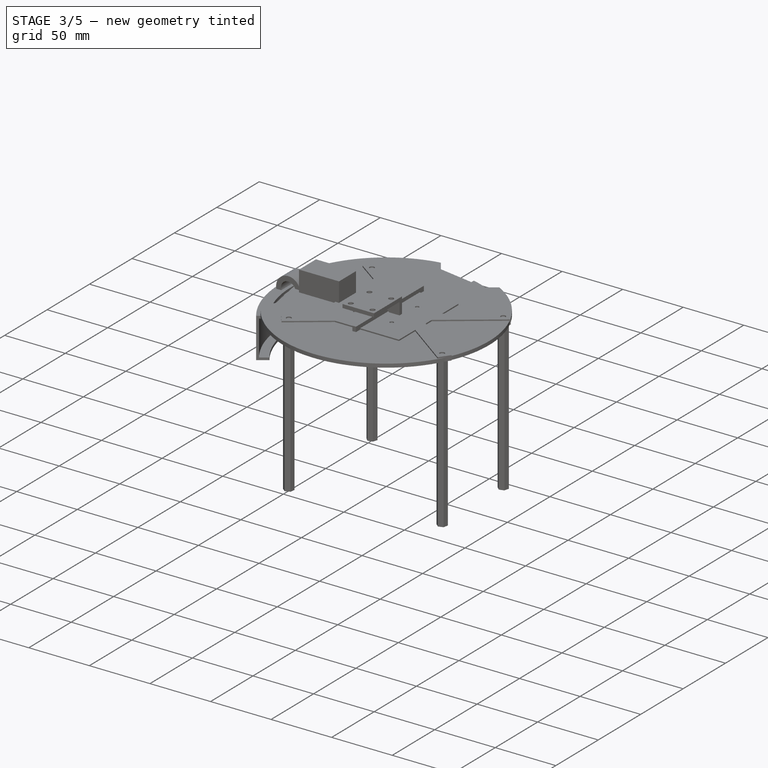
[diagram: stage 3 of 5 — iso view after this stage's code; geometry added in this stage tinted green]
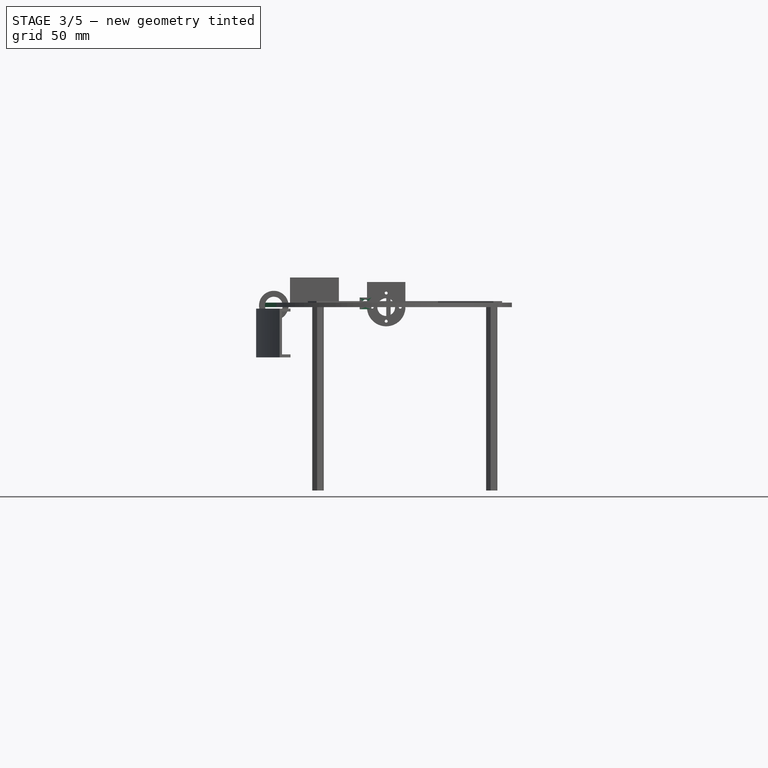
[diagram: stage 3 of 5 — front view after this stage's code; geometry added in this stage tinted green]
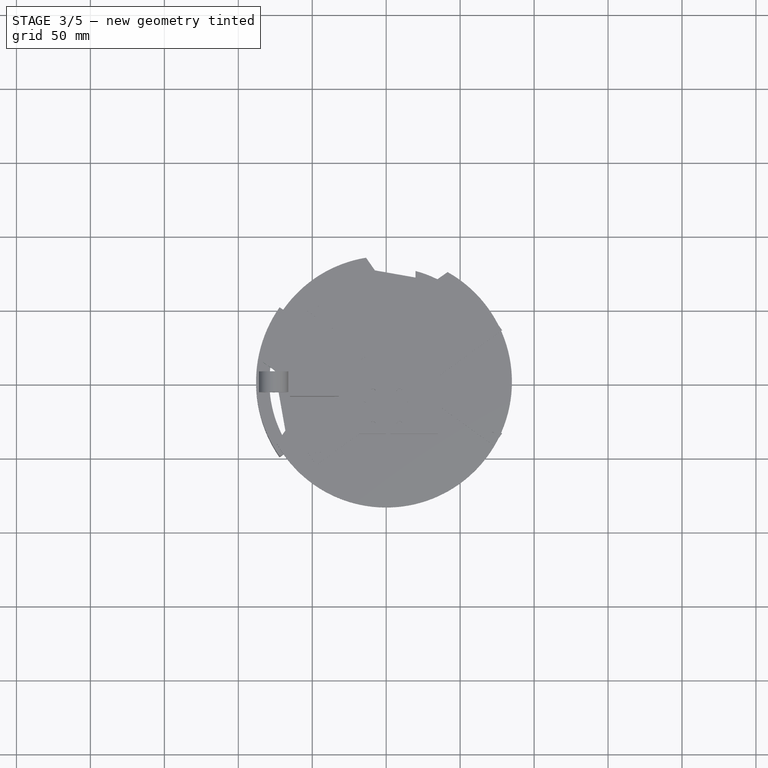
[diagram: stage 3 of 5 — top view after this stage's code; geometry added in this stage tinted green]
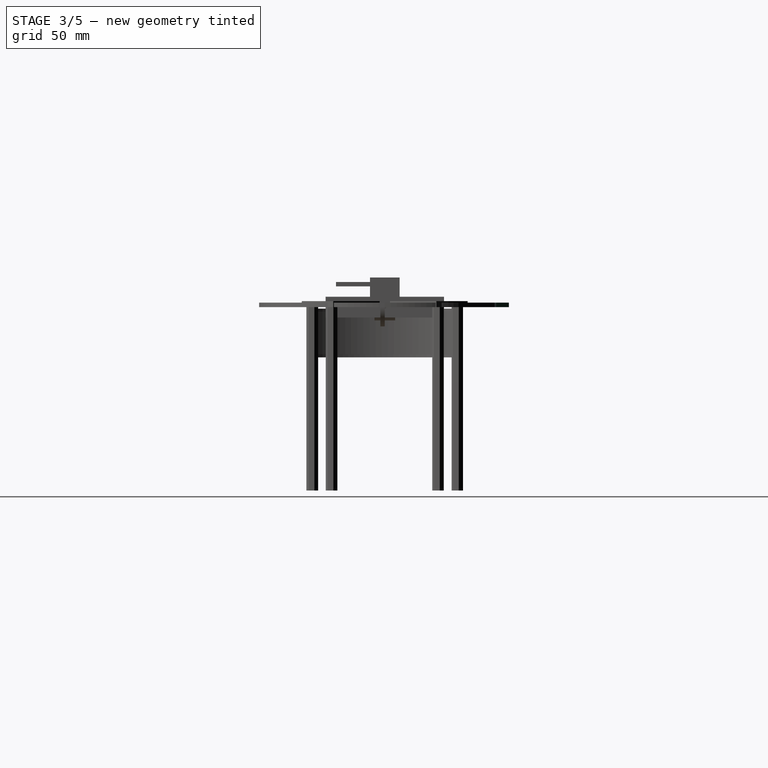
[diagram: stage 3 of 5 — right view after this stage's code; geometry added in this stage tinted green]
FEATURE [Sketcher::SketchObject] Sketch001
  ArcFitTolerance = 0
  AttachmentSupport = -> [Pad]
  ExternalGeometry = -> [Pad]
  FullyConstrained = false
  MakeInternals = false
  MapMode = 5
  Placement = pos=(0,0,3) rot=(0,0,1;0rad)
  sketch-geometry (7):
    g0: LineSegment StartX=-10.6686 StartY=100.741 StartZ=0 EndX=44.4806 EndY=91.0164 EndZ=0
    g1: LineSegment StartX=44.4806 StartY=91.0164 StartZ=0 EndX=41.5109 EndY=74.1744 EndZ=0
    g2: LineSegment StartX=32.942 StartY=68.1744 StartZ=0 EndX=-7.63834 EndY=75.3298 EndZ=0
    g3: LineSegment StartX=-13.6383 StartY=83.8987 StartZ=0 EndX=-10.6686 EndY=100.741 EndZ=0
    g4: LineSegment StartX=32.942 StartY=68.1744 StartZ=0 EndX=41.5109 EndY=74.1744 EndZ=0
    g5: LineSegment StartX=-13.6383 StartY=83.8987 StartZ=0 EndX=-7.63834 EndY=75.3298 EndZ=0
    g6: LineSegment [constr] StartX=-98.5042 StartY=90.5189 StartZ=0 EndX=89.0462 EndY=57.4487 EndZ=0
  constraints (18):
    c: Coincident(g0,g1)
    c: Coincident(g3,g0)
    c: Coincident(g4,g2)
    c: Coincident(g4,g1)
    c: Coincident(g5,g3)
    c: Coincident(g5,g2)
    c: Angle(g4,g2) = 2.35619
    c: Angle(g2,g5) = 2.35619
    c: DistanceX(g3,g2) = 6
    c: Angle(g6,g-1) = 0.174533
    c: Parallel(g2,g6)
    c: Parallel(g0,g2)
    c: Perpendicular(g6,g1)
    c: Equal(g1,g3)
    c: Parallel(g1,g3)
    c: PointOnObject(g3,g-3)
    c: PointOnObject(g1,g-3)
    c: Distance(g0) = 56
FEATURE [PartDesign::Pocket] Pocket
  BaseFeature = -> Pad
  Direction = (0,0,-1)
  Length = 5
  Length2 = 5
  Profile = -> Sketch001
  ReferenceAxis = -> Sketch001 [N_Axis]
  Suppressed = false
  Type = 1
FEATURE [PartDesign::PolarPattern] PolarPattern
  Angle = 110
  Axis = -> Sketch001 [N_Axis]
  BaseFeature = -> Pocket
  Mode = 0
  Occurrences = 2
  Offset = 120
  Originals = -> [Pocket]
  Suppressed = false
  TransformMode = 0
FEATURE [Sketcher::SketchObject] Sketch074
  ArcFitTolerance = 0
  AttachmentSupport = -> [XY_Plane229]
  FullyConstrained = true
  MakeInternals = false
  MapMode = 5
  sketch-geometry (1):
    g0: Circle CenterX=0 CenterY=0 CenterZ=0 NormalX=0 NormalY=0 NormalZ=1 AngleXU=0 Radius=12
  constraints (2):
    c: Diameter(g0) = 24
    c: Coincident(g0,g-1)
FEATURE [PartDesign::Pad] Pad051
  Direction = (0,0,1)
  Length = 56.5
  Length2 = 10
  Profile = -> Sketch074
  ReferenceAxis = -> Sketch074 [N_Axis]
  Suppressed = false
  Type = 0
FEATURE [Sketcher::SketchObject] Sketch075
  ArcFitTolerance = 0
  AttachmentSupport = -> [XY_Plane230]
  FullyConstrained = true
  MakeInternals = false
  MapMode = 5
  sketch-geometry (1):
    g0: Circle CenterX=0 CenterY=0 CenterZ=0 NormalX=0 NormalY=0 NormalZ=1 AngleXU=0 Radius=12
  constraints (2):
    c: Diameter(g0) = 24
    c: Coincident(g0,g-1)
FEATURE [PartDesign::Pad] Pad052
  Direction = (0,0,1)
  Length = 56.5
  Length2 = 10
  Profile = -> Sketch075
  ReferenceAxis = -> Sketch075 [N_Axis]
  Suppressed = false
  Type = 0
FEATURE [Sketcher::SketchObject] Sketch077
  ArcFitTolerance = 0
  AttachmentSupport = -> [XY_Plane232]
  FullyConstrained = true
  MakeInternals = false
  MapMode = 5
  sketch-geometry (1):
    g0: Circle CenterX=0 CenterY=0 CenterZ=0 NormalX=0 NormalY=0 NormalZ=1 AngleXU=0 Radius=12
  constraints (2):
    c: Diameter(g0) = 24
    c: Coincident(g0,g-1)
FEATURE [PartDesign::Pad] Pad054
  Direction = (0,0,1)
  Length = 56.5
  Length2 = 28.25
  Profile = -> Sketch077
  ReferenceAxis = -> Sketch077 [N_Axis]
  Suppressed = false
  Type = 0
FEATURE [Sketcher::SketchObject] Sketch081
  ArcFitTolerance = 0
  AttachmentSupport = -> [XY_Plane235]
  FullyConstrained = true
  MakeInternals = false
  MapMode = 5
  sketch-geometry (1):
    g0: Circle CenterX=0 CenterY=0 CenterZ=0 NormalX=0 NormalY=0 NormalZ=1 AngleXU=0 Radius=12
  constraints (2):
    c: Diameter(g0) = 24
    c: Coincident(g0,g-1)
FEATURE [PartDesign::Pad] Pad057
  Direction = (0,0,1)
  Length = 56.5
  Length2 = 10
  Profile = -> Sketch081
  ReferenceAxis = -> Sketch081 [N_Axis]
  Suppressed = false
  Type = 0
FEATURE [Sketcher::SketchObject] Sketch090
  ArcFitTolerance = 0
  AttachmentSupport = -> [Pad065]
  ExternalGeometry = -> [Pad065]
  FullyConstrained = true
  MakeInternals = false
  MapMode = 5
  Placement = pos=(0,7.9e-15,18) rot=(0,0,1;3.14159rad)
  sketch-geometry (4):
    g0: Circle CenterX=-9 CenterY=7 CenterZ=0 NormalX=0 NormalY=0 NormalZ=1 AngleXU=0 Radius=2
    g1: Circle CenterX=9 CenterY=7 CenterZ=0 NormalX=0 NormalY=0 NormalZ=1 AngleXU=0 Radius=2
    g2: Circle CenterX=-9 CenterY=29 CenterZ=0 NormalX=0 NormalY=0 NormalZ=1 AngleXU=0 Radius=2
    g3: Circle CenterX=9 CenterY=29 CenterZ=0 NormalX=0 NormalY=0 NormalZ=1 AngleXU=0 Radius=2
  constraints (10):
    c: Diameter(g2) = 4
    c: Diameter(g3) = 4
    c: Diameter(g1) = 4
    c: Diameter(g0) = 4
    c: Symmetric(g2,g3,g-2)
    c: Symmetric(g0,g1,g-2)
    c: Vertical(g2,g0)
    c: DistanceX(g-4,g2) = 4
    c: DistanceY(g2,g-4) = 4
    c: DistanceY(g-4,g0) = 4
FEATURE [PartDesign::Pocket] Pocket032
  BaseFeature = -> Pad065
  Direction = (0,0,-1)
  Length = 5
  Length2 = 5
  Placement = pos=(0,0,0) rot=(1,0,0;1.5708rad)
  Profile = -> Sketch090
  ReferenceAxis = -> Sketch090 [N_Axis]
  Suppressed = false
  Type = 1
FEATURE [Sketcher::SketchObject] Sketch091
  ArcFitTolerance = 0
  AttachmentSupport = -> [Pocket032]
  FullyConstrained = true
  MakeInternals = false
  MapMode = 5
  Placement = pos=(0,8e-16,0) rot=(-1,0,0;1.5708rad)
  sketch-geometry (1):
    g0: Circle CenterX=0 CenterY=9.5 CenterZ=0 NormalX=0 NormalY=0 NormalZ=1 AngleXU=0 Radius=1
  constraints (3):
    c: PointOnObject(g0,g-2)
    c: Diameter(g0) = 2
    c: DistanceY(g-1,g0) = 9.5
FEATURE [PartDesign::Pocket] Pocket033
  BaseFeature = -> Pocket032
  Direction = (0,-1,-2e-16)
  Length = 5
  Length2 = 5
  Placement = pos=(0,0,0) rot=(1,0,0;1.5708rad)
  Profile = -> Sketch091
  ReferenceAxis = -> Sketch091 [N_Axis]
  Suppressed = false
  Type = 1
FEATURE [PartDesign::PolarPattern] PolarPattern013
  Angle = 360
  Axis = -> Sketch091 [N_Axis]
  BaseFeature = -> Pocket033
  Mode = 0
  Occurrences = 4
  Offset = 120
  Originals = -> [Pocket033]
  Placement = pos=(0,0,0) rot=(1,0,0;1.5708rad)
  Suppressed = false
  TransformMode = 0
FEATURE [Sketcher::SketchObject] Sketch095
  ArcFitTolerance = 0
  AttachmentSupport = -> [Pocket034]
  FullyConstrained = true
  MakeInternals = false
  MapMode = 5
  Placement = pos=(0,8e-16,0) rot=(-1,0,0;1.5708rad)
  sketch-geometry (1):
    g0: Circle CenterX=0 CenterY=9.5 CenterZ=0 NormalX=0 NormalY=0 NormalZ=1 AngleXU=0 Radius=1
  constraints (3):
    c: PointOnObject(g0,g-2)
    c: Diameter(g0) = 2
    c: DistanceY(g-1,g0) = 9.5
FEATURE [PartDesign::Pocket] Pocket035
  BaseFeature = -> Pocket034
  Direction = (0,-1,-2e-16)
  Length = 5
  Length2 = 5
  Placement = pos=(0,0,0) rot=(1,0,0;1.5708rad)
  Profile = -> Sketch095
  ReferenceAxis = -> Sketch095 [N_Axis]
  Suppressed = false
  Type = 1
FEATURE [PartDesign::PolarPattern] PolarPattern014
  Angle = 360
  Axis = -> Sketch095 [N_Axis]
  BaseFeature = -> Pocket035
  Mode = 0
  Occurrences = 4
  Offset = 120
  Originals = -> [Pocket035]
  Placement = pos=(0,0,0) rot=(1,0,0;1.5708rad)
  Suppressed = false
  TransformMode = 0
FEATURE [PartDesign::Body] Body034  label="Dribbler motor"
  AllowCompound = false
  Group = -> [Sketch082,Pad058,Sketch254,Pad097]
  Origin = -> Origin237
  Placement = pos=(-48.5,35,17.9) rot=(0.707107,0,0.707107;3.14159rad)
  Tip = -> Pad097
FEATURE [Sketcher::SketchObject] Sketch257
  ArcFitTolerance = 0
  AttachmentSupport = -> [Pad052]
  FullyConstrained = true
  MakeInternals = false
  MapMode = 5
  Placement = pos=(0,0,0) rot=(1,0,0;3.14159rad)
  sketch-geometry (1):
    g0: Circle CenterX=0 CenterY=0 CenterZ=0 NormalX=0 NormalY=0 NormalZ=1 AngleXU=0 Radius=2
  constraints (2):
    c: Coincident(g0,g-1)
    c: Diameter(g0) = 4
FEATURE [PartDesign::Pad] Pad099
  BaseFeature = -> Pad052
  Direction = (0,0,-1)
  Length = 17.5
  Length2 = 10
  Profile = -> Sketch257
  ReferenceAxis = -> Sketch257 [N_Axis]
  Suppressed = false
  Type = 0
FEATURE [PartDesign::Body] Body029  label="Moteur 1"
  AllowCompound = false
  Group = -> [Sketch075,Pad052,Sketch257,Pad099]
  Origin = -> Origin230
  Placement = pos=(-41.8711,59.7981,-2) rot=(-0.217607,0.690162,-0.690162;2.71306rad)
  Tip = -> Pad099
FEATURE [Sketcher::SketchObject] Sketch258
  ArcFitTolerance = 0
  AttachmentSupport = -> [Pad054]
  FullyConstrained = true
  MakeInternals = false
  MapMode = 5
  Placement = pos=(0,0,0) rot=(1,0,0;3.14159rad)
  sketch-geometry (1):
    g0: Circle CenterX=0 CenterY=0 CenterZ=0 NormalX=0 NormalY=0 NormalZ=1 AngleXU=0 Radius=2
  constraints (2):
    c: Coincident(g0,g-1)
    c: Diameter(g0) = 4
FEATURE [PartDesign::Pad] Pad100
  BaseFeature = -> Pad054
  Direction = (0,0,-1)
  Length = 17.5
  Length2 = 10
  Profile = -> Sketch258
  ReferenceAxis = -> Sketch258 [N_Axis]
  Suppressed = false
  Type = 0
FEATURE [PartDesign::Body] Body031  label="Moteur 2"
  AllowCompound = false
  Group = -> [Sketch077,Pad054,Sketch258,Pad100]
  Origin = -> Origin232
  Placement = pos=(41.8711,59.7981,-8) rot=(0.913318,-0.287968,-0.287968;1.66134rad)
  Tip = -> Pad100
FEATURE [App::Part] Part006  label="Motor assembly 2"
  Group = -> [Body031,Body039,OmniWheel057]
  Origin = -> Origin039
  Placement = pos=(1,-4,0) rot=(0,0,-1;6.24828rad)
FEATURE [Sketcher::SketchObject] Sketch259
  ArcFitTolerance = 0
  AttachmentSupport = -> [Pad051]
  FullyConstrained = true
  MakeInternals = false
  MapMode = 5
  Placement = pos=(0,0,0) rot=(1,0,0;3.14159rad)
  sketch-geometry (1):
    g0: Circle CenterX=0 CenterY=0 CenterZ=0 NormalX=0 NormalY=0 NormalZ=1 AngleXU=0 Radius=2
  constraints (2):
    c: Coincident(g0,g-1)
    c: Diameter(g0) = 4
FEATURE [PartDesign::Pad] Pad101
  BaseFeature = -> Pad051
  Direction = (0,0,-1)
  Length = 17.5
  Length2 = 10
  Profile = -> Sketch259
  ReferenceAxis = -> Sketch259 [N_Axis]
  Suppressed = false
  Type = 0
FEATURE [PartDesign::Body] Body028  label="Moteur 4"
  AllowCompound = false
  Group = -> [Sketch074,Pad051,Sketch259,Pad101]
  Origin = -> Origin229
  Placement = pos=(-41.8711,-59.7981,-8) rot=(-0.913318,0.287968,-0.287968;1.66134rad)
  Tip = -> Pad101
FEATURE [App::Part] Part008  label="Motor assembly 4"
  Group = -> [Body028,Body041,OmniWheel059]
  Origin = -> Origin041
  Placement = pos=(-1,4,0) rot=(0,0,1;0.034907rad)
FEATURE [Sketcher::SketchObject] Sketch260
  ArcFitTolerance = 0
  AttachmentSupport = -> [Pad057]
  FullyConstrained = true
  MakeInternals = false
  MapMode = 5
  Placement = pos=(0,0,0) rot=(1,0,0;3.14159rad)
  sketch-geometry (1):
    g0: Circle CenterX=0 CenterY=0 CenterZ=0 NormalX=0 NormalY=0 NormalZ=1 AngleXU=0 Radius=2
  constraints (2):
    c: Coincident(g0,g-1)
    c: Diameter(g0) = 4
FEATURE [PartDesign::Pad] Pad102
  BaseFeature = -> Pad057
  Direction = (0,0,-1)
  Length = 17.5
  Length2 = 10
  Profile = -> Sketch260
  ReferenceAxis = -> Sketch260 [N_Axis]
  Suppressed = false
  Type = 0
FEATURE [Sketcher::SketchObject] Sketch264
  ArcFitTolerance = 0
  AttachmentSupport = -> [Pad104]
  ExternalGeometry = -> [Pad104]
  FullyConstrained = true
  MakeInternals = false
  MapMode = 5
  Placement = pos=(13,0,0) rot=(0.707107,0,0.707107;3.14159rad)
  sketch-geometry (5):
    g0: LineSegment StartX=0 StartY=0 StartZ=0 EndX=18 EndY=-2e-15 EndZ=0
    g1: LineSegment StartX=18 StartY=-2e-15 StartZ=0 EndX=18 EndY=20 EndZ=0
    g2: LineSegment StartX=0 StartY=0 StartZ=0 EndX=0 EndY=3 EndZ=0
    g3: LineSegment StartX=0 StartY=3 StartZ=0 EndX=14 EndY=20 EndZ=0
    g4: LineSegment StartX=14 StartY=20 StartZ=0 EndX=18 EndY=20 EndZ=0
  constraints (12):
    c: Coincident(g0,g-1)
    c: Coincident(g0,g-5)
    c: Coincident(g1,g0)
    c: Vertical(g1)
    c: Coincident(g2,g0)
    c: Coincident(g2,g-3)
    c: Coincident(g3,g2)
    c: PointOnObject(g3,g-4)
    c: Coincident(g4,g3)
    c: Coincident(g4,g1)
    c: Horizontal(g4)
    c: DistanceY(g1,g1) = 20
FEATURE [PartDesign::Pad] Pad105
  BaseFeature = -> Pad104
  Direction = (1,0,-2e-16)
  Length = 3
  Length2 = 10
  Placement = pos=(0,0,0) rot=(1,0,0;1.5708rad)
  Profile = -> Sketch264
  ReferenceAxis = -> Sketch264 [N_Axis]
  Suppressed = false
  Type = 0
FEATURE [Sketcher::SketchObject] Sketch278
  ArcFitTolerance = 0
  AttachmentSupport = -> [XY_Plane365]
  FullyConstrained = true
  MakeInternals = false
  MapMode = 5
  sketch-geometry (11):
    g0: LineSegment StartX=13.4834 StartY=6.80799 StartZ=0 EndX=29.8226 EndY=-18.3521 EndZ=0
    g1: LineSegment StartX=-10 StartY=-11 StartZ=0 EndX=-10 EndY=-6 EndZ=0
    g2: LineSegment StartX=-10 StartY=-6 StartZ=0 EndX=-18 EndY=-6 EndZ=0
    g3: LineSegment StartX=-16 StartY=-4 StartZ=0 EndX=-3.15946 EndY=-4 EndZ=0
    g4: LineSegment StartX=10.07 StartY=-4.4605 StartZ=0 EndX=22.2745 EndY=-23.2539 EndZ=0
    g5: LineSegment StartX=22.2745 StartY=-23.2539 StartZ=0 EndX=29.8226 EndY=-18.3521 EndZ=0
    g6: LineSegment StartX=3 StartY=0 StartZ=0 EndX=13.4834 EndY=6.80799 EndZ=0
    g7: LineSegment StartX=-10 StartY=-11 StartZ=0 EndX=0 EndY=-11 EndZ=0
    g8: LineSegment StartX=0 StartY=-11 StartZ=0 EndX=10.07 EndY=-4.4605 EndZ=0
    g9: LineSegment StartX=-18 StartY=-6 StartZ=0 EndX=-16 EndY=-4 EndZ=0
    g10: LineSegment StartX=-3.15946 StartY=-4 StartZ=0 EndX=3 EndY=0 EndZ=0
  constraints (33):
    c: Vertical(g1)
    c: DistanceY(g1,g1) = 5
    c: Coincident(g2,g1)
    c: Horizontal(g2)
    c: DistanceX(g2,g2) = 8
    c: Coincident(g5,g4)
    c: Coincident(g5,g0)
    c: Perpendicular(g0,g5)
    c: Perpendicular(g4,g5)
    c: Distance(g0) = 30
    c: PointOnObject(g6,g-1)
    c: Coincident(g6,g0)
    c: Parallel(g6,g5)
    c: Distance(g5) = 9
    c: Coincident(g7,g1)
    c: Horizontal(g7)
    c: Coincident(g8,g7)
    c: Coincident(g4,g8)
    c: Parallel(g6,g8)
    c: DistanceX(g7,g7) = 10
    c: Distance(g6) = 12.5
    c: DistanceY(g1) = -6
    c: Coincident(g9,g2)
    c: Coincident(g9,g3)
    c: Angle(g9,g3) = 2.35619
    c: Horizontal(g3)
    c: Coincident(g10,g6)
    c: Parallel(g10,g6)
    c: DistanceX(g-1,g6) = 3
    c: Angle(g8,g7) = 2.56563
    c: DistanceY(g3,g-1) = 4
    c: Coincident(g3,g10)
    c: DistanceX(g1,g-1) = 10
FEATURE [PartDesign::Pad] Pad115
  Direction = (0,0,1)
  Length = 2.5
  Length2 = 10
  Profile = -> Sketch278
  ReferenceAxis = -> Sketch278 [N_Axis]
  Suppressed = false
  Type = 0
FEATURE [PartDesign::Body] Body121  label="Roll left support001"
  AllowCompound = false
  Group = -> [Sketch341,Pad160,Binder058,Pocket153,Sketch342,Pad161]
  Origin = -> Origin405
  Placement = pos=(-62,48,1) rot=(0,0,1;0rad)
  Tip = -> Pad161
FEATURE [Sketcher::SketchObject] Sketch343
  ArcFitTolerance = 0
  FullyConstrained = false
  MakeInternals = false
  MapMode = 5
  Placement = pos=(0,-6,0) rot=(1,0,0;1.5708rad)
  sketch-geometry (7):
    g0: LineSegment StartX=-18 StartY=6.5 StartZ=0 EndX=-10 EndY=6.5 EndZ=0
    g1: LineSegment StartX=-10 StartY=6.5 StartZ=0 EndX=-10 EndY=-1.5 EndZ=0
    g2: LineSegment StartX=-10 StartY=-1.5 StartZ=0 EndX=-18 EndY=-1.5 EndZ=0
    g3: LineSegment StartX=-18 StartY=-1.5 StartZ=0 EndX=-18 EndY=6.5 EndZ=0
    g4: Circle CenterX=-14 CenterY=2.5 CenterZ=0 NormalX=0 NormalY=0 NormalZ=1 AngleXU=0 Radius=2.5
    g5: LineSegment [constr] StartX=-18 StartY=6.5 StartZ=0 EndX=-14 EndY=2.5 EndZ=0
    g6: LineSegment [constr] StartX=-14 StartY=2.5 StartZ=0 EndX=-10 EndY=-1.5 EndZ=0
  constraints (17):
    c: Coincident(g0,g1)
    c: Coincident(g1,g2)
    c: Coincident(g2,g3)
    c: Coincident(g3,g0)
    c: Horizontal(g0)
    c: Horizontal(g2)
    c: Vertical(g1)
    c: Vertical(g3)
    c: Equal(g2,g1)
    c: Diameter(g4) = 5
    c: Coincident(g5,g0)
    c: Coincident(g5,g4)
    c: Coincident(g6,g4)
    c: Coincident(g6,g1)
    c: Parallel(g5,g6)
    c: Equal(g5,g6)
    c: DistanceX(g2,g2) = 8
FEATURE [PartDesign::Pad] Pad162
  BaseFeature = -> Pad115
  Direction = (0,-1,2e-16)
  Length = 5
  Length2 = 10
  Profile = -> Sketch343
  ReferenceAxis = -> Sketch343 [N_Axis]
  Suppressed = false
  Type = 0
FEATURE [PartDesign::Pocket] Pocket154
  BaseFeature = -> Pad162
  Direction = (0,0,-1)
  Length = 5
  Length2 = 5
  Profile = -> Binder059
  Suppressed = false
  Type = 1
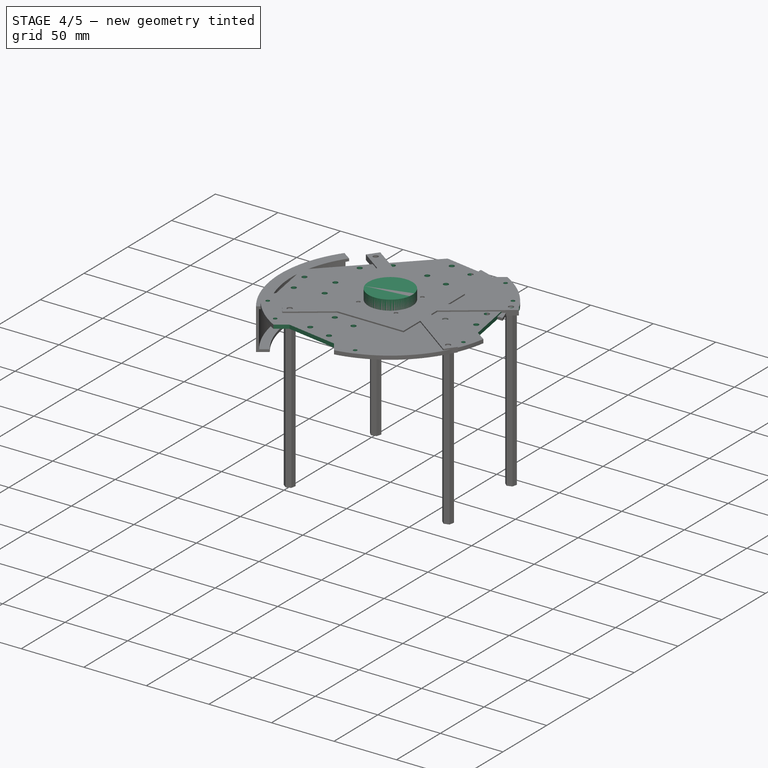
[diagram: stage 4 of 5 — iso view after this stage's code; geometry added in this stage tinted green]
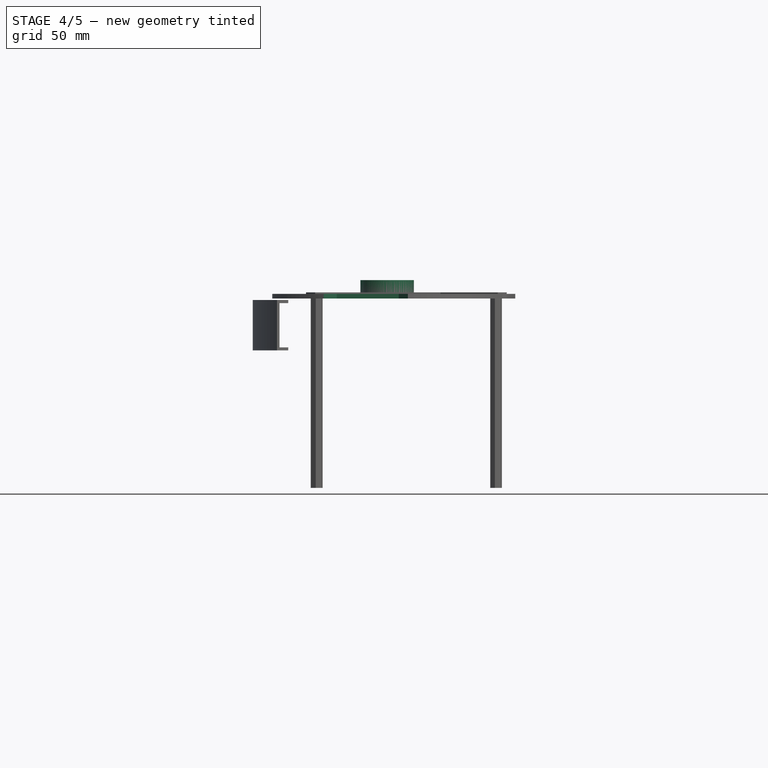
[diagram: stage 4 of 5 — front view after this stage's code; geometry added in this stage tinted green]
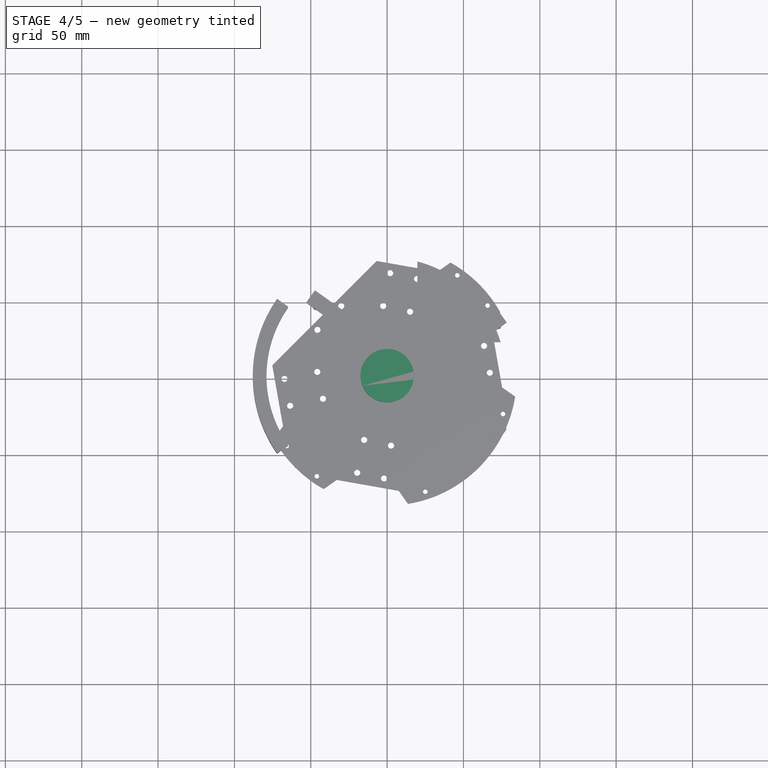
[diagram: stage 4 of 5 — top view after this stage's code; geometry added in this stage tinted green]
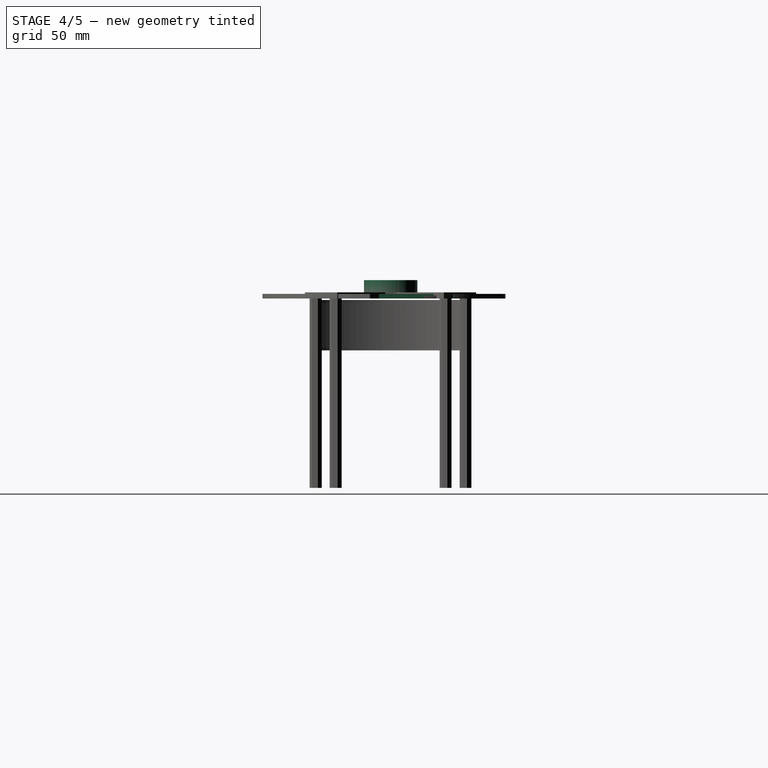
[diagram: stage 4 of 5 — right view after this stage's code; geometry added in this stage tinted green]
FEATURE [Sketcher::SketchObject] Sketch015
  ArcFitTolerance = 0
  AttachmentSupport = -> [PolarPattern]
  FullyConstrained = true
  MakeInternals = false
  MapMode = 5
  Placement = pos=(0,0,3) rot=(0,0,1;0rad)
  sketch-geometry (4):
    g0: LineSegment StartX=-111 StartY=31 StartZ=0 EndX=-31 EndY=111 EndZ=0
    g1: LineSegment StartX=-31 StartY=111 StartZ=0 EndX=-1 EndY=81 EndZ=0
    g2: LineSegment StartX=-1 StartY=81 StartZ=0 EndX=-81 EndY=1 EndZ=0
    g3: LineSegment StartX=-81 StartY=1 StartZ=0 EndX=-111 EndY=31 EndZ=0
  constraints (12):
    c: Coincident(g0,g1)
    c: Coincident(g1,g2)
    c: Coincident(g2,g3)
    c: Coincident(g3,g0)
    c: Equal(g3,g1)
    c: Equal(g0,g2)
    c: Angle(g3,g0) = 1.5708
    c: DistanceX(g2,g-1) = 81
    c: DistanceY(g-1,g1) = 81
    c: DistanceX(g0,g1) = 30
    c: DistanceX(g2,g1) = 80
    c: Angle(g-1,g2) = 0.785398
FEATURE [PartDesign::Pocket] Pocket004
  BaseFeature = -> PolarPattern
  Direction = (0,0,-1)
  Length = 5
  Length2 = 5
  Profile = -> Sketch015
  ReferenceAxis = -> Sketch015 [N_Axis]
  Suppressed = false
  Type = 1
FEATURE [Sketcher::SketchObject] Sketch061
  ArcFitTolerance = 0
  FullyConstrained = true
  MakeInternals = false
  MapMode = 5
  Placement = pos=(0,0,2) rot=(0,0,1;0rad)
  sketch-geometry (1):
    g0: Circle CenterX=0 CenterY=0 CenterZ=0 NormalX=0 NormalY=0 NormalZ=1 AngleXU=0 Radius=12.5
  constraints (2):
    c: Coincident(g0,g-1)
    c: Diameter(g0) = 25
FEATURE [PartDesign::Pocket] Pocket019
  BaseFeature = -> Pocket004
  Direction = (0,0,-1)
  Length = 5
  Length2 = 5
  Profile = -> Sketch061
  ReferenceAxis = -> Sketch061 [N_Axis]
  Suppressed = false
  Type = 4
FEATURE [PartDesign::Pocket] Pocket031
  BaseFeature = -> Pocket019
  Direction = (0,0,-1)
  Length = 5
  Length2 = 5
  Profile = -> Binder
  Reversed = true
  Suppressed = false
  Type = 1
FEATURE [PartDesign::Pocket] Pocket038
  BaseFeature = -> Pocket031
  Direction = (0,0,-1)
  Length = 5
  Length2 = 5
  Profile = -> Binder005
  Reversed = true
  Suppressed = false
  Type = 1
FEATURE [PartDesign::Pocket] Pocket039
  BaseFeature = -> Pocket038
  Direction = (0,0,-1)
  Length = 5
  Length2 = 5
  Profile = -> Binder006
  Reversed = true
  Suppressed = false
  Type = 1
FEATURE [PartDesign::Pocket] Pocket040
  BaseFeature = -> Pocket039
  Direction = (0,0,-1)
  Length = 5
  Length2 = 5
  Profile = -> Binder007
  Reversed = true
  Suppressed = false
  Type = 1
FEATURE [PartDesign::Pocket] Pocket050
  BaseFeature = -> Pocket040
  Direction = (0,0,-1)
  Length = 5
  Length2 = 5
  Profile = -> Binder008
  Suppressed = false
  Type = 1
FEATURE [Sketcher::SketchObject] Sketch082
  ArcFitTolerance = 0
  AttachmentSupport = -> [XZ_Plane237]
  FullyConstrained = true
  MakeInternals = false
  MapMode = 5
  Placement = pos=(0,0,0) rot=(1,0,0;1.5708rad)
  sketch-geometry (1):
    g0: Circle CenterX=0 CenterY=0 CenterZ=0 NormalX=0 NormalY=0 NormalZ=1 AngleXU=0 Radius=12
  constraints (2):
    c: Coincident(g0,g-1)
    c: Diameter(g0) = 24
FEATURE [PartDesign::Pad] Pad058
  Direction = (0,-1,2e-16)
  Length = 50
  Length2 = 10
  Placement = pos=(0,0,0) rot=(1,0,0;1.5708rad)
  Profile = -> Sketch082
  ReferenceAxis = -> Sketch082 [N_Axis]
  Reversed = true
  Suppressed = false
  Type = 0
FEATURE [Sketcher::SketchObject] Sketch083
  ArcFitTolerance = 0
  AttachmentSupport = -> [XZ_Plane238]
  FullyConstrained = true
  MakeInternals = false
  MapMode = 5
  Placement = pos=(0,0,0) rot=(1,0,0;1.5708rad)
  sketch-geometry (1):
    g0: Circle CenterX=0 CenterY=0 CenterZ=0 NormalX=0 NormalY=0 NormalZ=1 AngleXU=0 Radius=8
  constraints (2):
    c: Coincident(g0,g-1)
    c: Diameter(g0) = 16
FEATURE [PartDesign::Pad] Pad059
  Direction = (0,-1,2e-16)
  Length = 50.5
  Length2 = 10
  Placement = pos=(0,0,0) rot=(1,0,0;1.5708rad)
  Profile = -> Sketch083
  ReferenceAxis = -> Sketch083 [N_Axis]
  Reversed = true
  Suppressed = false
  Type = 0
FEATURE [PartDesign::Pocket] Pocket124
  BaseFeature = -> PolarPattern018
  Direction = (-8e-16,-4e-16,-1)
  Length = 5
  Length2 = 5
  Placement = pos=(0,0,0) rot=(1,0,0;1.5708rad)
  Profile = -> Binder051
  Suppressed = false
  Type = 1
FEATURE [PartDesign::Body] Body050  label="Dribbler support"
  AllowCompound = false
  Group = -> [Sketch121,Pad085,Sketch122,Pad086,Sketch123,Pocket048,Sketch124,Pocket049,PolarPattern018,Binder051,Pocket124]
  Origin = -> Origin255
  Placement = pos=(-48.5401,-17.9599,18) rot=(1,0,0;3.14159rad)
  Tip = -> Pocket124
FEATURE [Sketcher::SketchObject] Sketch126
  ArcFitTolerance = 0
  FullyConstrained = false
  MakeInternals = false
  MapMode = 5
  Placement = pos=(0,0,2) rot=(0,0,1;0rad)
  sketch-geometry (8):
    g0: Circle CenterX=-65.799 CenterY=-46 CenterZ=0 NormalX=0 NormalY=0 NormalZ=1 AngleXU=0 Radius=1.5
    g1: Circle CenterX=-46 CenterY=-65.799 CenterZ=0 NormalX=0 NormalY=0 NormalZ=1 AngleXU=0 Radius=1.5
    g2: LineSegment [constr] StartX=103.375 StartY=103.375 StartZ=0 EndX=-110.971 EndY=-110.971 EndZ=0
    g3: LineSegment [constr] StartX=0 StartY=0 StartZ=0 EndX=106.113 EndY=-106.113 EndZ=0
    g4: Circle CenterX=25 CenterY=-75.9117 CenterZ=0 NormalX=0 NormalY=0 NormalZ=1 AngleXU=0 Radius=1.5
    g5: Circle CenterX=75.9117 CenterY=-25 CenterZ=0 NormalX=0 NormalY=0 NormalZ=1 AngleXU=0 Radius=1.5
    g6: Circle CenterX=65.799 CenterY=46 CenterZ=0 NormalX=0 NormalY=0 NormalZ=1 AngleXU=0 Radius=1.5
    g7: Circle CenterX=46 CenterY=65.799 CenterZ=0 NormalX=0 NormalY=0 NormalZ=1 AngleXU=0 Radius=1.5
  constraints (19):
    c: Diameter(g1) = 3
    c: Diameter(g0) = 3
    c: Angle(g2,g-1) = 2.35619
    c: Symmetric(g1,g0,g2)
    c: Distance(g1,g2) = 14
    c: Distance(g1,g-2) = 46
    c: PointOnObject(g-1,g2)
    c: Coincident(g3,g-1)
    c: Perpendicular(g2,g3)
    c: Diameter(g7) = 3
    c: Diameter(g6) = 3
    c: Diameter(g5) = 3
    c: Diameter(g4) = 3
    c: Symmetric(g4,g5,g3)
    c: Symmetric(g7,g6,g2)
    c: Distance(g4,g3) = 36
    c: Distance(g6,g2) = 14
    c: Distance(g4,g-2) = 25
    c: Distance(g7,g-2) = 46
FEATURE [PartDesign::Pocket] Pocket055
  BaseFeature = -> Pocket050
  Direction = (0,0,-1)
  Length = 50
  Length2 = 5
  Profile = -> Sketch126
  ReferenceAxis = -> Sketch126 [N_Axis]
  Suppressed = false
  Type = 4
FEATURE [PartDesign::PolarPattern] PolarPattern021
  Angle = 70
  Axis = -> Sketch001 [N_Axis]
  BaseFeature = -> Pocket055
  Mode = 0
  Occurrences = 2
  Offset = 120
  Originals = -> [Pocket]
  Reversed = true
  Suppressed = false
  TransformMode = 0
FEATURE [PartDesign::PolarPattern] PolarPattern022
  Angle = 360
  Axis = -> Sketch001 [N_Axis]
  BaseFeature = -> PolarPattern021
  Mode = 0
  Occurrences = 2
  Offset = 120
  Originals = -> [Pocket]
  Suppressed = false
  TransformMode = 0
FEATURE [PartDesign::Body] Body046  label="Kicker plate"
  AllowCompound = false
  Group = -> [Sketch109,Pad076,Sketch253,Pocket123]
  Origin = -> Origin251
  Placement = pos=(-71,0,-8) rot=(0,0,1;0rad)
  Tip = -> Pocket123
FEATURE [Sketcher::SketchObject] Sketch254
  ArcFitTolerance = 0
  AttachmentSupport = -> [Pad058]
  FullyConstrained = true
  MakeInternals = false
  MapMode = 5
  Placement = pos=(0,50,0) rot=(-1,0,0;1.5708rad)
  sketch-geometry (1):
    g0: Circle CenterX=0 CenterY=0 CenterZ=0 NormalX=0 NormalY=0 NormalZ=1 AngleXU=0 Radius=2
  constraints (2):
    c: Coincident(g0,g-1)
    c: Diameter(g0) = 4
FEATURE [PartDesign::Pad] Pad097
  BaseFeature = -> Pad058
  Direction = (0,1,2e-16)
  Length = 17.5
  Length2 = 10
  Placement = pos=(0,0,0) rot=(1,0,0;1.5708rad)
  Profile = -> Sketch254
  ReferenceAxis = -> Sketch254 [N_Axis]
  Suppressed = false
  Type = 0
FEATURE [PartDesign::Body] Body033  label="Moteur 3"
  AllowCompound = false
  Group = -> [Sketch081,Pad057,Sketch260,Pad102]
  Origin = -> Origin235
  Placement = pos=(41.8711,-59.7981,-8) rot=(-0.913318,-0.287968,0.287968;1.66134rad)
  Tip = -> Pad102
FEATURE [App::Part] Part007  label="Motor assembly 3"
  Group = -> [Body033,Body040,OmniWheel058]
  Origin = -> Origin040
  Placement = pos=(1,4,0) rot=(0,0,1;6.24828rad)
FEATURE [Sketcher::SketchObject] Sketch261
  ArcFitTolerance = 0
  AttachmentSupport = -> [XY_Plane357]
  FullyConstrained = true
  MakeInternals = false
  MapMode = 5
  sketch-geometry (1):
    g0: Circle CenterX=0 CenterY=0 CenterZ=0 NormalX=0 NormalY=0 NormalZ=1 AngleXU=0 Radius=17.5
  constraints (2):
    c: Coincident(g0,g-1)
    c: Diameter(g0) = 35
FEATURE [PartDesign::Pad] Pad103
  Direction = (0,0,1)
  Length = 12
  Length2 = 10
  Profile = -> Sketch261
  ReferenceAxis = -> Sketch261 [N_Axis]
  Suppressed = false
  Type = 0
FEATURE [PartDesign::Body] Body038  label="Moteur support 1"
  AllowCompound = false
  Group = -> [Sketch084,Pad062,Sketch085,Pad063,Sketch086,Pocket029,Sketch087,Pocket030,PolarPattern012,Sketch263,Pad104,Sketch264,Pad105]
  Origin = -> Origin241
  Placement = pos=(-43.5918,62.2556,-2) rot=(0,0,1;0.610865rad)
  Tip = -> Pad105
FEATURE [App::Part] Part005  label="Motor assembly 1"
  Group = -> [OmniWheel054,Body029,Body038]
  Origin = -> Origin038
  Placement = pos=(-1,-4,-6) rot=(0,0,-1;0.034907rad)
FEATURE [App::Part] Part003  label="Powertrain"
  Group = -> [Part005,Part006,Part007,Part008]
  Origin = -> Origin034
  Placement = pos=(0,0,-11) rot=(0,0,1;0rad)
FEATURE [Sketcher::SketchObject] Sketch277
  ArcFitTolerance = 0
  AttachmentSupport = -> [Pad059]
  FullyConstrained = true
  MakeInternals = false
  MapMode = 5
  Placement = pos=(0,0,0) rot=(1,0,0;1.5708rad)
  sketch-geometry (1):
    g0: Circle CenterX=0 CenterY=0 CenterZ=0 NormalX=0 NormalY=0 NormalZ=1 AngleXU=0 Radius=2.25
  constraints (2):
    c: Coincident(g0,g-1)
    c: Diameter(g0) = 4.5
FEATURE [PartDesign::Pad] Pad114
  BaseFeature = -> Pad059
  Direction = (0,-1,2e-16)
  Length = 5
  Length2 = 10
  Placement = pos=(0,0,0) rot=(1,0,0;1.5708rad)
  Profile = -> Sketch277
  ReferenceAxis = -> Sketch277 [N_Axis]
  Suppressed = false
  Type = 0
FEATURE [Sketcher::SketchObject] Sketch284
  ArcFitTolerance = 0
  AttachmentSupport = -> [Pad114]
  FullyConstrained = true
  MakeInternals = false
  MapMode = 5
  Placement = pos=(0,50.5,0) rot=(-1,0,0;1.5708rad)
  sketch-geometry (1):
    g0: Circle CenterX=0 CenterY=0 CenterZ=0 NormalX=0 NormalY=0 NormalZ=1 AngleXU=0 Radius=2.25
  constraints (2):
    c: Coincident(g0,g-1)
    c: Diameter(g0) = 4.5
FEATURE [PartDesign::Pad] Pad119
  BaseFeature = -> Pad114
  Direction = (0,1,2e-16)
  Length = 21
  Length2 = 10
  Placement = pos=(0,0,0) rot=(1,0,0;1.5708rad)
  Profile = -> Sketch284
  ReferenceAxis = -> Sketch284 [N_Axis]
  Suppressed = false
  Type = 0
FEATURE [Sketcher::SketchObject] Sketch342
  ArcFitTolerance = 0
  AttachmentSupport = -> [Pocket153]
  ExternalGeometry = -> [Pocket153]
  FullyConstrained = true
  MakeInternals = false
  MapMode = 5
  Placement = pos=(0,-12.5,0) rot=(1,0,0;1.5708rad)
  sketch-geometry (7):
    g0: LineSegment StartX=-18 StartY=4 StartZ=0 EndX=-10 EndY=4 EndZ=0
    g1: LineSegment StartX=-10 StartY=4 StartZ=0 EndX=-10 EndY=-4 EndZ=0
    g2: LineSegment StartX=-10 StartY=-4 StartZ=0 EndX=-18 EndY=-4 EndZ=0
    g3: LineSegment StartX=-18 StartY=-4 StartZ=0 EndX=-18 EndY=4 EndZ=0
    g4: Circle CenterX=-14 CenterY=5.46461e-11 CenterZ=0 NormalX=0 NormalY=0 NormalZ=1 AngleXU=0 Radius=2.5
    g5: LineSegment [constr] StartX=-10 StartY=-4 StartZ=0 EndX=-14 EndY=5.46461e-11 EndZ=0
    g6: LineSegment [constr] StartX=-14 StartY=5.46461e-11 StartZ=0 EndX=-18 EndY=-4 EndZ=0
  constraints (19):
    c: Coincident(g0,g1)
    c: Coincident(g1,g2)
    c: Coincident(g2,g3)
    c: Coincident(g3,g0)
    c: Horizontal(g0)
    c: Horizontal(g2)
    c: Vertical(g1)
    c: Vertical(g3)
    c: PointOnObject(g-3,g1)
    c: Equal(g3,g0)
    c: DistanceY(g2,g-3) = 6.5
    c: Diameter(g4) = 5
    c: Coincident(g5,g1)
    c: Coincident(g5,g4)
    c: Coincident(g6,g4)
    c: Coincident(g6,g2)
    c: Equal(g6,g5)
    c: Perpendicular(g5,g6)
    c: DistanceX(g2,g2) = 8
FEATURE [PartDesign::Pad] Pad161
  BaseFeature = -> Pocket153
  Direction = (0,-1,2e-16)
  Length = 5
  Length2 = 10
  Profile = -> Sketch342
  ReferenceAxis = -> Sketch342 [N_Axis]
  Suppressed = false
  Type = 0
FEATURE [Part::Cut] Cut
  Base = -> Body035
  Tool = -> Tube001
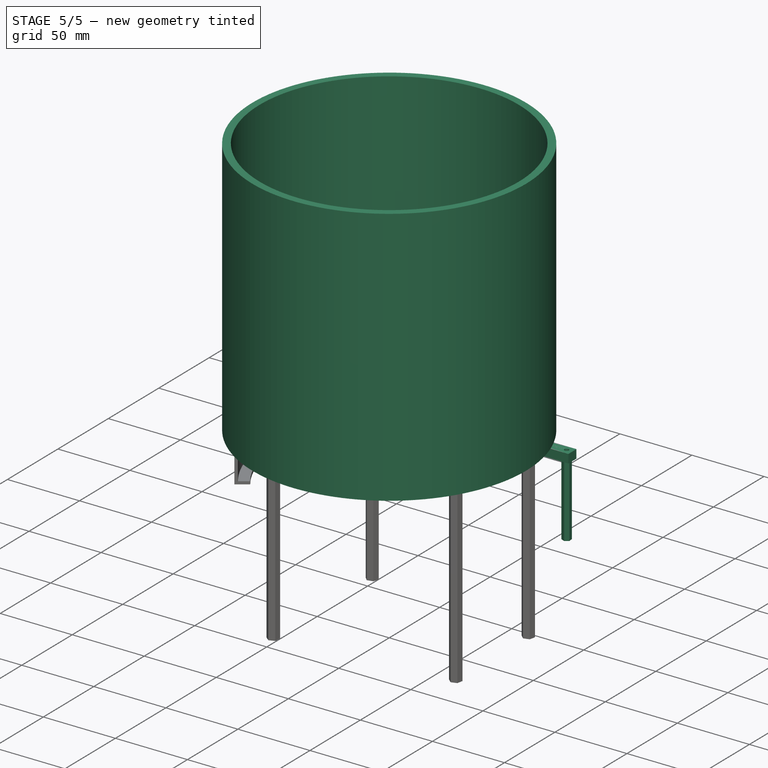
[diagram: stage 5 of 5 — iso view after this stage's code; geometry added in this stage tinted green]
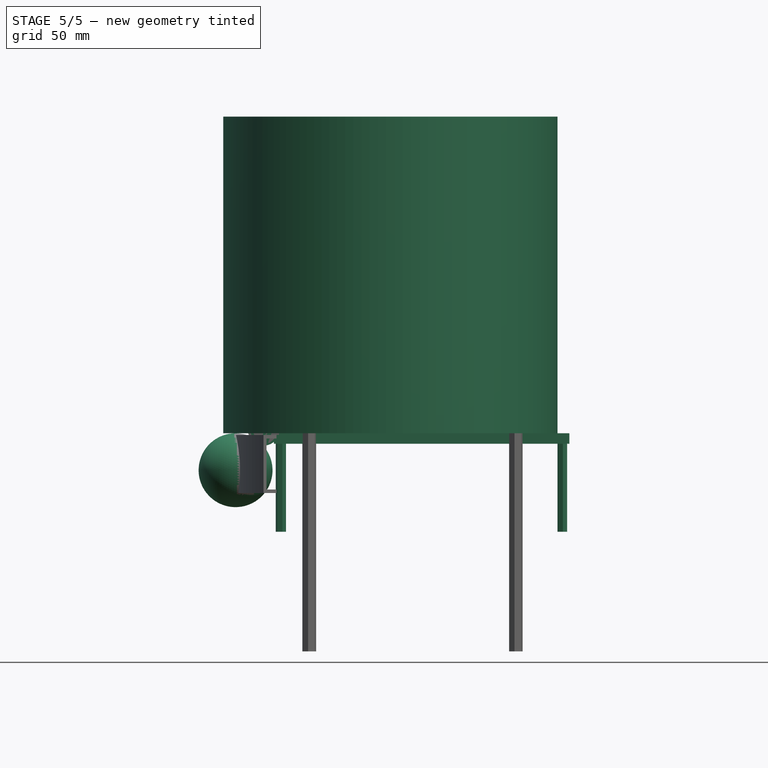
[diagram: stage 5 of 5 — front view after this stage's code; geometry added in this stage tinted green]
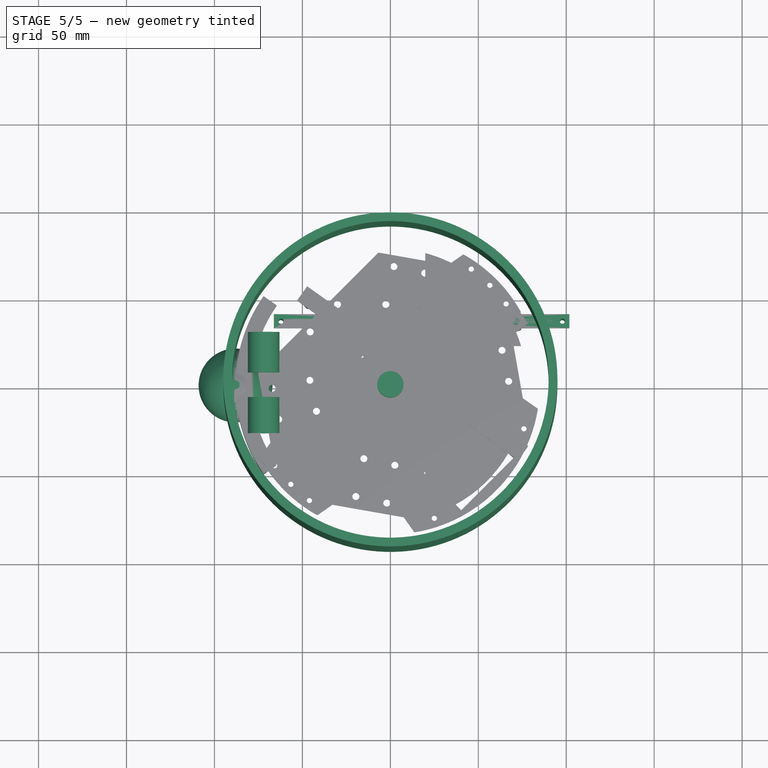
[diagram: stage 5 of 5 — top view after this stage's code; geometry added in this stage tinted green]
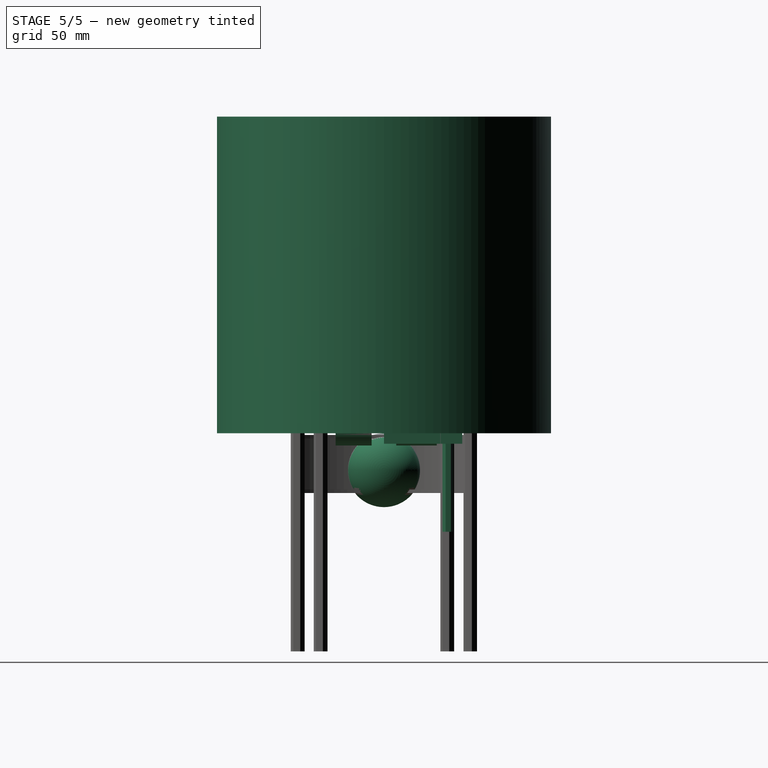
[diagram: stage 5 of 5 — right view after this stage's code; geometry added in this stage tinted green]
FEATURE [Part::FeaturePython] Tube  # WARN: FeaturePython — macro-defined, semantics opaque (R4)
  AttacherType = Attacher::AttachEngine3D
  Height = 20.5
  InnerRadius = 8
  OuterRadius = 9
  Placement = pos=(-72,-7,2) rot=(0,0.707107,-0.707107;3.14159rad)
FEATURE [Part::Cylinder] Cylinder  label="Cylindre"
  Angle = 360
  AttacherType = Attacher::AttachEngine3D
  FirstAngle = 0
  Height = 23
  Placement = pos=(-72,30,2) rot=(1,0,0;1.5708rad)
  Radius = 9
  SecondAngle = 0
FEATURE [Sketcher::SketchObject] Sketch268
  ArcFitTolerance = 0
  AttachmentSupport = -> [XY_Plane361]
  FullyConstrained = true
  MakeInternals = false
  MapMode = 5
  sketch-geometry (3):
    g0: Circle CenterX=0 CenterY=0 CenterZ=0 NormalX=0 NormalY=0 NormalZ=1 AngleXU=0 Radius=4
    g1: LineSegment StartX=-1.24599 StartY=1.5 StartZ=0 EndX=1.24599 EndY=1.5 EndZ=0
    g2: ArcOfCircle CenterX=0 CenterY=0 CenterZ=0 NormalX=0 NormalY=0 NormalZ=1 AngleXU=0 Radius=1.95 StartAngle=2.26396 EndAngle=7.16082
  constraints (8):
    c: Coincident(g0,g-1)
    c: Diameter(g0) = 8
    c: Horizontal(g1)
    c: Coincident(g2,g0)
    c: Coincident(g2,g1)
    c: Coincident(g2,g1)
    c: Diameter(g2) = 3.9
    c: DistanceY(g0,g1) = 1.5
FEATURE [PartDesign::Pad] Pad107
  Direction = (0,0,1)
  Length = 9.5
  Length2 = 10
  Profile = -> Sketch268
  ReferenceAxis = -> Sketch268 [N_Axis]
  Suppressed = false
  Type = 0
FEATURE [Sketcher::SketchObject] Sketch269
  ArcFitTolerance = 0
  AttachmentSupport = -> [Pad107]
  ExternalGeometry = -> [Pad107]
  FullyConstrained = true
  MakeInternals = false
  MapMode = 5
  Placement = pos=(0,0,9.5) rot=(0,0,1;0rad)
  sketch-geometry (1):
    g0: Circle CenterX=0 CenterY=0 CenterZ=0 NormalX=0 NormalY=0 NormalZ=1 AngleXU=0 Radius=7.5
  constraints (2):
    c: Coincident(g0,g-3)
    c: Diameter(g0) = 15
FEATURE [PartDesign::Pad] Pad108
  BaseFeature = -> Pad107
  Direction = (0,0,1)
  Length = 10
  Length2 = 10
  Profile = -> Sketch269
  ReferenceAxis = -> Sketch269 [N_Axis]
  Suppressed = false
  Type = 0
FEATURE [Sketcher::SketchObject] Sketch270
  ArcFitTolerance = 0
  AttachmentSupport = -> [XZ_Plane361]
  FullyConstrained = true
  MakeInternals = false
  MapMode = 5
  Placement = pos=(0,0,0) rot=(1,0,0;1.5708rad)
  sketch-geometry (1):
    g0: Circle CenterX=0 CenterY=2.5 CenterZ=0 NormalX=0 NormalY=0 NormalZ=1 AngleXU=0 Radius=1.5
  constraints (3):
    c: PointOnObject(g0,g-2)
    c: Diameter(g0) = 3
    c: DistanceY(g-1,g0) = 2.5
FEATURE [PartDesign::Pocket] Pocket131
  BaseFeature = -> Pad108
  Direction = (0,1,-2e-16)
  Length = 5
  Length2 = 5
  Profile = -> Sketch270
  ReferenceAxis = -> Sketch270 [N_Axis]
  Suppressed = false
  Type = 1
FEATURE [PartDesign::Body] Body096  label="Adaptateur 1"
  AllowCompound = false
  Group = -> [Sketch268,Pad107,Sketch269,Pad108,Sketch270,Pocket131]
  Origin = -> Origin361
  Placement = pos=(-44.5,20.5,19) rot=(0,0.707107,0.707107;3.14159rad)
  Tip = -> Pocket131
FEATURE [PartDesign::SubShapeBinder] Binder010
  BindCopyOnChange = 0
  BindMode = 0
  ClaimChildren = false
  Context = -> Part015 [Body025.Binder010.]
  Fuse = false
  MakeFace = true
  OffsetFill = false
  OffsetIntersection = false
  OffsetJoinType = 0
  OffsetOpenResult = false
  PartialLoad = false
  Relative = true
  _Version = 2
FEATURE [PartDesign::SubShapeBinder] Binder052
  BindCopyOnChange = 0
  BindMode = 0
  ClaimChildren = false
  Context = -> Part015 [Body025.Binder052.]
  Fuse = false
  MakeFace = true
  OffsetFill = false
  OffsetIntersection = false
  OffsetJoinType = 0
  OffsetOpenResult = false
  PartialLoad = false
  Relative = true
  _Version = 2
FEATURE [Part::Feature] Part__Feature1467  label="rt10"
  shape: bbox 14 x 14 x 16.7 mm, 16 faces (baked)
FEATURE [Part::Feature] Part__Feature1468  label="rt011"
  shape: bbox 5 x 5 x 0.7243 mm, 72 faces (baked)
FEATURE [Part::Feature] Part__Feature1469  label="rt012"
  shape: bbox 12.1 x 4.6 x 2.3 mm, 1904 faces (baked)
FEATURE [Part::Feature] Part__Feature1470  label="rt013"
  shape: bbox 35.56 x 16.51 x 1.6 mm, 134 faces (baked)
FEATURE [Part::Feature] Part__Feature1471  label="rt014"
  shape: bbox 4.35 x 4.35 x 4.4 mm, 6 faces (baked)
FEATURE [Part::Feature] Part__Feature1472  label="rt015"
  shape: bbox 4.35 x 4.35 x 4.4 mm, 6 faces (baked)
FEATURE [Part::Feature] Part__Feature1473  label="rt016"
  shape: bbox 12.11 x 4.605 x 2.705 mm, 1046 faces (baked)
FEATURE [Part::Feature] Part__Feature1474  label="rt017"
  shape: bbox 5 x 7 x 1.1 mm, 7 faces (baked)
FEATURE [Part::Feature] Part__Feature1475  label="rt018"
  shape: bbox 0.4 x 2 x 16.99 mm, 25 faces (baked)
FEATURE [Part::Feature] Part__Feature1476  label="rt019"
  shape: bbox 0.4 x 2 x 16.99 mm, 25 faces (baked)
FEATURE [Part::Feature] Part__Feature1477  label="rt020"
  shape: bbox 0.4 x 2 x 16.99 mm, 25 faces (baked)
FEATURE [Part::Feature] Part__Feature1478  label="rt021"
  shape: bbox 0.4 x 2 x 16.99 mm, 25 faces (baked)
FEATURE [Part::Feature] Part__Feature1479  label="rt022"
  shape: bbox 0.4 x 2 x 16.99 mm, 25 faces (baked)
FEATURE [Part::Feature] Part__Feature1480  label="rt023"
  shape: bbox 0.4 x 2 x 16.99 mm, 25 faces (baked)
FEATURE [Part::Feature] Part__Feature1481  label="rt024"
  shape: bbox 0.4 x 2 x 16.99 mm, 25 faces (baked)
FEATURE [Part::Feature] Part__Feature1482  label="rt025"
  shape: bbox 0.4 x 2 x 16.99 mm, 25 faces (baked)
FEATURE [Part::Feature] Part__Feature1483  label="rt026"
  shape: bbox 2.54 x 20.32 x 8.5 mm, 114 faces (baked)
FEATURE [Part::Feature] Part__Feature1484  label="rt027"
  shape: bbox 0.4 x 2 x 16.99 mm, 25 faces (baked)
FEATURE [Part::Feature] Part__Feature1485  label="rt028"
  shape: bbox 0.4 x 2 x 16.99 mm, 25 faces (baked)
FEATURE [Part::Feature] Part__Feature1486  label="rt029"
  shape: bbox 0.4 x 2 x 16.99 mm, 25 faces (baked)
FEATURE [Part::Feature] Part__Feature1487  label="rt030"
  shape: bbox 0.4 x 2 x 16.99 mm, 25 faces (baked)
FEATURE [Part::Feature] Part__Feature1488  label="rt031"
  shape: bbox 0.4 x 2 x 16.99 mm, 25 faces (baked)
FEATURE [Part::Feature] Part__Feature1489  label="rt032"
  shape: bbox 0.4 x 2 x 16.99 mm, 25 faces (baked)
FEATURE [Part::Feature] Part__Feature1490  label="rt033"
  shape: bbox 0.4 x 2 x 16.99 mm, 25 faces (baked)
FEATURE [Part::Feature] Part__Feature1491  label="rt034"
  shape: bbox 0.4 x 2 x 16.99 mm, 25 faces (baked)
FEATURE [Part::Feature] Part__Feature1492  label="rt035"
  shape: bbox 2.54 x 20.32 x 8.5 mm, 114 faces (baked)
FEATURE [Part::Feature] Part__Feature1495  label="rt038"
  shape: bbox 6 x 7.7 x 8.35 mm, 81 faces (baked)
FEATURE [Part::Feature] Part__Feature1501  label="rt044"
  shape: bbox 8 x 8 x 1.2 mm, 7 faces (baked)
FEATURE [Part::Feature] Part__Feature1503  label="rt046"
  shape: bbox 5 x 6 x 1 mm, 6 faces (baked)
FEATURE [Part::Feature] Part__Feature1507  label="rt050"
  shape: bbox 10 x 10 x 1.5 mm, 6 faces (baked)
FEATURE [Part::Feature] Part__Feature1510  label="rt053"
  shape: bbox 5.08 x 6.35 x 5.715 mm, 90 faces (baked)
FEATURE [Part::Feature] Part__Feature1511  label="rt054"
  shape: bbox 1.676 x 5.486 x 4.293 mm, 91 faces (baked)
FEATURE [Part::Feature] Part__Feature1512  label="rt055"
  shape: bbox 5.842 x 5.486 x 2.017 mm, 71 faces (baked)
FEATURE [Part::Feature] Part__Feature1514  label="rt057"
  shape: bbox 4 x 4 x 1 mm, 7 faces (baked)
FEATURE [Part::Feature] Part__Feature1517  label="rt060"
  shape: bbox 0.4 x 2 x 16.99 mm, 25 faces (baked)
FEATURE [Part::Feature] Part__Feature1518  label="rt061"
  shape: bbox 0.4 x 2 x 16.99 mm, 25 faces (baked)
FEATURE [Part::Feature] Part__Feature1519  label="rt062"
  shape: bbox 0.4 x 2 x 16.99 mm, 25 faces (baked)
FEATURE [Part::Feature] Part__Feature1520  label="rt063"
  shape: bbox 0.4 x 2 x 16.99 mm, 25 faces (baked)
FEATURE [Part::Feature] Part__Feature1521  label="rt064"
  shape: bbox 0.4 x 2 x 16.99 mm, 25 faces (baked)
FEATURE [Part::Feature] Part__Feature1522  label="rt065"
  shape: bbox 0.4 x 2 x 16.99 mm, 25 faces (baked)
FEATURE [Part::Feature] Part__Feature1523  label="rt066"
  shape: bbox 0.4 x 2 x 16.99 mm, 25 faces (baked)
FEATURE [Part::Feature] Part__Feature1524  label="rt067"
  shape: bbox 0.4 x 2 x 16.99 mm, 25 faces (baked)
FEATURE [Part::Feature] Part__Feature1525  label="rt068"
  shape: bbox 2.54 x 20.32 x 8.5 mm, 114 faces (baked)
FEATURE [Part::Feature] Part__Feature1527  label="rt070"
  shape: bbox 3.2 x 1.6 x 1.2 mm, 240 faces (baked)
FEATURE [Part::Feature] Part__Feature1542  label="rt085"
  shape: bbox 1.6 x 2 x 0.65 mm, 6 faces (baked)
FEATURE [Part::Feature] Part__Feature1543  label="rt086"
  shape: bbox 1.4 x 3.2 x 1 mm, 6 faces (baked)
FEATURE [Part::Feature] Part__Feature1544  label="rt087"
  shape: bbox 2.5 x 1.2 x 0.5 mm, 6 faces (baked)
FEATURE [Part::Feature] Part__Feature1547  label="rt090"
  shape: bbox 0.8 x 1.5 x 0.35 mm, 6 faces (baked)
FEATURE [Part::Feature] Part__Feature1548  label="rt091"
  shape: bbox 0.8 x 1.1 x 0.049 mm, 6 faces (baked)
FEATURE [Part::Feature] Part__Feature1549  label="rt092"
  shape: bbox 3 x 3 x 1 mm, 6 faces (baked)
FEATURE [Part::Feature] Part__Feature1576  label="rt119"
  shape: bbox 3 x 3 x 0.3 mm, 6 faces (baked)
FEATURE [Part::Feature] Part__Feature1578  label="rt121"
  shape: bbox 1.2 x 1.6 x 0.62 mm, 6 faces (baked)
FEATURE [Part::Feature] Part__Feature1585  label="rt128"
  shape: bbox 1.5 x 2.5 x 0.6 mm, 7 faces (baked)
FEATURE [Part::Feature] Part__Feature1591  label="rt134"
  shape: bbox 2 x 1.25 x 1.25 mm, 58 faces (baked)
FEATURE [Part::Feature] Part__Feature1603  label="rt146"
  shape: bbox 2 x 1.25 x 1.25 mm, 58 faces (baked)
FEATURE [Part::Feature] Part__Feature1604  label="rt147"
  shape: bbox 2 x 1.25 x 1.25 mm, 58 faces (baked)
FEATURE [Part::Feature] Part__Feature1608  label="rt151"
  shape: bbox 1.5 x 2.5 x 0.6 mm, 7 faces (baked)
FEATURE [Part::Feature] Part__Feature1615  label="rt158"
  shape: bbox 1.351 x 2.201 x 1.05 mm, 34 faces (baked)
FEATURE [Part::Feature] Part__Feature1616  label="rt159"
  shape: bbox 1.6 x 2 x 1 mm, 7 faces (baked)
FEATURE [Part::Feature] Part__Feature1617  label="rt160"
  shape: bbox 0.5 x 1 x 0.5 mm, 58 faces (baked)
FEATURE [Part::Feature] Part__Feature1700  label="rt243"
  shape: bbox 1.25 x 2 x 1.25 mm, 58 faces (baked)
FEATURE [Part::Feature] Part__Feature1702  label="rt245"
  shape: bbox 1.25 x 2 x 1.25 mm, 58 faces (baked)
FEATURE [Part::Feature] Part__Feature1703  label="rt246"
  shape: bbox 1.6 x 2 x 1 mm, 7 faces (baked)
FEATURE [Part::Feature] Part__Feature1722  label="rt265"
  shape: bbox 2 x 1.25 x 1.25 mm, 58 faces (baked)
FEATURE [Part::Feature] Part__Feature1723  label="rt266"
  shape: bbox 1.25 x 2 x 1.25 mm, 58 faces (baked)
FEATURE [Part::Feature] Part__Feature1738  label="rt281"
  shape: bbox 2 x 1.25 x 1.25 mm, 58 faces (baked)
FEATURE [Part::Feature] Part__Feature1739  label="rt282"
  shape: bbox 11.4 x 11.95 x 1.452 mm, 410 faces (baked)
FEATURE [Part::Feature] Part__Feature1740  label="rt283"
  shape: bbox 1.25 x 2 x 1.25 mm, 58 faces (baked)
FEATURE [Part::Feature] Part__Feature1741  label="rt284"
  shape: bbox 2 x 1.25 x 1.25 mm, 58 faces (baked)
FEATURE [Part::Feature] Part__Feature1742  label="rt285"
  shape: bbox 1.25 x 2 x 1.25 mm, 58 faces (baked)
FEATURE [Part::Feature] Part__Feature1750  label="rt293"
  shape: bbox 1.5 x 2.5 x 0.6 mm, 7 faces (baked)
FEATURE [Part::Feature] Part__Feature1754  label="rt297"
  shape: bbox 1.2 x 1.6 x 0.6 mm, 6 faces (baked)
FEATURE [Part::Feature] Part__Feature1757  label="rt300"
  shape: bbox 2 x 1.25 x 1.25 mm, 58 faces (baked)
FEATURE [Part::Feature] Part__Feature1758  label="rt301"
  shape: bbox 1.6 x 2 x 1 mm, 7 faces (baked)
FEATURE [Part::Feature] Part__Feature1768  label="rt311"
  shape: bbox 2.988 x 2.8 x 1.175 mm, 78 faces (baked)
FEATURE [Part::Feature] Part__Feature1772  label="rt315"
  shape: bbox 1.351 x 2.201 x 1.05 mm, 34 faces (baked)
FEATURE [Part::Feature] Part__Feature1776  label="rt319"
  shape: bbox 1.351 x 2.201 x 1.05 mm, 34 faces (baked)
FEATURE [Part::Feature] Part__Feature1777  label="rt320"
  shape: bbox 2.2 x 1.2 x 0.6 mm, 7 faces (baked)
FEATURE [Part::Feature] Part__Feature1778  label="rt321"
  shape: bbox 1.25 x 2 x 1.25 mm, 58 faces (baked)
FEATURE [Part::Feature] Part__Feature1779  label="rt322"
  shape: bbox 1.25 x 2 x 1.25 mm, 58 faces (baked)
FEATURE [Part::Feature] Part__Feature1796  label="rt339"
  shape: bbox 8.34 x 6.62 x 3.56 mm, 238 faces (baked)
FEATURE [Part::Feature] Part__Feature1823  label="rt366"
  shape: bbox 9.58 x 7.53 x 4.16 mm, 463 faces (baked)
FEATURE [Part::Feature] Part__Feature1828  label="rt371"
  shape: bbox 0.4 x 2 x 16.99 mm, 25 faces (baked)
FEATURE [Part::Feature] Part__Feature1829  label="rt372"
  shape: bbox 0.4 x 2 x 16.99 mm, 25 faces (baked)
FEATURE [Part::Feature] Part__Feature1830  label="rt373"
  shape: bbox 0.4 x 2 x 16.99 mm, 25 faces (baked)
FEATURE [Part::Feature] Part__Feature1831  label="rt374"
  shape: bbox 0.4 x 2 x 16.99 mm, 25 faces (baked)
FEATURE [Part::Feature] Part__Feature1832  label="rt375"
  shape: bbox 0.4 x 2 x 16.99 mm, 25 faces (baked)
FEATURE [Part::Feature] Part__Feature1833  label="rt376"
  shape: bbox 0.4 x 2 x 16.99 mm, 25 faces (baked)
FEATURE [Part::Feature] Part__Feature1834  label="rt377"
  shape: bbox 0.4 x 2 x 16.99 mm, 25 faces (baked)
FEATURE [Part::Feature] Part__Feature1835  label="rt378"
  shape: bbox 0.4 x 2 x 16.99 mm, 25 faces (baked)
FEATURE [Part::Feature] Part__Feature1836  label="rt379"
  shape: bbox 2.54 x 20.32 x 8.5 mm, 114 faces (baked)
FEATURE [Part::Feature] Part__Feature1837  label="rt380"
  shape: bbox 0.5 x 1 x 0.3375 mm, 36 faces (baked)
FEATURE [Part::Feature] Part__Feature1857  label="rt400"
  shape: bbox 4.718 x 3.55 x 1.549 mm, 350 faces (baked)
FEATURE [Part::Feature] Part__Feature1862  label="rt405"
  shape: bbox 2.5 x 3.2 x 0.8 mm, 47 faces (baked)
FEATURE [Part::Feature] Part__Feature1863  label="rt406"
  shape: bbox 3.21 x 1.803 x 2.385 mm, 34 faces (baked)
FEATURE [Part::Feature] Part__Feature1874  label="rt417"
  shape: bbox 4.718 x 3.55 x 1.549 mm, 350 faces (baked)
FEATURE [Part::Feature] Part__Feature1878  label="rt421"
  shape: bbox 1.803 x 3.21 x 2.385 mm, 34 faces (baked)
FEATURE [Part::Feature] Part__Feature1886  label="rt429"
  shape: bbox 0.991 x 2.312 x 1.054 mm, 10 faces (baked)
FEATURE [Part::Feature] Part__Feature1887  label="rt430"
  shape: bbox 0.991 x 2.312 x 1.054 mm, 10 faces (baked)
FEATURE [Part::Feature] Part__Feature1888  label="rt431"
  shape: bbox 3.088 x 2.999 x 2.109 mm, 16 faces (baked)
FEATURE [Part::Feature] Part__Feature1889  label="rt432"
  shape: bbox 0.617 x 2.874 x 0.051 mm, 6 faces (baked)
FEATURE [Part::Feature] Part__Feature1890  label="rt433"
  shape: bbox 0.991 x 2.312 x 1.054 mm, 10 faces (baked)
FEATURE [Part::Feature] Part__Feature1891  label="rt434"
  shape: bbox 0.991 x 2.312 x 1.054 mm, 10 faces (baked)
FEATURE [Part::Feature] Part__Feature1892  label="rt435"
  shape: bbox 3.088 x 2.999 x 2.109 mm, 16 faces (baked)
FEATURE [Part::Feature] Part__Feature1893  label="rt436"
  shape: bbox 0.617 x 2.874 x 0.051 mm, 6 faces (baked)
FEATURE [Part::Feature] Part__Feature1905  label="rt448"
  shape: bbox 35.56 x 44.45 x 1.2 mm, 64 faces (baked)
FEATURE [Part::Feature] Part__Feature1906  label="rt449"
  shape: bbox 15.5 x 16.25 x 6.3 mm, 24 faces (baked)
FEATURE [Part::Feature] Part__Feature1907  label="rt450"
  shape: bbox 23.8 x 17 x 8 mm, 20 faces (baked)
FEATURE [Sketcher::SketchObject] Sketch065
  ArcFitTolerance = 0
  AttachmentSupport = -> [XY_Plane226]
  FullyConstrained = true
  MakeInternals = false
  MapMode = 5
  sketch-geometry (12):
    g0: LineSegment StartX=101.78 StartY=40.22 StartZ=0 EndX=101.78 EndY=32.22 EndZ=0
    g1: LineSegment StartX=-66.22 StartY=32.22 StartZ=0 EndX=-66.22 EndY=40.22 EndZ=0
    g2: LineSegment StartX=-66.22 StartY=32.22 StartZ=0 EndX=7.78 EndY=32.22 EndZ=0
    g3: LineSegment StartX=7.78 StartY=32.22 StartZ=0 EndX=7.78 EndY=0 EndZ=0
    g4: LineSegment StartX=7.78 StartY=0 StartZ=0 EndX=27.78 EndY=0 EndZ=0
    g5: LineSegment StartX=27.78 StartY=0 StartZ=0 EndX=27.78 EndY=32.22 EndZ=0
    g6: LineSegment StartX=27.78 StartY=32.22 StartZ=0 EndX=101.78 EndY=32.22 EndZ=0
    g7: LineSegment StartX=-66.22 StartY=40.22 StartZ=0 EndX=0 EndY=40.22 EndZ=0
    g8: LineSegment StartX=101.78 StartY=40.22 StartZ=0 EndX=35.56 EndY=40.22 EndZ=0
    g9: LineSegment StartX=0 StartY=40.22 StartZ=0 EndX=0 EndY=44.52 EndZ=0
    g10: LineSegment StartX=0 StartY=44.52 StartZ=0 EndX=35.56 EndY=44.52 EndZ=0
    g11: LineSegment StartX=35.56 StartY=44.52 StartZ=0 EndX=35.56 EndY=40.22 EndZ=0
  constraints (36):
    c: Vertical(g0)
    c: Vertical(g1)
    c: DistanceY(g0,g0) = 8
    c: Coincident(g2,g1)
    c: Horizontal(g2)
    c: Vertical(g3)
    c: Coincident(g4,g3)
    c: Horizontal(g4)
    c: Coincident(g5,g4)
    c: Vertical(g5)
    c: Coincident(g6,g5)
    c: Coincident(g6,g0)
    c: Horizontal(g6)
    c: Equal(g2,g6)
    c: Horizontal(g2,g5)
    c: DistanceX(g1,g0) = 168
    c: Coincident(g7,g1)
    c: PointOnObject(g7,g-2)
    c: Horizontal(g7)
    c: Coincident(g8,g0)
    c: Horizontal(g8)
    c: DistanceX(g7,g8) = 35.56
    c: Equal(g1,g0)
    c: Coincident(g9,g7)
    c: Vertical(g9)
    c: Coincident(g10,g9)
    c: Horizontal(g10)
    c: Coincident(g11,g10)
    c: Coincident(g11,g8)
    c: Vertical(g11)
    c: DistanceY(g11,g11) = 4.3
    c: PointOnObject(g4,g-1)
    c: Coincident(g2,g3)
    c: DistanceX(g6,g6) = 74
    c: DistanceX(g1,g-1) = 66.22
    c: DistanceY(g-1,g1) = 32.22
FEATURE [PartDesign::Pad] Pad044
  Direction = (0,0,1)
  Length = 6
  Length2 = 10
  Profile = -> Sketch065
  ReferenceAxis = -> Sketch065 [N_Axis]
  Reversed = true
  Suppressed = false
  Type = 0
FEATURE [PartDesign::Pocket] Pocket052
  BaseFeature = -> Pad044
  Direction = (0,0,-1)
  Length = 5
  Length2 = 5
  Profile = -> Binder010
  Suppressed = false
  Type = 1
FEATURE [Sketcher::SketchObject] Sketch249
  ArcFitTolerance = 0
  AttachmentSupport = -> [Pocket052]
  ExternalGeometry = -> [Pocket052]
  FullyConstrained = false
  MakeInternals = false
  MapMode = 5
  Placement = pos=(0,0,-6) rot=(1,0,0;3.14159rad)
  sketch-geometry (18):
    g0: LineSegment StartX=-61.4103 StartY=-33.3313 StartZ=0 EndX=-64.3168 EndY=-34.0745 EndZ=0
    g1: LineSegment StartX=-64.3168 StartY=-34.0745 StartZ=0 EndX=-65.1265 EndY=-36.9631 EndZ=0
    g2: LineSegment StartX=-65.1265 StartY=-36.9631 StartZ=0 EndX=-63.0297 EndY=-39.1087 EndZ=0
    g3: LineSegment StartX=-63.0297 StartY=-39.1087 StartZ=0 EndX=-60.1232 EndY=-38.3655 EndZ=0
    g4: LineSegment StartX=-60.1232 StartY=-38.3655 StartZ=0 EndX=-59.3135 EndY=-35.4769 EndZ=0
    g5: LineSegment StartX=-59.3135 StartY=-35.4769 StartZ=0 EndX=-61.4103 EndY=-33.3313 EndZ=0
    g6: Circle [constr] CenterX=-62.22 CenterY=-36.22 CenterZ=0 NormalX=0 NormalY=0 NormalZ=1 AngleXU=0 Radius=3
    g7: LineSegment [constr] StartX=-62.22 StartY=-36.22 StartZ=0 EndX=-66.22 EndY=-40.22 EndZ=0
    g8: LineSegment [constr] StartX=-62.22 StartY=-36.22 StartZ=0 EndX=-66.22 EndY=-32.22 EndZ=0
    g9: LineSegment StartX=95.3648 StartY=-34.4404 StartZ=0 EndX=95.0313 EndY=-37.4218 EndZ=0
    g10: LineSegment StartX=95.0313 StartY=-37.4218 StartZ=0 EndX=97.4464 EndY=-39.2014 EndZ=0
    g11: LineSegment StartX=97.4464 StartY=-39.2014 StartZ=0 EndX=100.195 EndY=-37.9996 EndZ=0
    g12: LineSegment StartX=100.195 StartY=-37.9996 StartZ=0 EndX=100.529 EndY=-35.0182 EndZ=0
    g13: LineSegment StartX=100.529 StartY=-35.0182 StartZ=0 EndX=98.1136 EndY=-33.2386 EndZ=0
    g14: LineSegment StartX=98.1136 StartY=-33.2386 StartZ=0 EndX=95.3648 EndY=-34.4404 EndZ=0
    g15: Circle [constr] CenterX=97.78 CenterY=-36.22 CenterZ=0 NormalX=0 NormalY=0 NormalZ=1 AngleXU=0 Radius=3
    g16: LineSegment [constr] StartX=101.78 StartY=-32.22 StartZ=0 EndX=97.78 EndY=-36.22 EndZ=0
    g17: LineSegment [constr] StartX=97.78 StartY=-36.22 StartZ=0 EndX=101.78 EndY=-40.22 EndZ=0
  constraints (40):
    c: Coincident(g0,g1)
    c: Coincident(g1,g2)
    c: Coincident(g2,g3)
    c: Coincident(g3,g4)
    c: Coincident(g4,g5)
    c: Coincident(g5,g0)
    c: Equal(g0, g1-g5) x5
    c: PointOnObject(g0,g6)
    c: PointOnObject(g1,g6)
    c: PointOnObject(g2,g6)
    c: PointOnObject(g3,g6)
    c: PointOnObject(g4,g6)
    c: PointOnObject(g5,g6)
    c: Diameter(g6) = 6
    c: Coincident(g7,g6)
    c: Coincident(g7,g-3)
    c: Coincident(g8,g6)
    c: Coincident(g8,g-3)
    c: Equal(g8,g7)
    c: Coincident(g9,g10)
    c: Coincident(g10,g11)
    c: Coincident(g11,g12)
    c: Coincident(g12,g13)
    c: Coincident(g13,g14)
    c: Coincident(g14,g9)
    c: Equal(g9, g10-g14) x5
    c: PointOnObject(g9,g15)
    c: PointOnObject(g10,g15)
    c: PointOnObject(g11,g15)
    c: PointOnObject(g12,g15)
    c: PointOnObject(g13,g15)
    c: PointOnObject(g14,g15)
    c: Diameter(g15) = 6
    c: Coincident(g16,g-4)
    c: Coincident(g16,g15)
    c: Coincident(g17,g15)
    c: Coincident(g17,g-4)
    c: Equal(g16,g17)
    c: Perpendicular(g8,g7)
    c: Perpendicular(g16,g17)
FEATURE [PartDesign::Pad] Pad093
  BaseFeature = -> Pocket052
  Direction = (0,0,-1)
  Length = 50
  Length2 = 10
  Profile = -> Sketch249
  ReferenceAxis = -> Sketch249 [N_Axis]
  Suppressed = false
  Type = 0
FEATURE [Sketcher::SketchObject] Sketch250
  ArcFitTolerance = 0
  AttachmentSupport = -> [Pad093]
  ExternalGeometry = -> [Pad093]
  FullyConstrained = true
  MakeInternals = false
  MapMode = 5
  sketch-geometry (6):
    g0: Circle CenterX=-62.22 CenterY=36.22 CenterZ=0 NormalX=0 NormalY=0 NormalZ=1 AngleXU=0 Radius=1.5
    g1: LineSegment [constr] StartX=-66.22 StartY=32.22 StartZ=0 EndX=-62.22 EndY=36.22 EndZ=0
    g2: LineSegment [constr] StartX=-62.22 StartY=36.22 StartZ=0 EndX=-66.22 EndY=40.22 EndZ=0
    g3: Circle CenterX=97.78 CenterY=36.22 CenterZ=0 NormalX=0 NormalY=0 NormalZ=1 AngleXU=0 Radius=1.5
    g4: LineSegment [constr] StartX=101.78 StartY=32.22 StartZ=0 EndX=97.78 EndY=36.22 EndZ=0
    g5: LineSegment [constr] StartX=97.78 StartY=36.22 StartZ=0 EndX=101.78 EndY=40.22 EndZ=0
  constraints (14):
    c: Diameter(g0) = 3
    c: Coincident(g1,g-3)
    c: Coincident(g1,g0)
    c: Coincident(g2,g-3)
    c: Coincident(g2,g0)
    c: Equal(g1,g2)
    c: Diameter(g3) = 3
    c: Coincident(g4,g-4)
    c: Coincident(g4,g3)
    c: Coincident(g5,g3)
    c: Coincident(g5,g-4)
    c: Equal(g4,g5)
    c: Perpendicular(g2,g1)
    c: Perpendicular(g5,g4)
FEATURE [PartDesign::Pocket] Pocket112
  BaseFeature = -> Pad093
  Direction = (0,0,-1)
  Length = 5
  Length2 = 5
  Profile = -> Sketch250
  ReferenceAxis = -> Sketch250 [N_Axis]
  Suppressed = false
  Type = 1
FEATURE [PartDesign::Pocket] Pocket126
  BaseFeature = -> Pocket112
  Direction = (2e-16,0,-1)
  Length = 5
  Length2 = 5
  Profile = -> Binder052
  Suppressed = false
  Type = 1
FEATURE [PartDesign::Body] Body025  label="Support camera "
  AllowCompound = false
  Group = -> [Sketch065,Pad044,Binder010,Pocket052,Sketch249,Pad093,Sketch250,Pocket112,Binder052,Pocket126]
  Origin = -> Origin226
  Placement = pos=(0,0,1) rot=(0,0,1;0rad)
  Tip = -> Pocket126
FEATURE [App::Part] rt10  label="OpenMV RT1062"
  Group = -> [Part__Feature1467,Part__Feature1468,Part__Feature1469,Part__Feature1470,Part__Feature1471,Part__Feature1472,Part__Feature1473,Part__Feature1474,Part__Feature1475,Part__Feature1476,Part__Feature1477,Part__Feature1478,Part__Feature1479,Part__Feature1480,Part__Feature1481,Part__Feature1482,Part__Feature1483,Part__Feature1484,Part__Feature1485,Part__Feature1486,Part__Feature1487,Part__Feature1488,+86 more]
  Origin = -> Origin341
  Placement = pos=(0,72.5,32.2) rot=(1,0,0;3.14159rad)
FEATURE [App::Part] Part015  label="Camera"
  Group = -> [rt10,Body025]
  Origin = -> Origin342
  Placement = pos=(36.22,-17.79,57) rot=(0,0,-1;4.71239rad)
FEATURE [Sketcher::SketchObject] Sketch025
  ArcFitTolerance = 0
  AttachmentSupport = -> [XY_Plane026]
  FullyConstrained = true
  MakeInternals = false
  MapMode = 5
  sketch-geometry (2):
    g0: Circle CenterX=0 CenterY=0 CenterZ=0 NormalX=0 NormalY=0 NormalZ=1 AngleXU=0 Radius=90
    g1: Circle CenterX=0 CenterY=0 CenterZ=0 NormalX=0 NormalY=0 NormalZ=1 AngleXU=0 Radius=95
  constraints (4):
    c: Diameter(g0) = 180
    c: Coincident(g1,g-1)
    c: Diameter(g1) = 190
    c: Coincident(g0,g-1)
FEATURE [PartDesign::Pad] Pad008
  Direction = (0,0,1)
  Length = 180
  Length2 = 10
  Profile = -> Sketch025
  ReferenceAxis = -> Sketch025 [N_Axis]
  Suppressed = false
  Type = 0
FEATURE [PartDesign::Body] Body008  label="Cylinder"
  AllowCompound = false
  Group = -> [Sketch025,Pad008]
  Origin = -> Origin026
  Placement = pos=(0,0,-44) rot=(0,0,1;0rad)
  Tip = -> Pad008
FEATURE [Part::Sphere] Sphere  label="Ball"
  Angle1 = -90
  Angle2 = 90
  Angle3 = 360
  AttacherType = Attacher::AttachEngine3D
  Placement = pos=(-88,0,-21) rot=(0,1,0;1.5708rad)
  Radius = 21
FEATURE [PartDesign::Pocket] Pocket101
  BaseFeature = -> PolarPattern022
  Direction = (0,0,-1)
  Length = 5
  Length2 = 5
  Profile = -> Binder032
  Suppressed = false
  Type = 1
FEATURE [PartDesign::Pocket] Pocket103
  BaseFeature = -> Pocket101
  Direction = (-7e-16,-4e-16,-1)
  Length = 5
  Length2 = 5
  Profile = -> Binder034
  Reversed = true
  Suppressed = false
  Type = 1
FEATURE [PartDesign::Pocket] Pocket109
  BaseFeature = -> Pocket103
  Direction = (0,0,-1)
  Length = 5
  Length2 = 5
  Profile = -> Binder038
  Reversed = true
  Suppressed = false
  Type = 1
FEATURE [PartDesign::Pocket] Pocket122
  BaseFeature = -> Pocket109
  Direction = (-2e-16,-2e-16,-1)
  Length = 5
  Length2 = 5
  Profile = -> Binder050
  Suppressed = false
  Type = 1
FEATURE [PartDesign::Pocket] Pocket128
  BaseFeature = -> Pocket122
  Direction = (-2e-16,-2e-16,-1)
  Length = 5
  Length2 = 5
  Profile = -> Binder055
  Suppressed = false
  Type = 1
FEATURE [PartDesign::Body] Body  label="Main plate"
  AllowCompound = false
  Group = -> [Sketch,Pad,Sketch001,Pocket,PolarPattern,Sketch015,Pocket004,Sketch061,Pocket019,Binder,Pocket031,Binder005,Pocket038,Binder006,Pocket039,Binder007,Pocket040,Binder008,Pocket050,Sketch126,Pocket055,PolarPattern021,PolarPattern022,Binder032,Pocket101,Binder034,Pocket103,Binder038,Pocket109,Binder050,Pocket122,Binder055,Pocket128]
  Origin = -> Origin008
  Placement = pos=(0,0,-1) rot=(0,0,1;0.785398rad)
  Tip = -> Pocket128
FEATURE [Sketcher::SketchObject] Sketch131
  ArcFitTolerance = 0
  AttachmentSupport = -> [XZ_Plane259]
  FullyConstrained = true
  MakeInternals = false
  MapMode = 5
  Placement = pos=(0,0,0) rot=(1,0,0;1.5708rad)
  sketch-geometry (4):
    g0: LineSegment StartX=-22 StartY=15 StartZ=0 EndX=22 EndY=15 EndZ=0
    g1: LineSegment StartX=22 StartY=15 StartZ=0 EndX=22 EndY=-15 EndZ=0
    g2: LineSegment StartX=22 StartY=-15 StartZ=0 EndX=-22 EndY=-15 EndZ=0
    g3: LineSegment StartX=-22 StartY=-15 StartZ=0 EndX=-22 EndY=15 EndZ=0
  constraints (10):
    c: Coincident(g0,g1)
    c: Coincident(g1,g2)
    c: Coincident(g2,g3)
    c: Coincident(g3,g0)
    c: Horizontal(g2)
    c: Vertical(g3)
    c: DistanceY(g1,g1) = 30
    c: Symmetric(g1,g0,g-1)
    c: Symmetric(g0,g0,g-2)
    c: DistanceX(g0,g0) = 44
FEATURE [Sketcher::SketchObject] Sketch133
  ArcFitTolerance = 0
  AttachmentSupport = -> [XZ_Plane259]
  FullyConstrained = true
  MakeInternals = false
  MapMode = 5
  Placement = pos=(0,0,0) rot=(1,0,0;1.5708rad)
  sketch-geometry (4):
    g0: LineSegment StartX=-21.5 StartY=14.5 StartZ=0 EndX=21.5 EndY=14.5 EndZ=0
    g1: LineSegment StartX=21.5 StartY=14.5 StartZ=0 EndX=21.5 EndY=-14.5 EndZ=0
    g2: LineSegment StartX=21.5 StartY=-14.5 StartZ=0 EndX=-21.5 EndY=-14.5 EndZ=0
    g3: LineSegment StartX=-21.5 StartY=-14.5 StartZ=0 EndX=-21.5 EndY=14.5 EndZ=0
  constraints (10):
    c: Coincident(g0,g1)
    c: Coincident(g1,g2)
    c: Coincident(g2,g3)
    c: Coincident(g3,g0)
    c: Horizontal(g2)
    c: Vertical(g1)
    c: Symmetric(g0,g0,g-2)
    c: Symmetric(g2,g0,g-1)
    c: DistanceX(g0,g0) = 43
    c: DistanceY(g1,g1) = 29
FEATURE [PartDesign::Pad] Pad089
  Direction = (0,-1,2e-16)
  Length = 60
  Length2 = 10
  Placement = pos=(0,0,0) rot=(1,0,0;1.5708rad)
  Profile = -> Sketch133
  ReferenceAxis = -> Sketch133 [N_Axis]
  Suppressed = false
  Type = 0
FEATURE [PartDesign::Fillet] Fillet
  Base = -> Pad089 [Edge7,Edge4,Edge10,Edge12,Edge2,Edge5,Edge1,Edge8,Edge3,Edge11,Edge9,Edge6]
  BaseFeature = -> Pad089
  Placement = pos=(0,0,0) rot=(1,0,0;1.5708rad)
  Radius = 2
  SupportTransform = false
  Suppressed = false
  UseAllEdges = false
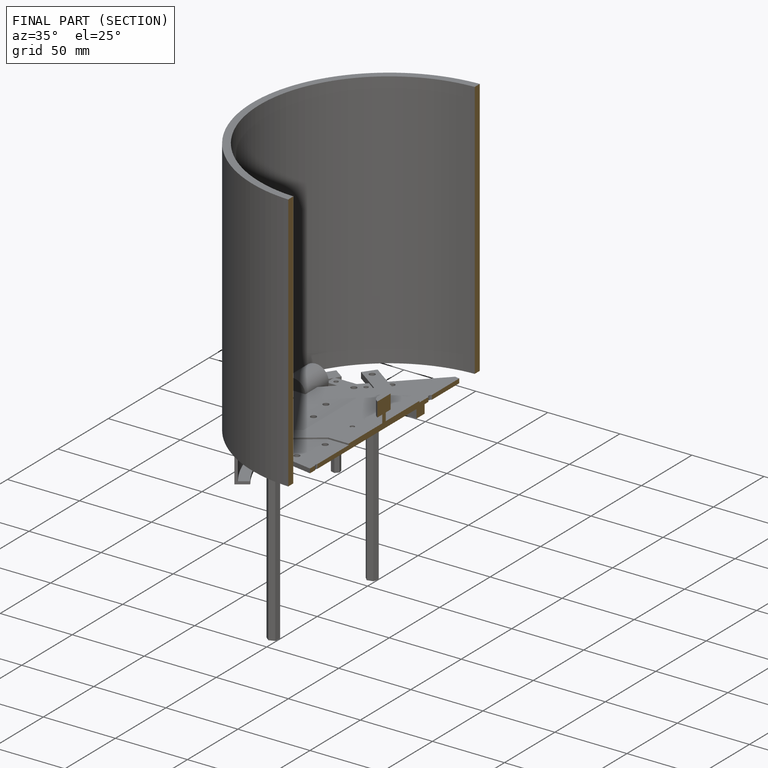
[diagram: finished part — half-section view (interior)]
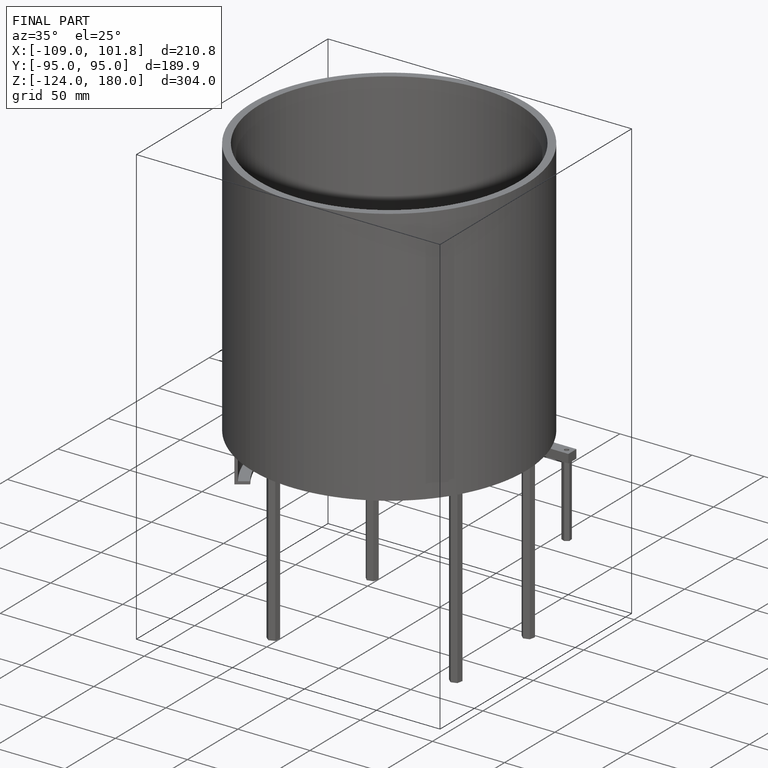
[diagram: finished part — iso view with bounding-box wireframe]
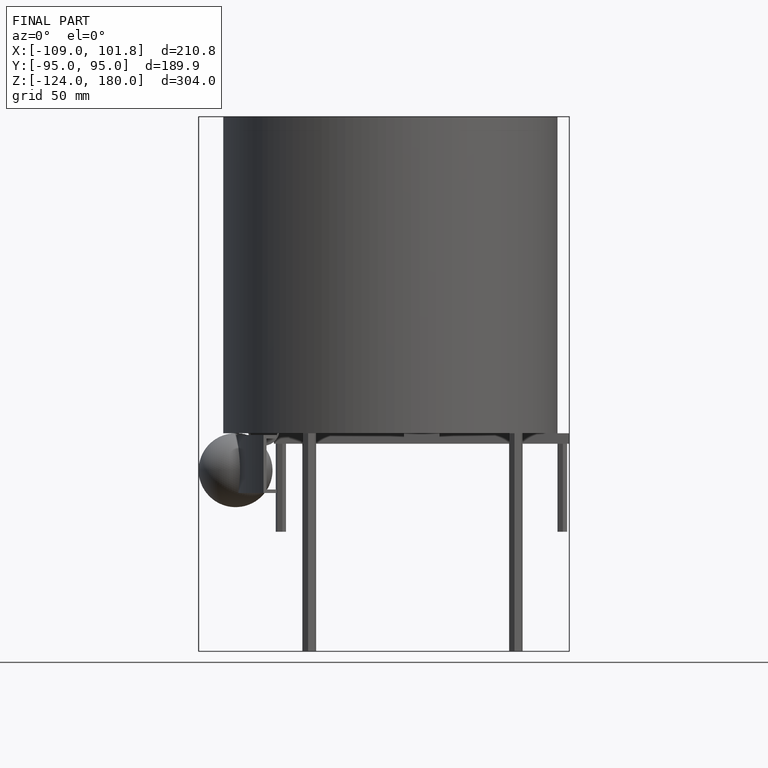
[diagram: finished part — front view with bounding-box wireframe]
